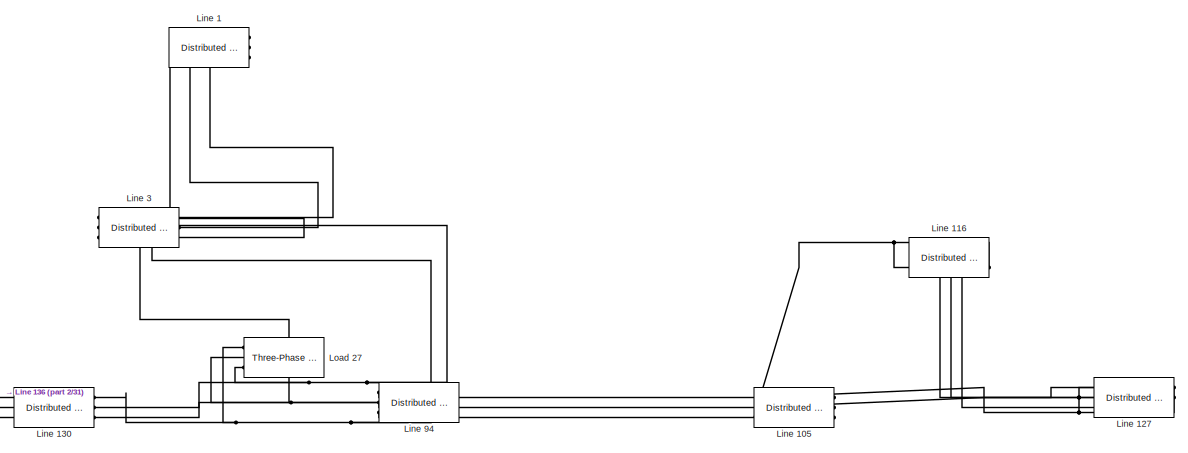
[diagram: root canvas - part 1/31, top right region]
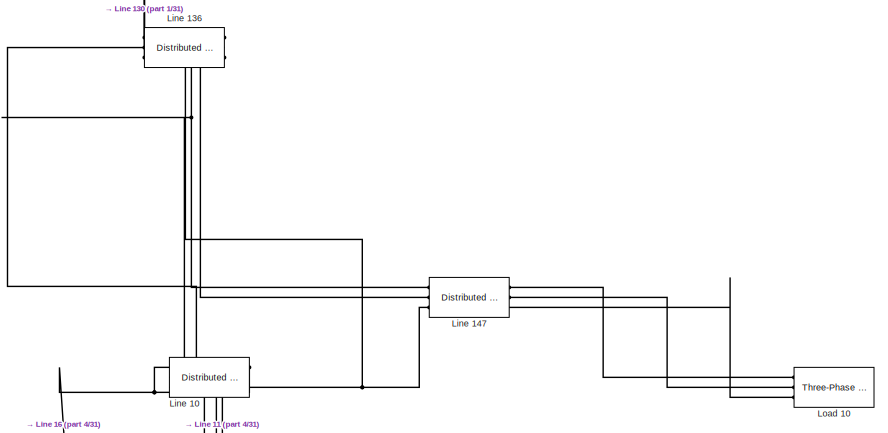
[diagram: root canvas - part 2/31, top right region]
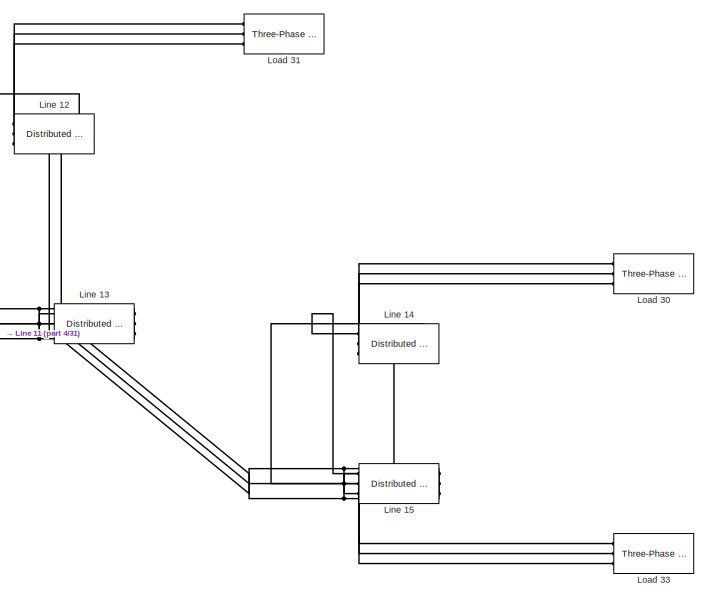
[diagram: root canvas - part 3/31, top right region]
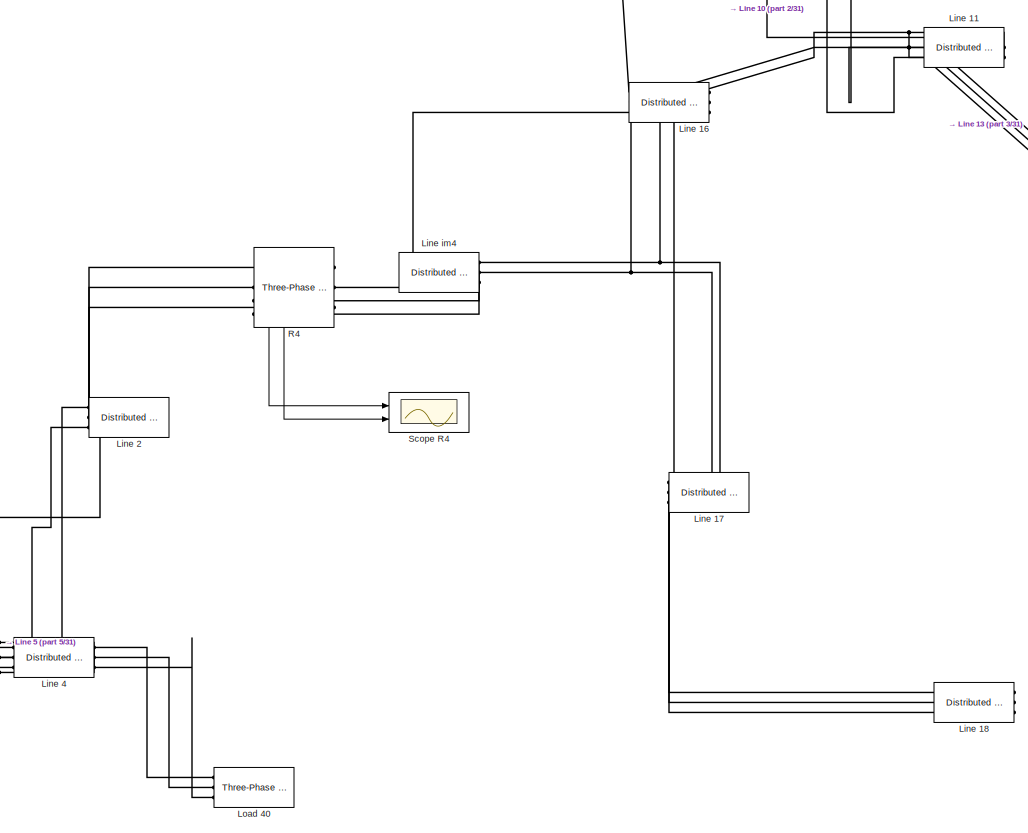
[diagram: root canvas - part 4/31, top right region]
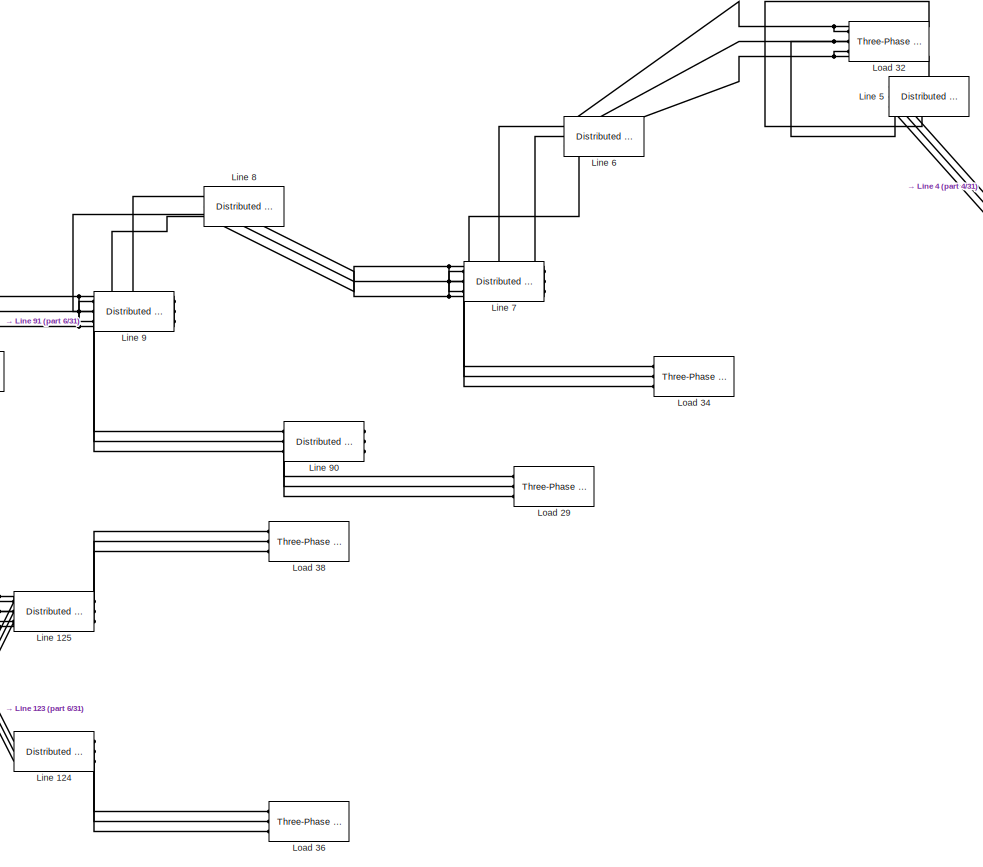
[diagram: root canvas - part 5/31, top center region]
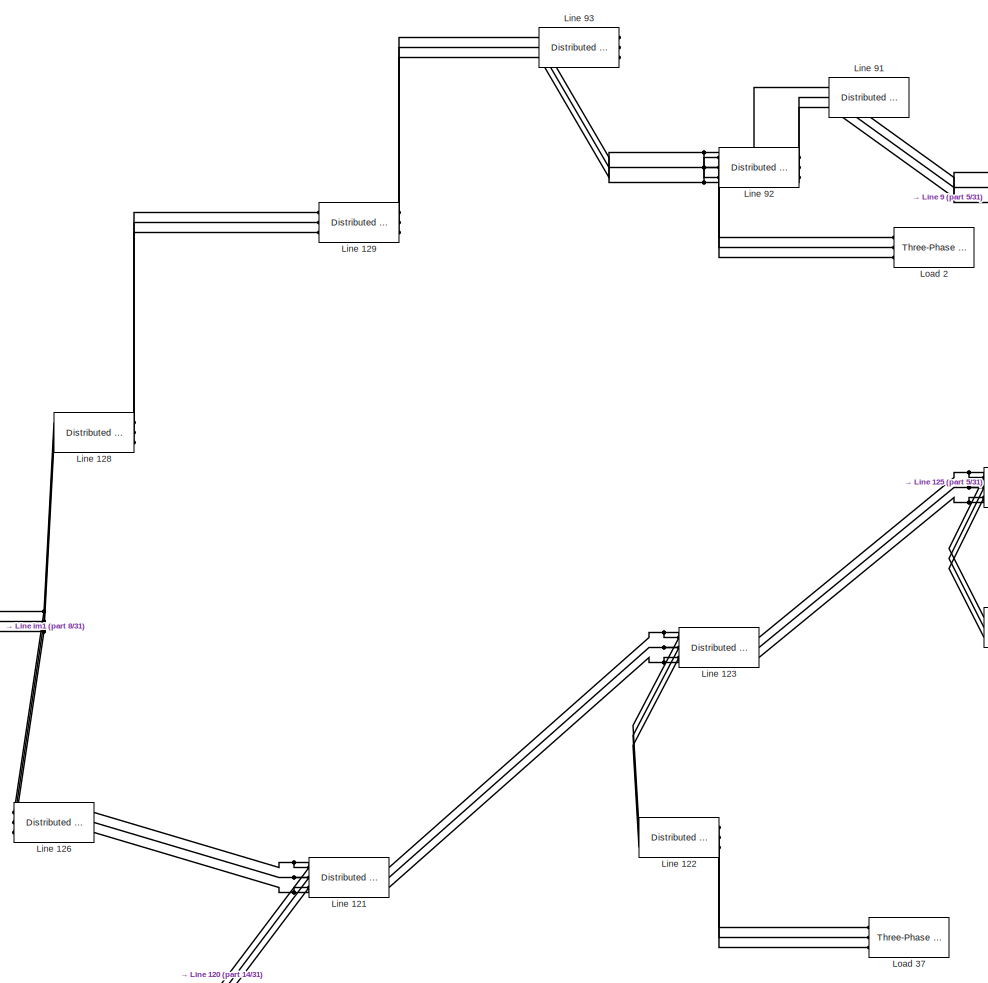
[diagram: root canvas - part 6/31, top center region]
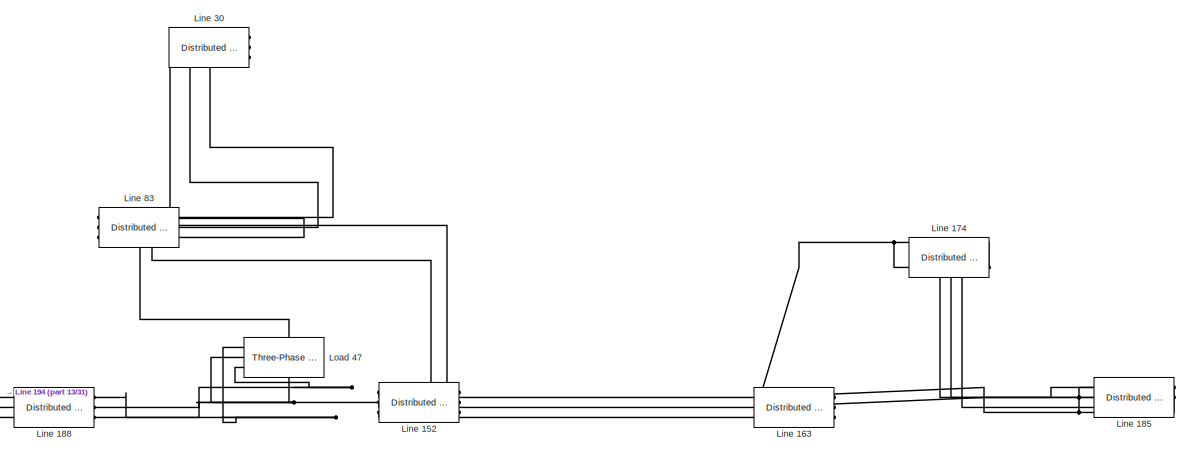
[diagram: root canvas - part 7/31, middle right region]
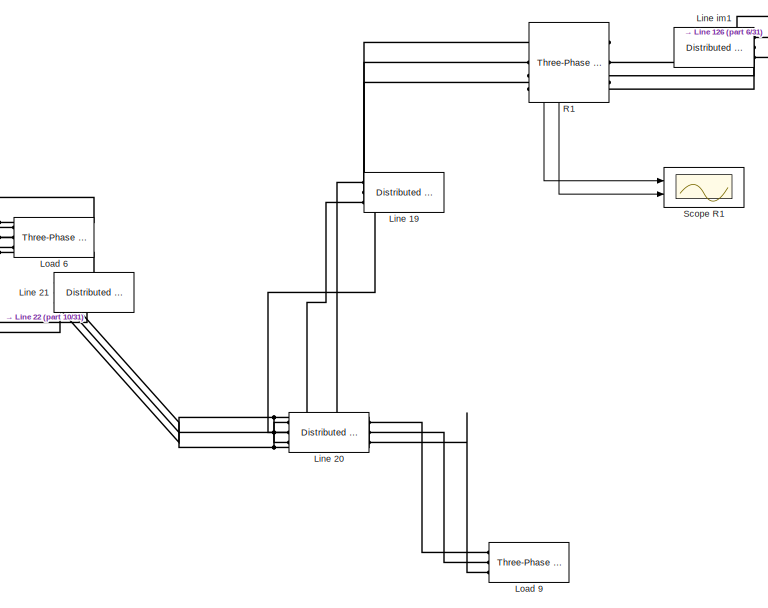
[diagram: root canvas - part 8/31, central region]
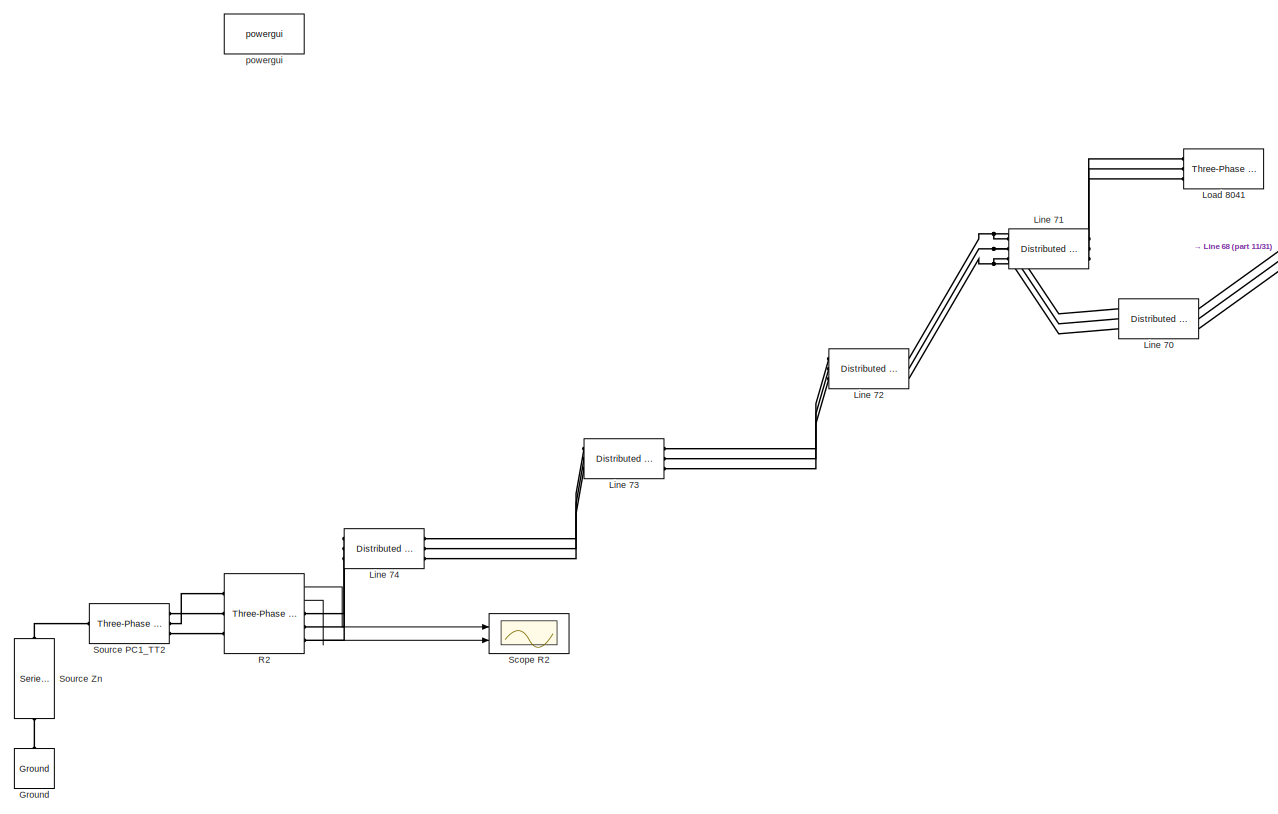
[diagram: root canvas - part 9/31, middle left region]
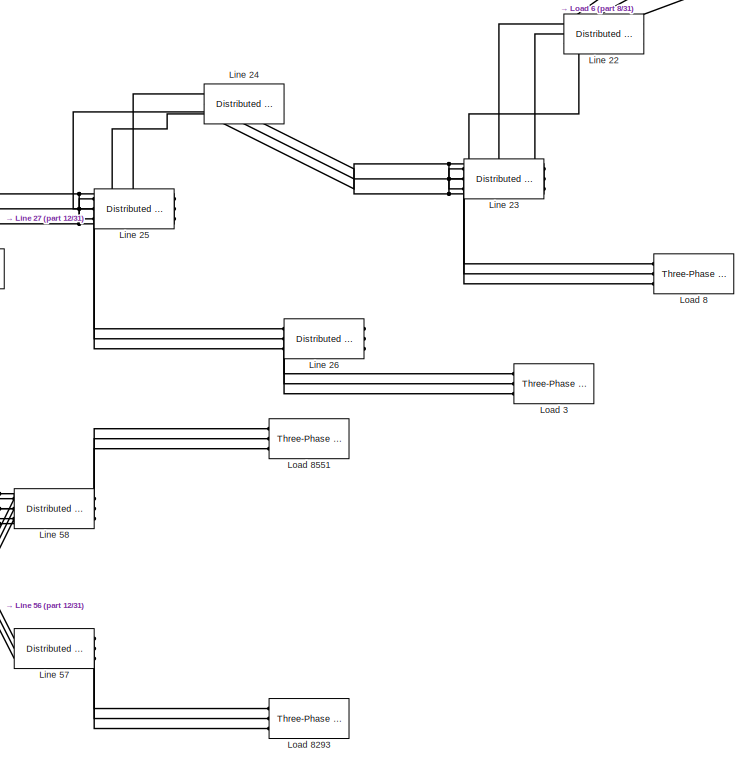
[diagram: root canvas - part 10/31, central region]
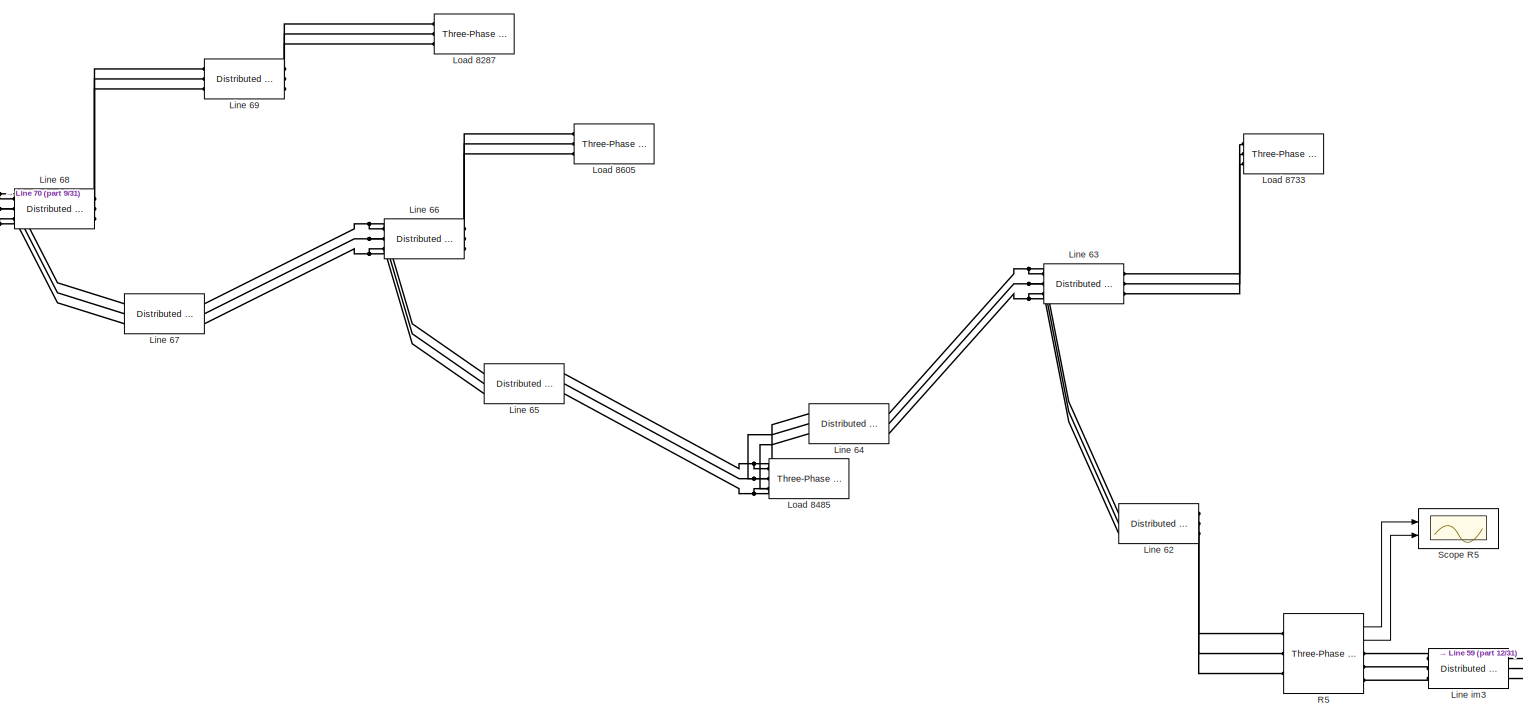
[diagram: root canvas - part 11/31, middle left region]
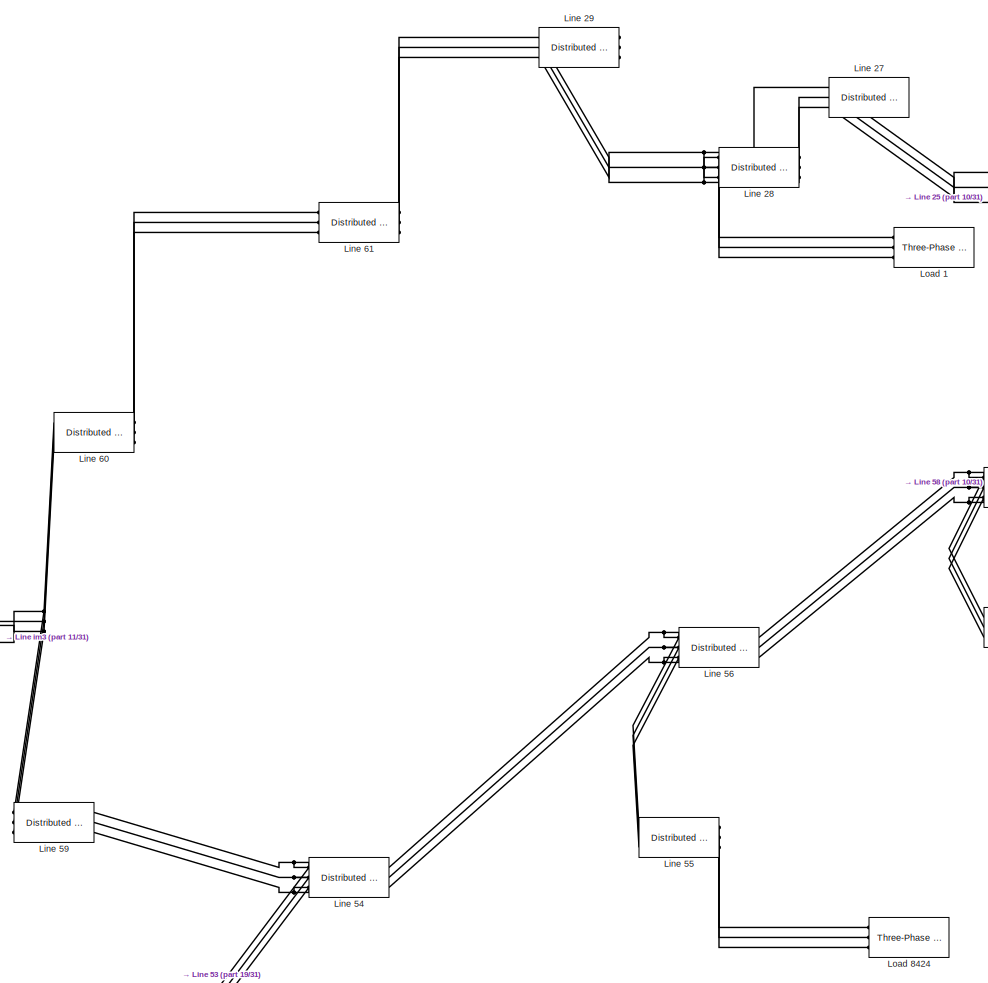
[diagram: root canvas - part 12/31, middle left region]
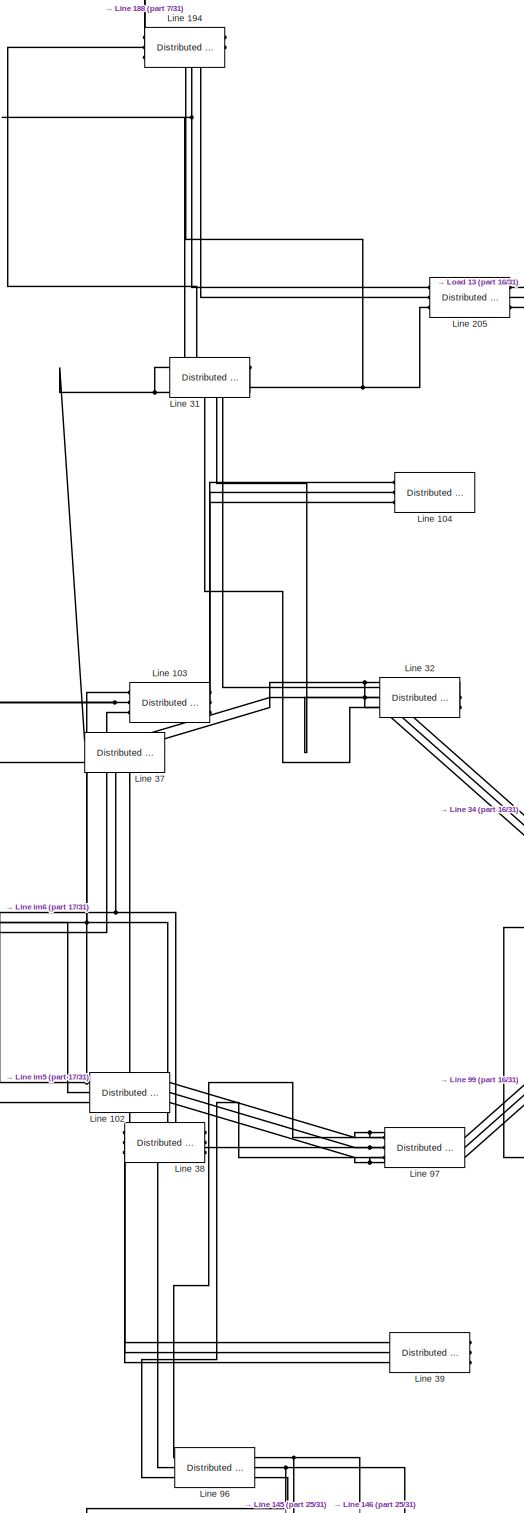
[diagram: root canvas - part 13/31, middle right region]
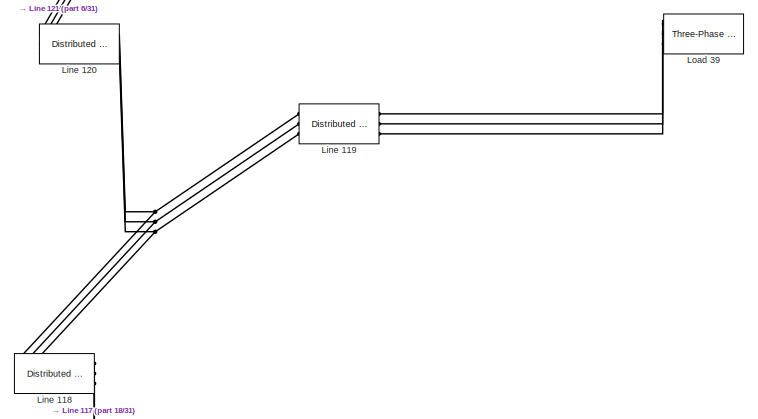
[diagram: root canvas - part 14/31, central region]
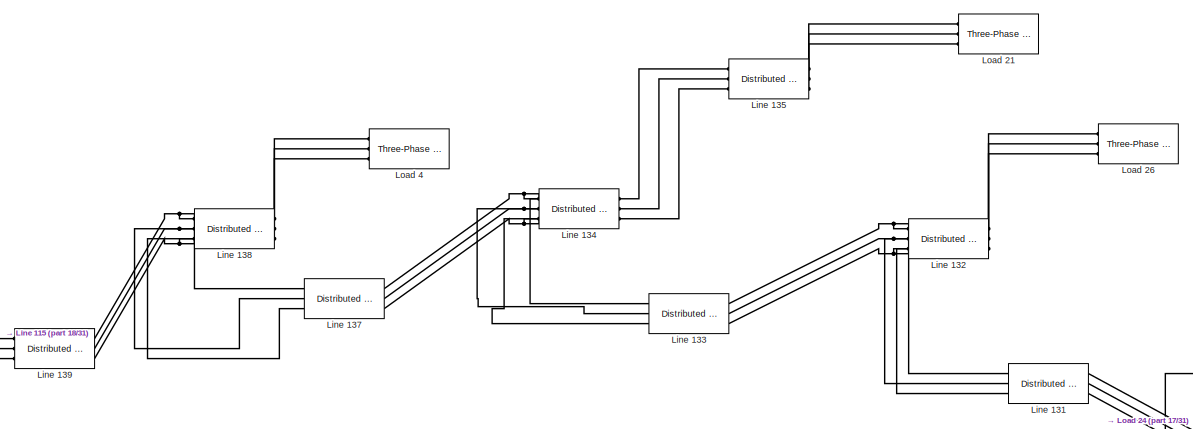
[diagram: root canvas - part 15/31, middle right region]
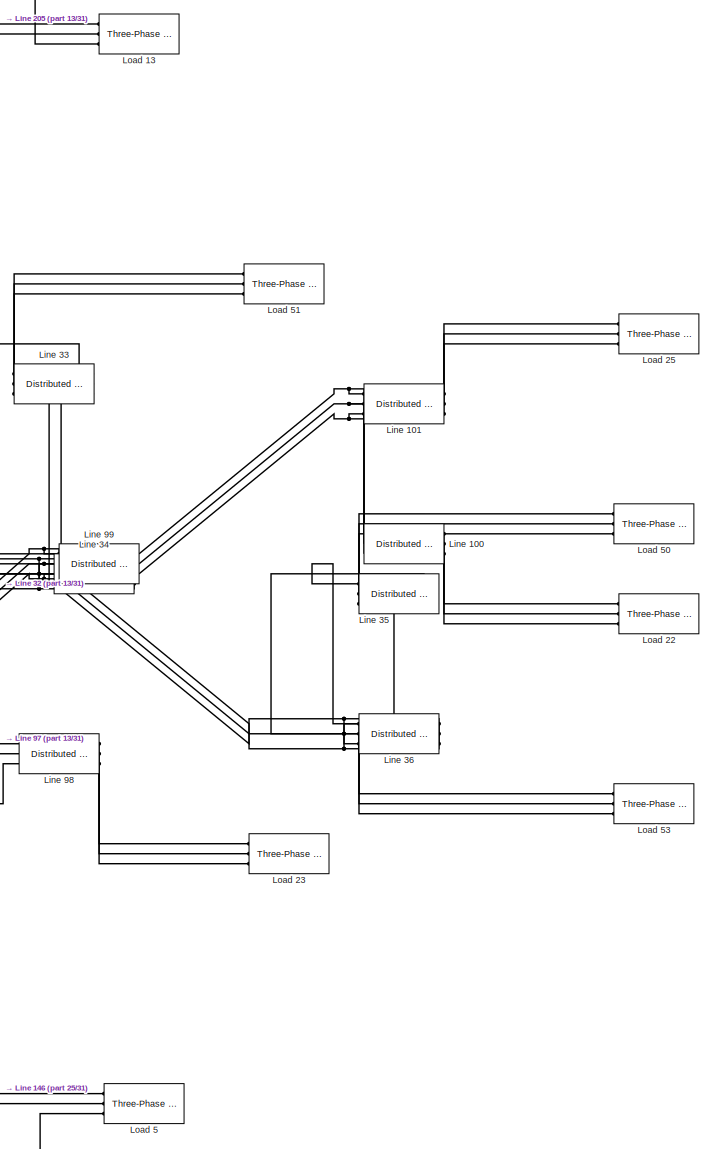
[diagram: root canvas - part 16/31, middle right region]
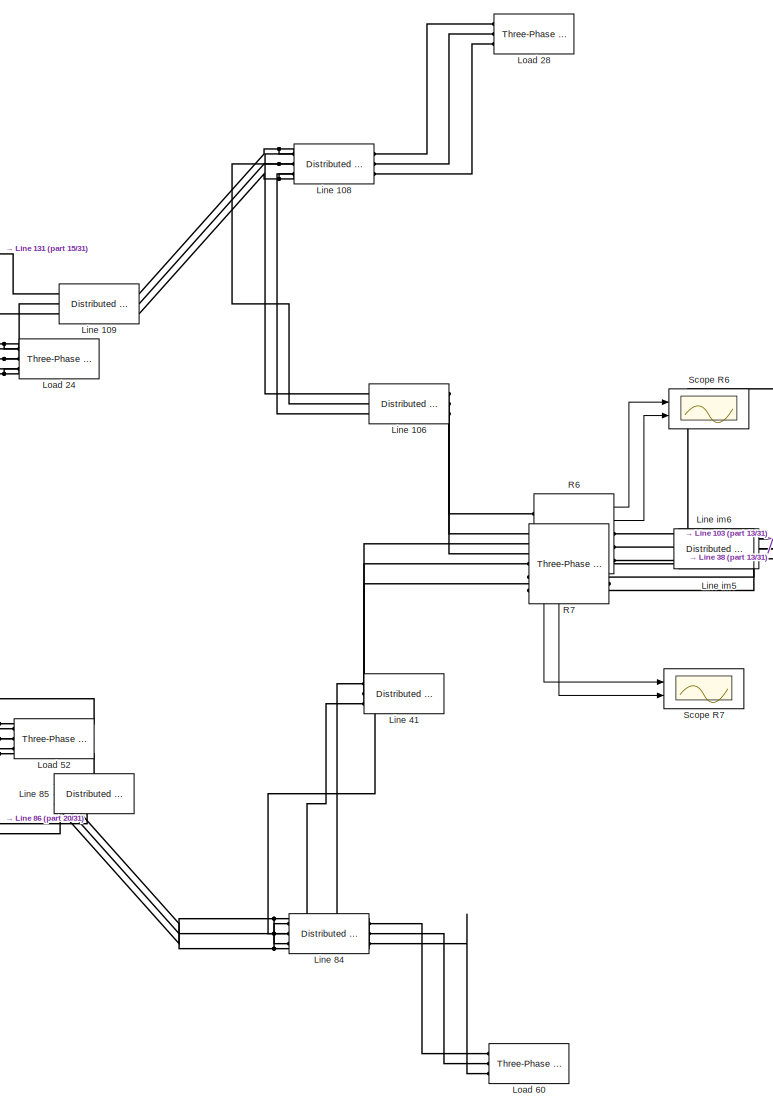
[diagram: root canvas - part 17/31, middle right region]
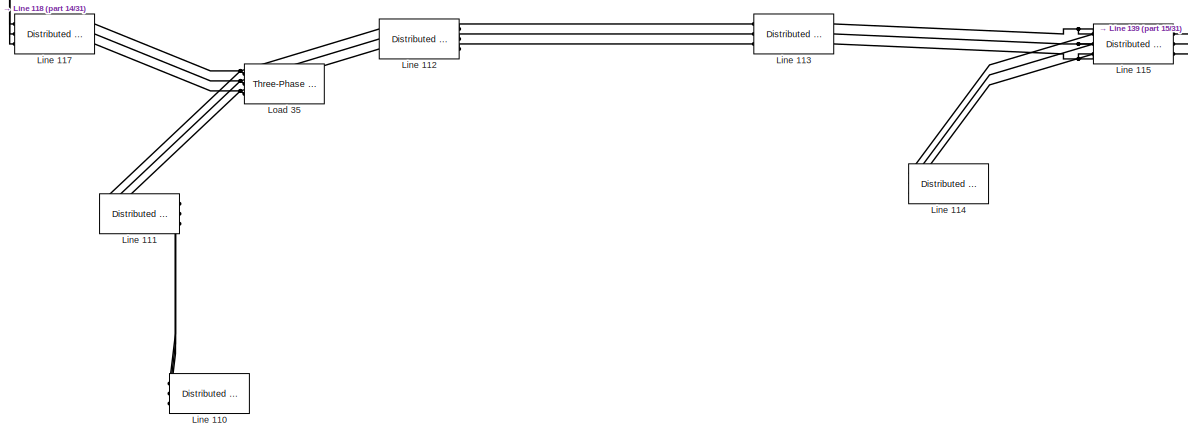
[diagram: root canvas - part 18/31, central region]
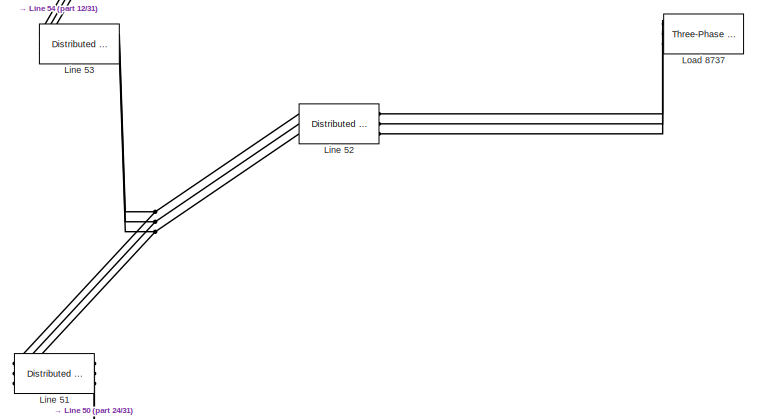
[diagram: root canvas - part 19/31, middle left region]
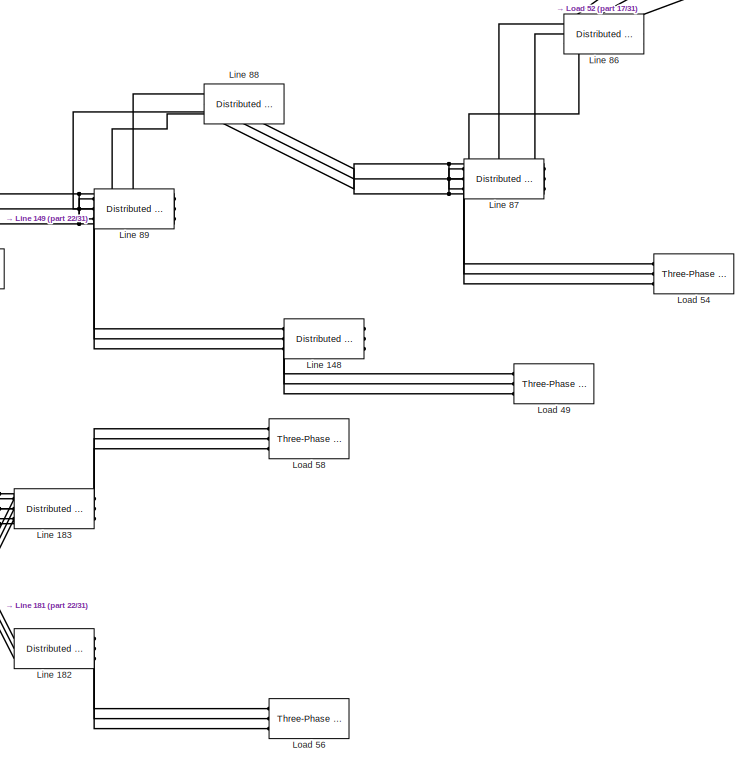
[diagram: root canvas - part 20/31, middle right region]
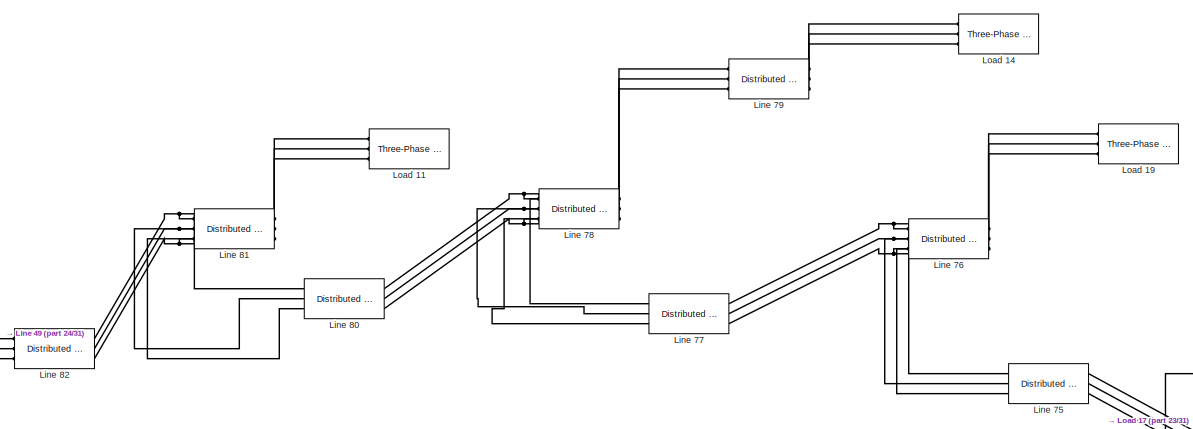
[diagram: root canvas - part 21/31, central region]
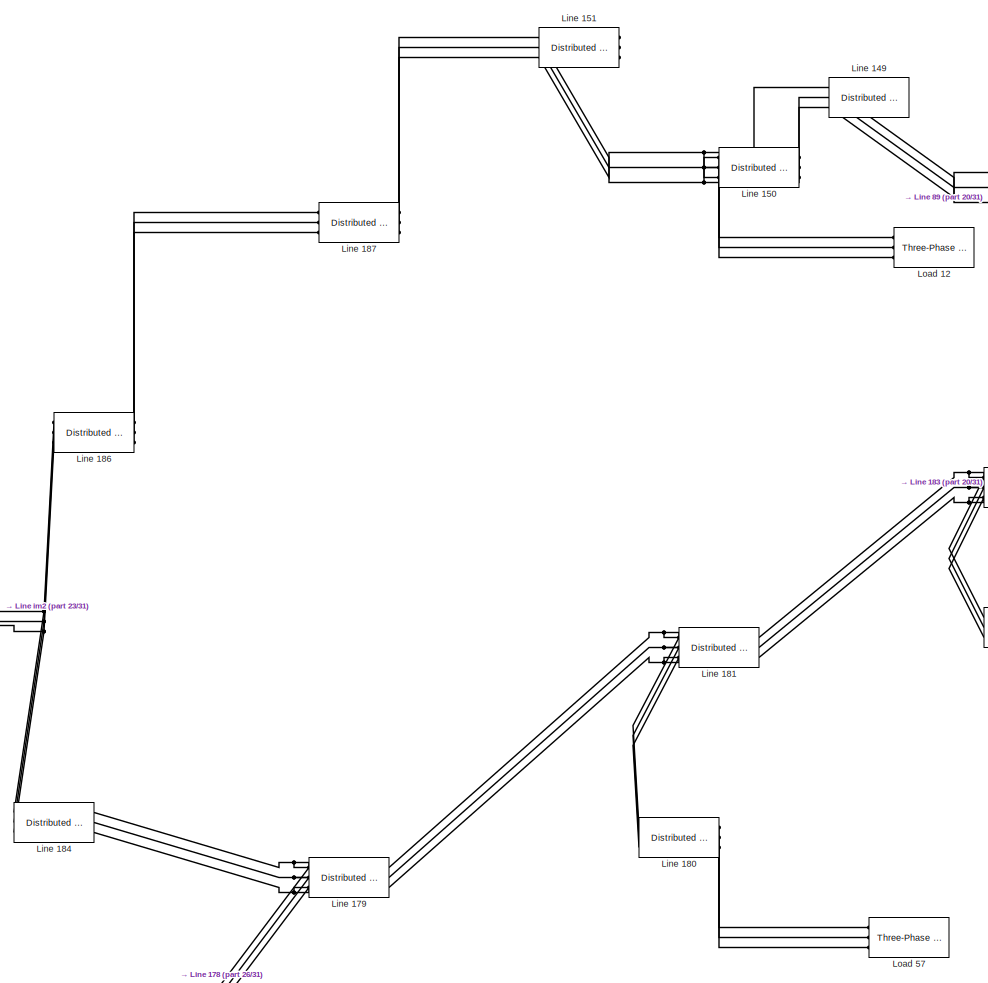
[diagram: root canvas - part 22/31, central region]
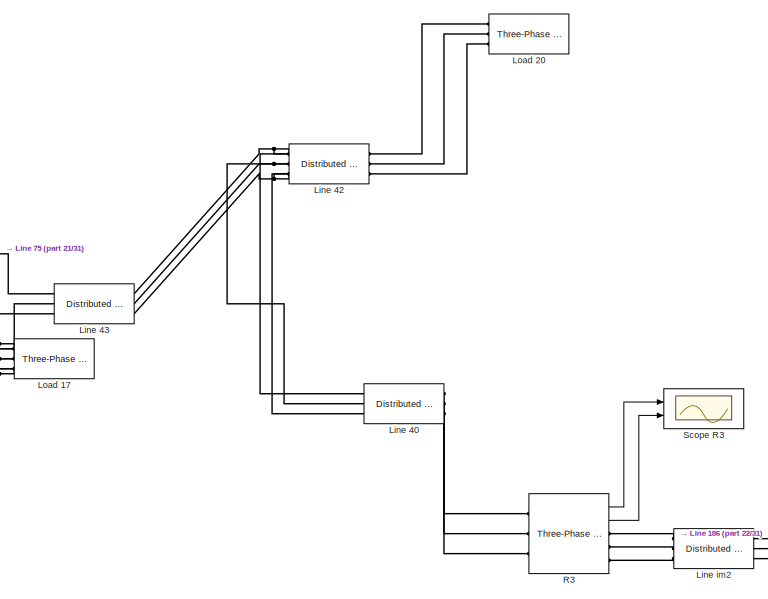
[diagram: root canvas - part 23/31, central region]
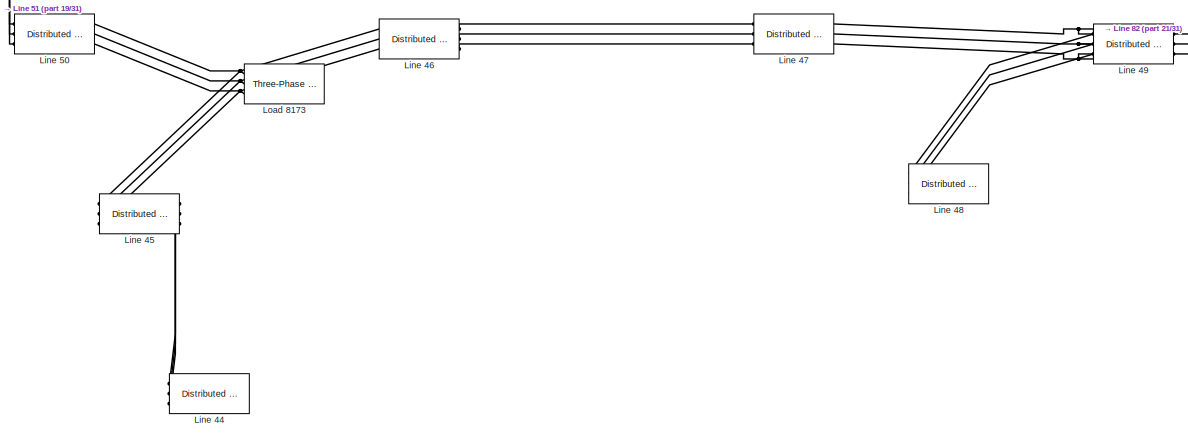
[diagram: root canvas - part 24/31, middle left region]
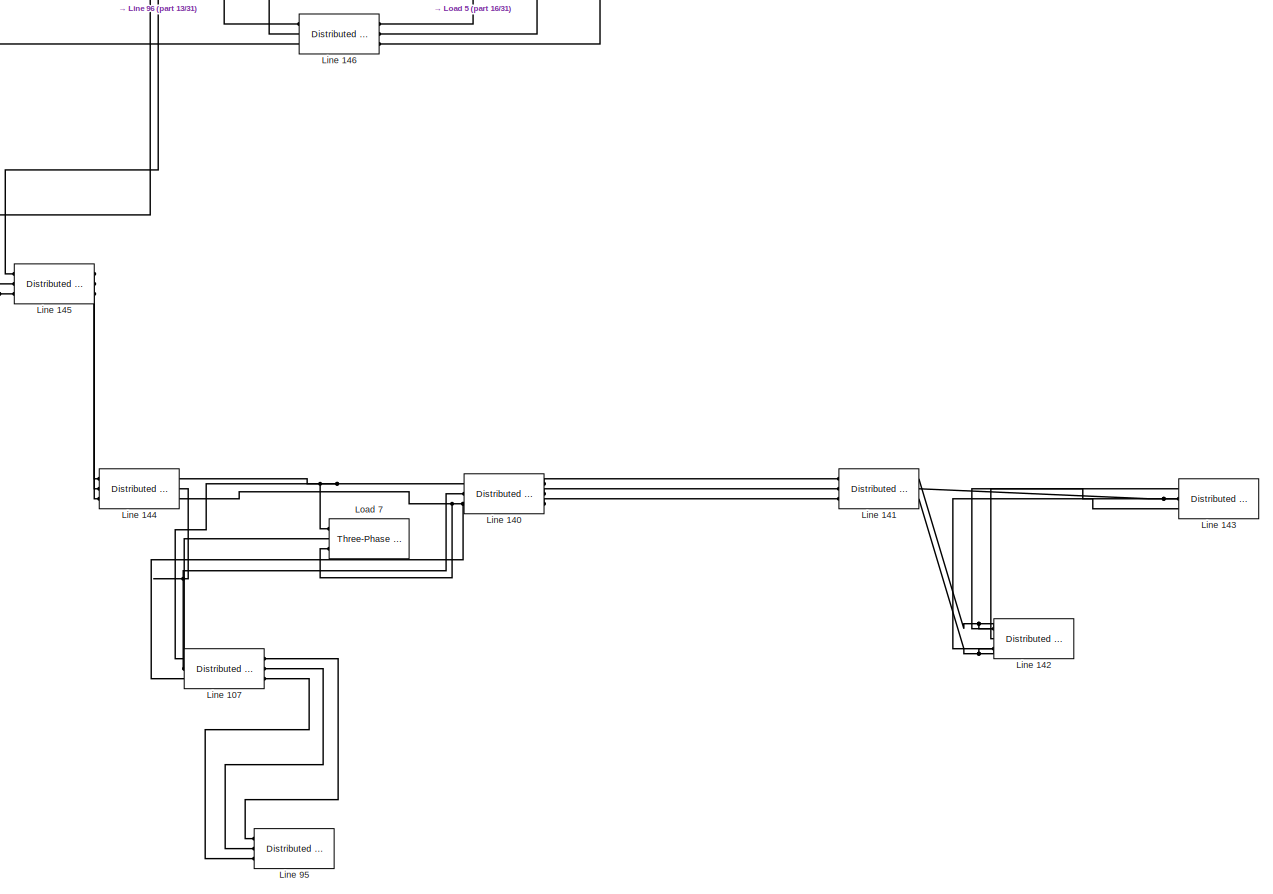
[diagram: root canvas - part 25/31, middle right region]
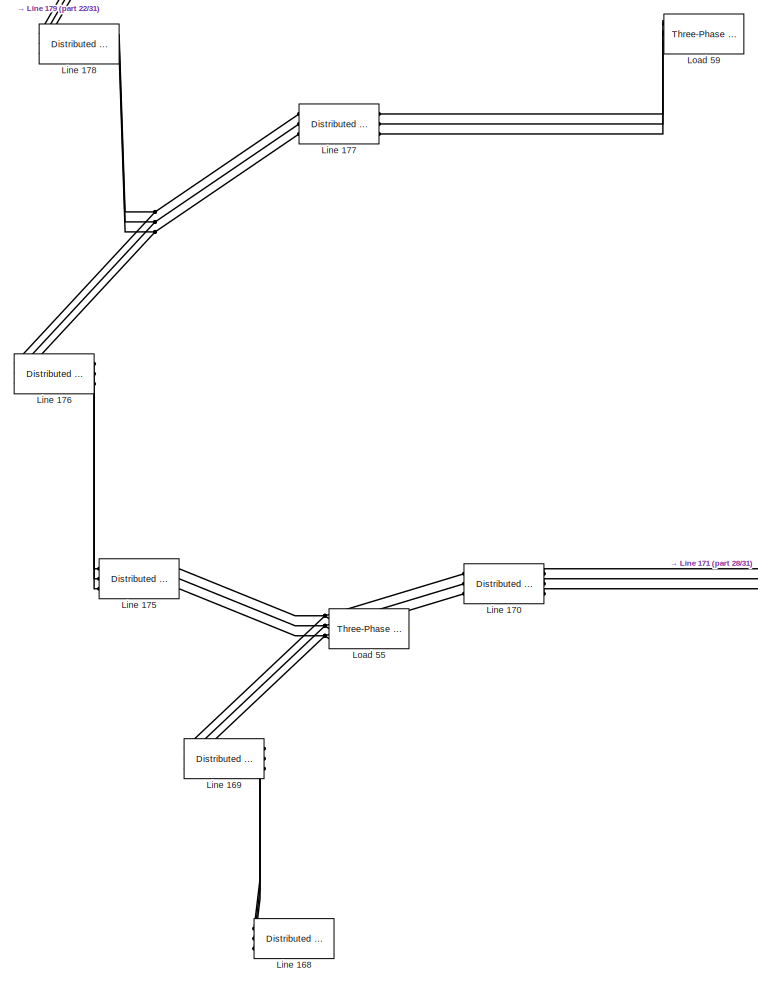
[diagram: root canvas - part 26/31, bottom center region]
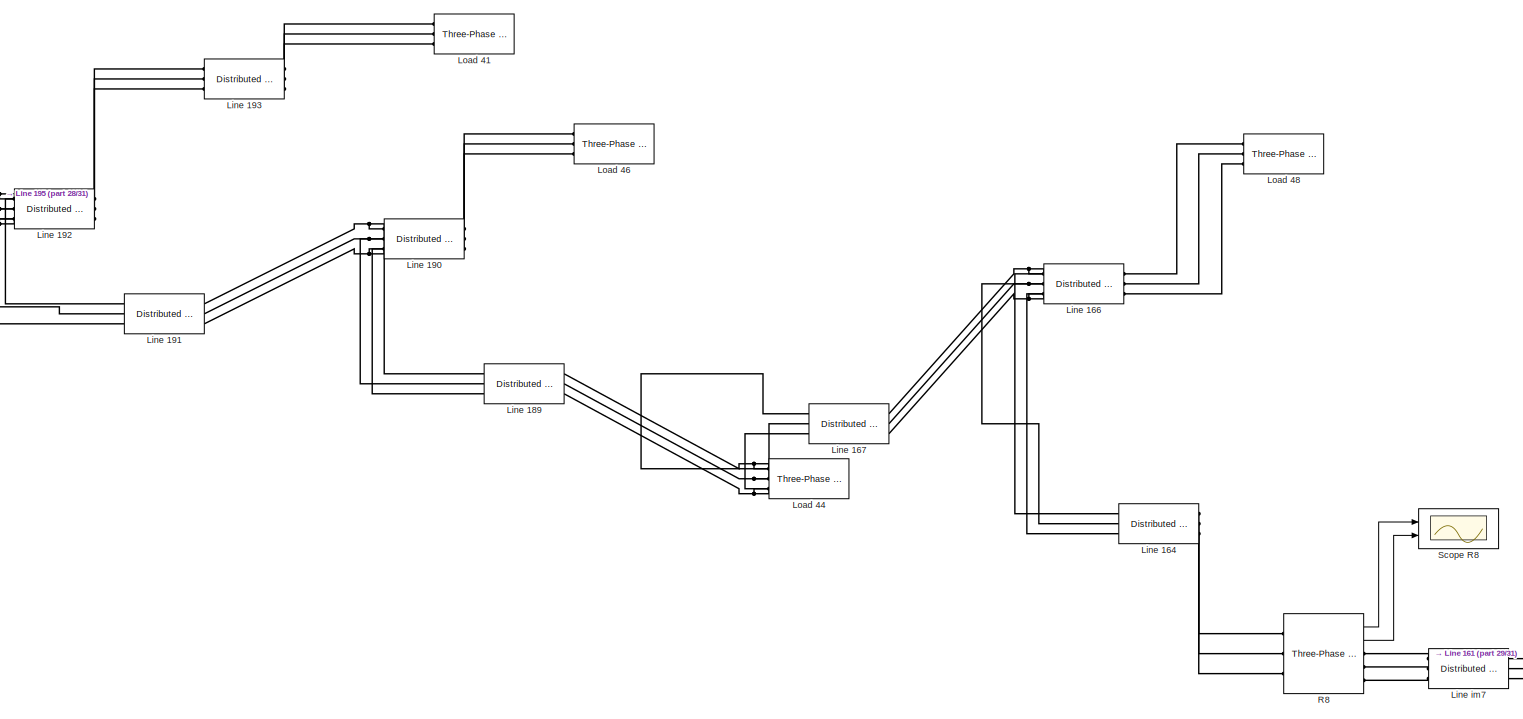
[diagram: root canvas - part 27/31, bottom right region]
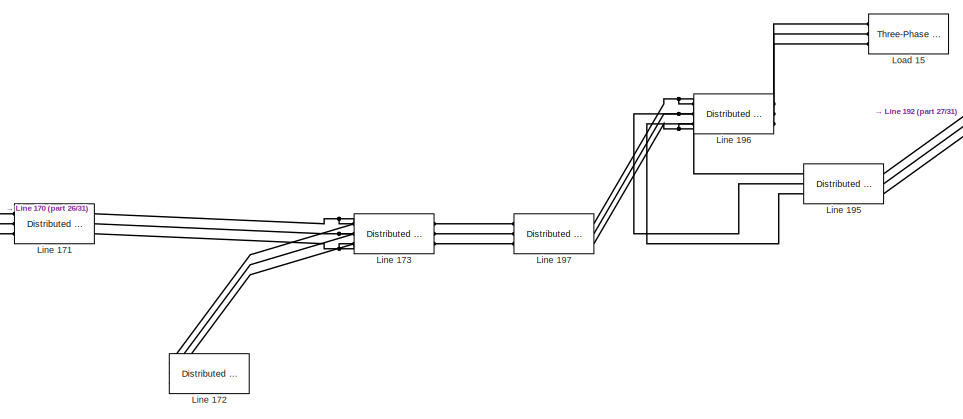
[diagram: root canvas - part 28/31, bottom right region]
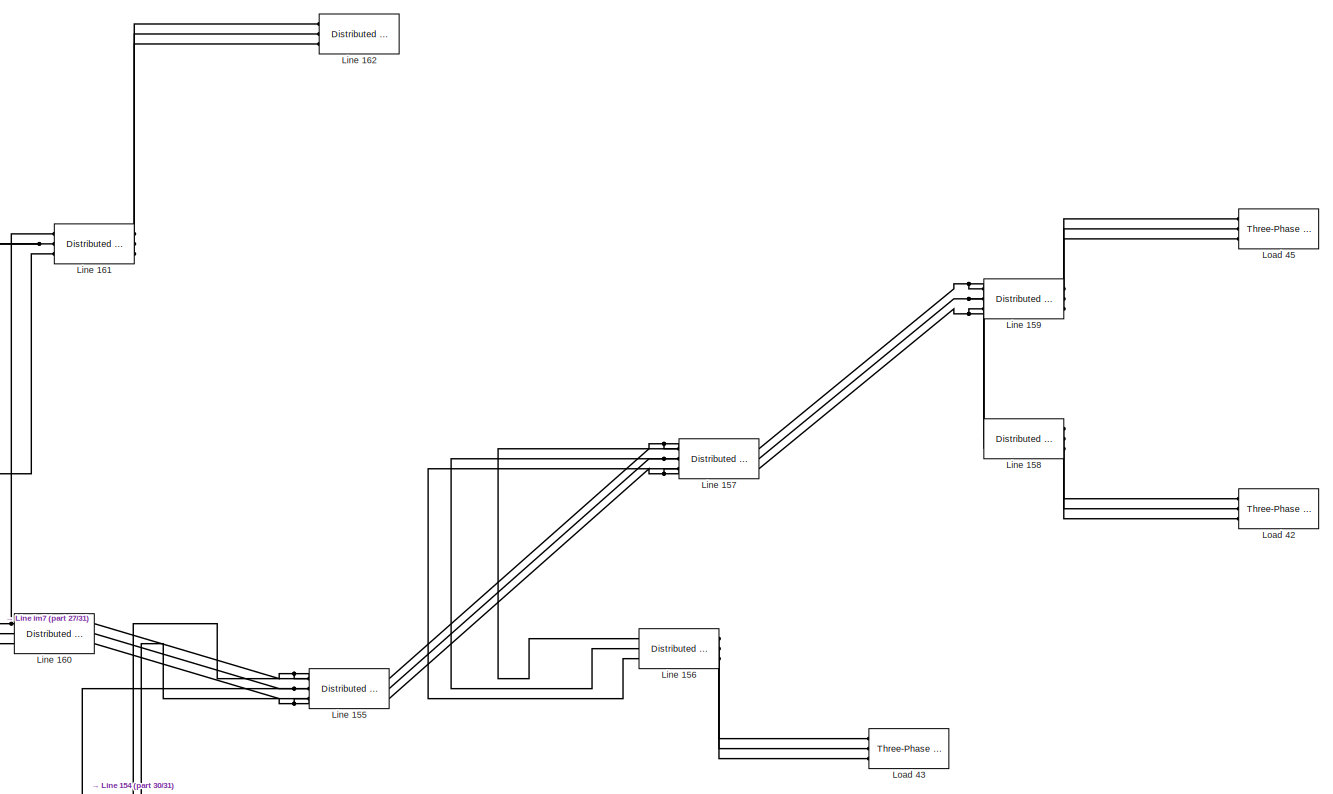
[diagram: root canvas - part 29/31, bottom right region]
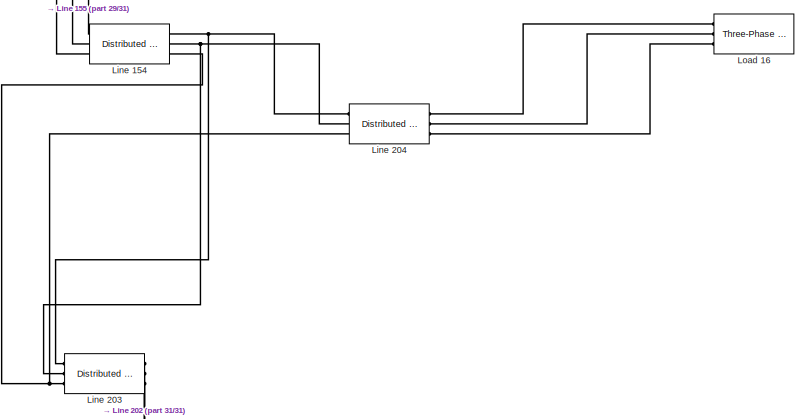
[diagram: root canvas - part 30/31, bottom right region]
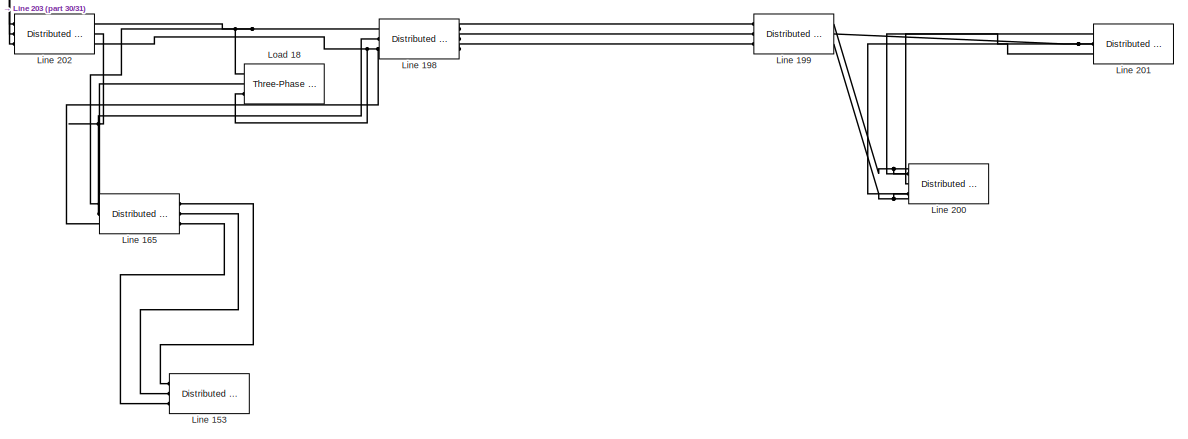
[diagram: root canvas - part 31/31, bottom right region]
MODEL slx_b257b158d5f1
KIND model
CONFIG AbsTol = auto
CONFIG EnableMultiTasking = off
CONFIG FixedStep = 0.2
CONFIG MaxStep = auto
CONFIG MinStep = auto
CONFIG RelTol = 1e-3
CONFIG SampleTimeConstraint = Unconstrained
CONFIG SolverName = FixedStepAuto
CONFIG StartTime = 0
CONFIG StopTime = 0.2
BLOCK [Reference] Ground  REF=spsGroundLib/Ground
  NameLocation = right
  Ports = [0, 0, 0, 0, 0, 1]
  SourceBlock = spsGroundLib/Ground
  SourceProductBaseCode = PS
  SourceType = Ground
BLOCK [Reference] Line 1  REF=spsDistributedParametersLineLib/Distributed Parameters Line
  NameLocation = top
  Ports = [0, 0, 0, 0, 0, 3, 3]
  SourceBlock = spsDistributedParametersLineLib/Distributed Parameters Line
  SourceProductBaseCode = PS
  SourceType = Distributed Parameters Line
BLOCK [Reference] Line 10  REF=spsDistributedParametersLineLib/Distributed Parameters Line
  NameLocation = top
  Ports = [0, 0, 0, 0, 0, 3, 3]
  SourceBlock = spsDistributedParametersLineLib/Distributed Parameters Line
  SourceProductBaseCode = PS
  SourceType = Distributed Parameters Line
BLOCK [Reference] Line 100  REF=spsDistributedParametersLineLib/Distributed Parameters Line
  Ports = [0, 0, 0, 0, 0, 3, 3]
  SourceBlock = spsDistributedParametersLineLib/Distributed Parameters Line
  SourceProductBaseCode = PS
  SourceType = Distributed Parameters Line
BLOCK [Reference] Line 101  REF=spsDistributedParametersLineLib/Distributed Parameters Line
  Ports = [0, 0, 0, 0, 0, 3, 3]
  SourceBlock = spsDistributedParametersLineLib/Distributed Parameters Line
  SourceProductBaseCode = PS
  SourceType = Distributed Parameters Line
BLOCK [Reference] Line 102  REF=spsDistributedParametersLineLib/Distributed Parameters Line
  Ports = [0, 0, 0, 0, 0, 3, 3]
  SourceBlock = spsDistributedParametersLineLib/Distributed Parameters Line
  SourceProductBaseCode = PS
  SourceType = Distributed Parameters Line
BLOCK [Reference] Line 103  REF=spsDistributedParametersLineLib/Distributed Parameters Line
  Ports = [0, 0, 0, 0, 0, 3, 3]
  SourceBlock = spsDistributedParametersLineLib/Distributed Parameters Line
  SourceProductBaseCode = PS
  SourceType = Distributed Parameters Line
BLOCK [Reference] Line 104  REF=spsDistributedParametersLineLib/Distributed Parameters Line
  Ports = [0, 0, 0, 0, 0, 3, 3]
  SourceBlock = spsDistributedParametersLineLib/Distributed Parameters Line
  SourceProductBaseCode = PS
  SourceType = Distributed Parameters Line
BLOCK [Reference] Line 105  REF=spsDistributedParametersLineLib/Distributed Parameters Line
  NameLocation = top
  Ports = [0, 0, 0, 0, 0, 3, 3]
  SourceBlock = spsDistributedParametersLineLib/Distributed Parameters Line
  SourceProductBaseCode = PS
  SourceType = Distributed Parameters Line
BLOCK [Reference] Line 106  REF=spsDistributedParametersLineLib/Distributed Parameters Line
  Ports = [0, 0, 0, 0, 0, 3, 3]
  SourceBlock = spsDistributedParametersLineLib/Distributed Parameters Line
  SourceProductBaseCode = PS
  SourceType = Distributed Parameters Line
BLOCK [Reference] Line 107  REF=spsDistributedParametersLineLib/Distributed Parameters Line
  Ports = [0, 0, 0, 0, 0, 3, 3]
  SourceBlock = spsDistributedParametersLineLib/Distributed Parameters Line
  SourceProductBaseCode = PS
  SourceType = Distributed Parameters Line
BLOCK [Reference] Line 108  REF=spsDistributedParametersLineLib/Distributed Parameters Line
  Ports = [0, 0, 0, 0, 0, 3, 3]
  SourceBlock = spsDistributedParametersLineLib/Distributed Parameters Line
  SourceProductBaseCode = PS
  SourceType = Distributed Parameters Line
BLOCK [Reference] Line 109  REF=spsDistributedParametersLineLib/Distributed Parameters Line
  Ports = [0, 0, 0, 0, 0, 3, 3]
  SourceBlock = spsDistributedParametersLineLib/Distributed Parameters Line
  SourceProductBaseCode = PS
  SourceType = Distributed Parameters Line
BLOCK [Reference] Line 11  REF=spsDistributedParametersLineLib/Distributed Parameters Line
  NameLocation = top
  Ports = [0, 0, 0, 0, 0, 3, 3]
  SourceBlock = spsDistributedParametersLineLib/Distributed Parameters Line
  SourceProductBaseCode = PS
  SourceType = Distributed Parameters Line
BLOCK [Reference] Line 110  REF=spsDistributedParametersLineLib/Distributed Parameters Line
  Ports = [0, 0, 0, 0, 0, 3, 3]
  SourceBlock = spsDistributedParametersLineLib/Distributed Parameters Line
  SourceProductBaseCode = PS
  SourceType = Distributed Parameters Line
BLOCK [Reference] Line 111  REF=spsDistributedParametersLineLib/Distributed Parameters Line
  Ports = [0, 0, 0, 0, 0, 3, 3]
  SourceBlock = spsDistributedParametersLineLib/Distributed Parameters Line
  SourceProductBaseCode = PS
  SourceType = Distributed Parameters Line
BLOCK [Reference] Line 112  REF=spsDistributedParametersLineLib/Distributed Parameters Line
  Ports = [0, 0, 0, 0, 0, 3, 3]
  SourceBlock = spsDistributedParametersLineLib/Distributed Parameters Line
  SourceProductBaseCode = PS
  SourceType = Distributed Parameters Line
BLOCK [Reference] Line 113  REF=spsDistributedParametersLineLib/Distributed Parameters Line
  Ports = [0, 0, 0, 0, 0, 3, 3]
  SourceBlock = spsDistributedParametersLineLib/Distributed Parameters Line
  SourceProductBaseCode = PS
  SourceType = Distributed Parameters Line
BLOCK [Reference] Line 114  REF=spsDistributedParametersLineLib/Distributed Parameters Line
  Ports = [0, 0, 0, 0, 0, 3, 3]
  SourceBlock = spsDistributedParametersLineLib/Distributed Parameters Line
  SourceProductBaseCode = PS
  SourceType = Distributed Parameters Line
BLOCK [Reference] Line 115  REF=spsDistributedParametersLineLib/Distributed Parameters Line
  Ports = [0, 0, 0, 0, 0, 3, 3]
  SourceBlock = spsDistributedParametersLineLib/Distributed Parameters Line
  SourceProductBaseCode = PS
  SourceType = Distributed Parameters Line
BLOCK [Reference] Line 116  REF=spsDistributedParametersLineLib/Distributed Parameters Line
  NameLocation = top
  Ports = [0, 0, 0, 0, 0, 3, 3]
  SourceBlock = spsDistributedParametersLineLib/Distributed Parameters Line
  SourceProductBaseCode = PS
  SourceType = Distributed Parameters Line
BLOCK [Reference] Line 117  REF=spsDistributedParametersLineLib/Distributed Parameters Line
  Ports = [0, 0, 0, 0, 0, 3, 3]
  SourceBlock = spsDistributedParametersLineLib/Distributed Parameters Line
  SourceProductBaseCode = PS
  SourceType = Distributed Parameters Line
BLOCK [Reference] Line 118  REF=spsDistributedParametersLineLib/Distributed Parameters Line
  Ports = [0, 0, 0, 0, 0, 3, 3]
  SourceBlock = spsDistributedParametersLineLib/Distributed Parameters Line
  SourceProductBaseCode = PS
  SourceType = Distributed Parameters Line
BLOCK [Reference] Line 119  REF=spsDistributedParametersLineLib/Distributed Parameters Line
  Ports = [0, 0, 0, 0, 0, 3, 3]
  SourceBlock = spsDistributedParametersLineLib/Distributed Parameters Line
  SourceProductBaseCode = PS
  SourceType = Distributed Parameters Line
BLOCK [Reference] Line 12  REF=spsDistributedParametersLineLib/Distributed Parameters Line
  NameLocation = top
  Ports = [0, 0, 0, 0, 0, 3, 3]
  SourceBlock = spsDistributedParametersLineLib/Distributed Parameters Line
  SourceProductBaseCode = PS
  SourceType = Distributed Parameters Line
BLOCK [Reference] Line 120  REF=spsDistributedParametersLineLib/Distributed Parameters Line
  Ports = [0, 0, 0, 0, 0, 3, 3]
  SourceBlock = spsDistributedParametersLineLib/Distributed Parameters Line
  SourceProductBaseCode = PS
  SourceType = Distributed Parameters Line
BLOCK [Reference] Line 121  REF=spsDistributedParametersLineLib/Distributed Parameters Line
  Ports = [0, 0, 0, 0, 0, 3, 3]
  SourceBlock = spsDistributedParametersLineLib/Distributed Parameters Line
  SourceProductBaseCode = PS
  SourceType = Distributed Parameters Line
BLOCK [Reference] Line 122  REF=spsDistributedParametersLineLib/Distributed Parameters Line
  Ports = [0, 0, 0, 0, 0, 3, 3]
  SourceBlock = spsDistributedParametersLineLib/Distributed Parameters Line
  SourceProductBaseCode = PS
  SourceType = Distributed Parameters Line
BLOCK [Reference] Line 123  REF=spsDistributedParametersLineLib/Distributed Parameters Line
  Ports = [0, 0, 0, 0, 0, 3, 3]
  SourceBlock = spsDistributedParametersLineLib/Distributed Parameters Line
  SourceProductBaseCode = PS
  SourceType = Distributed Parameters Line
BLOCK [Reference] Line 124  REF=spsDistributedParametersLineLib/Distributed Parameters Line
  Ports = [0, 0, 0, 0, 0, 3, 3]
  SourceBlock = spsDistributedParametersLineLib/Distributed Parameters Line
  SourceProductBaseCode = PS
  SourceType = Distributed Parameters Line
BLOCK [Reference] Line 125  REF=spsDistributedParametersLineLib/Distributed Parameters Line
  Ports = [0, 0, 0, 0, 0, 3, 3]
  SourceBlock = spsDistributedParametersLineLib/Distributed Parameters Line
  SourceProductBaseCode = PS
  SourceType = Distributed Parameters Line
BLOCK [Reference] Line 126  REF=spsDistributedParametersLineLib/Distributed Parameters Line
  Ports = [0, 0, 0, 0, 0, 3, 3]
  SourceBlock = spsDistributedParametersLineLib/Distributed Parameters Line
  SourceProductBaseCode = PS
  SourceType = Distributed Parameters Line
BLOCK [Reference] Line 127  REF=spsDistributedParametersLineLib/Distributed Parameters Line
  NameLocation = top
  Ports = [0, 0, 0, 0, 0, 3, 3]
  SourceBlock = spsDistributedParametersLineLib/Distributed Parameters Line
  SourceProductBaseCode = PS
  SourceType = Distributed Parameters Line
BLOCK [Reference] Line 128  REF=spsDistributedParametersLineLib/Distributed Parameters Line
  Ports = [0, 0, 0, 0, 0, 3, 3]
  SourceBlock = spsDistributedParametersLineLib/Distributed Parameters Line
  SourceProductBaseCode = PS
  SourceType = Distributed Parameters Line
BLOCK [Reference] Line 129  REF=spsDistributedParametersLineLib/Distributed Parameters Line
  Ports = [0, 0, 0, 0, 0, 3, 3]
  SourceBlock = spsDistributedParametersLineLib/Distributed Parameters Line
  SourceProductBaseCode = PS
  SourceType = Distributed Parameters Line
BLOCK [Reference] Line 13  REF=spsDistributedParametersLineLib/Distributed Parameters Line
  NameLocation = top
  Ports = [0, 0, 0, 0, 0, 3, 3]
  SourceBlock = spsDistributedParametersLineLib/Distributed Parameters Line
  SourceProductBaseCode = PS
  SourceType = Distributed Parameters Line
BLOCK [Reference] Line 130  REF=spsDistributedParametersLineLib/Distributed Parameters Line
  NameLocation = top
  Ports = [0, 0, 0, 0, 0, 3, 3]
  SourceBlock = spsDistributedParametersLineLib/Distributed Parameters Line
  SourceProductBaseCode = PS
  SourceType = Distributed Parameters Line
BLOCK [Reference] Line 131  REF=spsDistributedParametersLineLib/Distributed Parameters Line
  Ports = [0, 0, 0, 0, 0, 3, 3]
  SourceBlock = spsDistributedParametersLineLib/Distributed Parameters Line
  SourceProductBaseCode = PS
  SourceType = Distributed Parameters Line
BLOCK [Reference] Line 132  REF=spsDistributedParametersLineLib/Distributed Parameters Line
  Ports = [0, 0, 0, 0, 0, 3, 3]
  SourceBlock = spsDistributedParametersLineLib/Distributed Parameters Line
  SourceProductBaseCode = PS
  SourceType = Distributed Parameters Line
BLOCK [Reference] Line 133  REF=spsDistributedParametersLineLib/Distributed Parameters Line
  Ports = [0, 0, 0, 0, 0, 3, 3]
  SourceBlock = spsDistributedParametersLineLib/Distributed Parameters Line
  SourceProductBaseCode = PS
  SourceType = Distributed Parameters Line
BLOCK [Reference] Line 134  REF=spsDistributedParametersLineLib/Distributed Parameters Line
  Ports = [0, 0, 0, 0, 0, 3, 3]
  SourceBlock = spsDistributedParametersLineLib/Distributed Parameters Line
  SourceProductBaseCode = PS
  SourceType = Distributed Parameters Line
BLOCK [Reference] Line 135  REF=spsDistributedParametersLineLib/Distributed Parameters Line
  Ports = [0, 0, 0, 0, 0, 3, 3]
  SourceBlock = spsDistributedParametersLineLib/Distributed Parameters Line
  SourceProductBaseCode = PS
  SourceType = Distributed Parameters Line
BLOCK [Reference] Line 136  REF=spsDistributedParametersLineLib/Distributed Parameters Line
  NameLocation = top
  Ports = [0, 0, 0, 0, 0, 3, 3]
  SourceBlock = spsDistributedParametersLineLib/Distributed Parameters Line
  SourceProductBaseCode = PS
  SourceType = Distributed Parameters Line
BLOCK [Reference] Line 137  REF=spsDistributedParametersLineLib/Distributed Parameters Line
  Ports = [0, 0, 0, 0, 0, 3, 3]
  SourceBlock = spsDistributedParametersLineLib/Distributed Parameters Line
  SourceProductBaseCode = PS
  SourceType = Distributed Parameters Line
BLOCK [Reference] Line 138  REF=spsDistributedParametersLineLib/Distributed Parameters Line
  Ports = [0, 0, 0, 0, 0, 3, 3]
  SourceBlock = spsDistributedParametersLineLib/Distributed Parameters Line
  SourceProductBaseCode = PS
  SourceType = Distributed Parameters Line
BLOCK [Reference] Line 139  REF=spsDistributedParametersLineLib/Distributed Parameters Line
  Ports = [0, 0, 0, 0, 0, 3, 3]
  SourceBlock = spsDistributedParametersLineLib/Distributed Parameters Line
  SourceProductBaseCode = PS
  SourceType = Distributed Parameters Line
BLOCK [Reference] Line 14  REF=spsDistributedParametersLineLib/Distributed Parameters Line
  NameLocation = top
  Ports = [0, 0, 0, 0, 0, 3, 3]
  SourceBlock = spsDistributedParametersLineLib/Distributed Parameters Line
  SourceProductBaseCode = PS
  SourceType = Distributed Parameters Line
BLOCK [Reference] Line 140  REF=spsDistributedParametersLineLib/Distributed Parameters Line
  Ports = [0, 0, 0, 0, 0, 3, 3]
  SourceBlock = spsDistributedParametersLineLib/Distributed Parameters Line
  SourceProductBaseCode = PS
  SourceType = Distributed Parameters Line
BLOCK [Reference] Line 141  REF=spsDistributedParametersLineLib/Distributed Parameters Line
  Ports = [0, 0, 0, 0, 0, 3, 3]
  SourceBlock = spsDistributedParametersLineLib/Distributed Parameters Line
  SourceProductBaseCode = PS
  SourceType = Distributed Parameters Line
BLOCK [Reference] Line 142  REF=spsDistributedParametersLineLib/Distributed Parameters Line
  Ports = [0, 0, 0, 0, 0, 3, 3]
  SourceBlock = spsDistributedParametersLineLib/Distributed Parameters Line
  SourceProductBaseCode = PS
  SourceType = Distributed Parameters Line
BLOCK [Reference] Line 143  REF=spsDistributedParametersLineLib/Distributed Parameters Line
  Ports = [0, 0, 0, 0, 0, 3, 3]
  SourceBlock = spsDistributedParametersLineLib/Distributed Parameters Line
  SourceProductBaseCode = PS
  SourceType = Distributed Parameters Line
BLOCK [Reference] Line 144  REF=spsDistributedParametersLineLib/Distributed Parameters Line
  Ports = [0, 0, 0, 0, 0, 3, 3]
  SourceBlock = spsDistributedParametersLineLib/Distributed Parameters Line
  SourceProductBaseCode = PS
  SourceType = Distributed Parameters Line
BLOCK [Reference] Line 145  REF=spsDistributedParametersLineLib/Distributed Parameters Line
  Ports = [0, 0, 0, 0, 0, 3, 3]
  SourceBlock = spsDistributedParametersLineLib/Distributed Parameters Line
  SourceProductBaseCode = PS
  SourceType = Distributed Parameters Line
BLOCK [Reference] Line 146  REF=spsDistributedParametersLineLib/Distributed Parameters Line
  Ports = [0, 0, 0, 0, 0, 3, 3]
  SourceBlock = spsDistributedParametersLineLib/Distributed Parameters Line
  SourceProductBaseCode = PS
  SourceType = Distributed Parameters Line
BLOCK [Reference] Line 147  REF=spsDistributedParametersLineLib/Distributed Parameters Line
  NameLocation = top
  Ports = [0, 0, 0, 0, 0, 3, 3]
  SourceBlock = spsDistributedParametersLineLib/Distributed Parameters Line
  SourceProductBaseCode = PS
  SourceType = Distributed Parameters Line
BLOCK [Reference] Line 148  REF=spsDistributedParametersLineLib/Distributed Parameters Line
  NameLocation = top
  Ports = [0, 0, 0, 0, 0, 3, 3]
  SourceBlock = spsDistributedParametersLineLib/Distributed Parameters Line
  SourceProductBaseCode = PS
  SourceType = Distributed Parameters Line
BLOCK [Reference] Line 149  REF=spsDistributedParametersLineLib/Distributed Parameters Line
  NameLocation = top
  Ports = [0, 0, 0, 0, 0, 3, 3]
  SourceBlock = spsDistributedParametersLineLib/Distributed Parameters Line
  SourceProductBaseCode = PS
  SourceType = Distributed Parameters Line
BLOCK [Reference] Line 15  REF=spsDistributedParametersLineLib/Distributed Parameters Line
  NameLocation = top
  Ports = [0, 0, 0, 0, 0, 3, 3]
  SourceBlock = spsDistributedParametersLineLib/Distributed Parameters Line
  SourceProductBaseCode = PS
  SourceType = Distributed Parameters Line
BLOCK [Reference] Line 150  REF=spsDistributedParametersLineLib/Distributed Parameters Line
  NameLocation = top
  Ports = [0, 0, 0, 0, 0, 3, 3]
  SourceBlock = spsDistributedParametersLineLib/Distributed Parameters Line
  SourceProductBaseCode = PS
  SourceType = Distributed Parameters Line
BLOCK [Reference] Line 151  REF=spsDistributedParametersLineLib/Distributed Parameters Line
  NameLocation = top
  Ports = [0, 0, 0, 0, 0, 3, 3]
  SourceBlock = spsDistributedParametersLineLib/Distributed Parameters Line
  SourceProductBaseCode = PS
  SourceType = Distributed Parameters Line
BLOCK [Reference] Line 152  REF=spsDistributedParametersLineLib/Distributed Parameters Line
  NameLocation = top
  Ports = [0, 0, 0, 0, 0, 3, 3]
  SourceBlock = spsDistributedParametersLineLib/Distributed Parameters Line
  SourceProductBaseCode = PS
  SourceType = Distributed Parameters Line
BLOCK [Reference] Line 153  REF=spsDistributedParametersLineLib/Distributed Parameters Line
  Ports = [0, 0, 0, 0, 0, 3, 3]
  SourceBlock = spsDistributedParametersLineLib/Distributed Parameters Line
  SourceProductBaseCode = PS
  SourceType = Distributed Parameters Line
BLOCK [Reference] Line 154  REF=spsDistributedParametersLineLib/Distributed Parameters Line
  Ports = [0, 0, 0, 0, 0, 3, 3]
  SourceBlock = spsDistributedParametersLineLib/Distributed Parameters Line
  SourceProductBaseCode = PS
  SourceType = Distributed Parameters Line
BLOCK [Reference] Line 155  REF=spsDistributedParametersLineLib/Distributed Parameters Line
  Ports = [0, 0, 0, 0, 0, 3, 3]
  SourceBlock = spsDistributedParametersLineLib/Distributed Parameters Line
  SourceProductBaseCode = PS
  SourceType = Distributed Parameters Line
BLOCK [Reference] Line 156  REF=spsDistributedParametersLineLib/Distributed Parameters Line
  Ports = [0, 0, 0, 0, 0, 3, 3]
  SourceBlock = spsDistributedParametersLineLib/Distributed Parameters Line
  SourceProductBaseCode = PS
  SourceType = Distributed Parameters Line
BLOCK [Reference] Line 157  REF=spsDistributedParametersLineLib/Distributed Parameters Line
  Ports = [0, 0, 0, 0, 0, 3, 3]
  SourceBlock = spsDistributedParametersLineLib/Distributed Parameters Line
  SourceProductBaseCode = PS
  SourceType = Distributed Parameters Line
BLOCK [Reference] Line 158  REF=spsDistributedParametersLineLib/Distributed Parameters Line
  Ports = [0, 0, 0, 0, 0, 3, 3]
  SourceBlock = spsDistributedParametersLineLib/Distributed Parameters Line
  SourceProductBaseCode = PS
  SourceType = Distributed Parameters Line
BLOCK [Reference] Line 159  REF=spsDistributedParametersLineLib/Distributed Parameters Line
  Ports = [0, 0, 0, 0, 0, 3, 3]
  SourceBlock = spsDistributedParametersLineLib/Distributed Parameters Line
  SourceProductBaseCode = PS
  SourceType = Distributed Parameters Line
BLOCK [Reference] Line 16  REF=spsDistributedParametersLineLib/Distributed Parameters Line
  NameLocation = top
  Ports = [0, 0, 0, 0, 0, 3, 3]
  SourceBlock = spsDistributedParametersLineLib/Distributed Parameters Line
  SourceProductBaseCode = PS
  SourceType = Distributed Parameters Line
BLOCK [Reference] Line 160  REF=spsDistributedParametersLineLib/Distributed Parameters Line
  Ports = [0, 0, 0, 0, 0, 3, 3]
  SourceBlock = spsDistributedParametersLineLib/Distributed Parameters Line
  SourceProductBaseCode = PS
  SourceType = Distributed Parameters Line
BLOCK [Reference] Line 161  REF=spsDistributedParametersLineLib/Distributed Parameters Line
  Ports = [0, 0, 0, 0, 0, 3, 3]
  SourceBlock = spsDistributedParametersLineLib/Distributed Parameters Line
  SourceProductBaseCode = PS
  SourceType = Distributed Parameters Line
BLOCK [Reference] Line 162  REF=spsDistributedParametersLineLib/Distributed Parameters Line
  Ports = [0, 0, 0, 0, 0, 3, 3]
  SourceBlock = spsDistributedParametersLineLib/Distributed Parameters Line
  SourceProductBaseCode = PS
  SourceType = Distributed Parameters Line
BLOCK [Reference] Line 163  REF=spsDistributedParametersLineLib/Distributed Parameters Line
  NameLocation = top
  Ports = [0, 0, 0, 0, 0, 3, 3]
  SourceBlock = spsDistributedParametersLineLib/Distributed Parameters Line
  SourceProductBaseCode = PS
  SourceType = Distributed Parameters Line
BLOCK [Reference] Line 164  REF=spsDistributedParametersLineLib/Distributed Parameters Line
  Ports = [0, 0, 0, 0, 0, 3, 3]
  SourceBlock = spsDistributedParametersLineLib/Distributed Parameters Line
  SourceProductBaseCode = PS
  SourceType = Distributed Parameters Line
BLOCK [Reference] Line 165  REF=spsDistributedParametersLineLib/Distributed Parameters Line
  Ports = [0, 0, 0, 0, 0, 3, 3]
  SourceBlock = spsDistributedParametersLineLib/Distributed Parameters Line
  SourceProductBaseCode = PS
  SourceType = Distributed Parameters Line
BLOCK [Reference] Line 166  REF=spsDistributedParametersLineLib/Distributed Parameters Line
  Ports = [0, 0, 0, 0, 0, 3, 3]
  SourceBlock = spsDistributedParametersLineLib/Distributed Parameters Line
  SourceProductBaseCode = PS
  SourceType = Distributed Parameters Line
BLOCK [Reference] Line 167  REF=spsDistributedParametersLineLib/Distributed Parameters Line
  Ports = [0, 0, 0, 0, 0, 3, 3]
  SourceBlock = spsDistributedParametersLineLib/Distributed Parameters Line
  SourceProductBaseCode = PS
  SourceType = Distributed Parameters Line
BLOCK [Reference] Line 168  REF=spsDistributedParametersLineLib/Distributed Parameters Line
  Ports = [0, 0, 0, 0, 0, 3, 3]
  SourceBlock = spsDistributedParametersLineLib/Distributed Parameters Line
  SourceProductBaseCode = PS
  SourceType = Distributed Parameters Line
BLOCK [Reference] Line 169  REF=spsDistributedParametersLineLib/Distributed Parameters Line
  Ports = [0, 0, 0, 0, 0, 3, 3]
  SourceBlock = spsDistributedParametersLineLib/Distributed Parameters Line
  SourceProductBaseCode = PS
  SourceType = Distributed Parameters Line
BLOCK [Reference] Line 17  REF=spsDistributedParametersLineLib/Distributed Parameters Line
  NameLocation = top
  Ports = [0, 0, 0, 0, 0, 3, 3]
  SourceBlock = spsDistributedParametersLineLib/Distributed Parameters Line
  SourceProductBaseCode = PS
  SourceType = Distributed Parameters Line
BLOCK [Reference] Line 170  REF=spsDistributedParametersLineLib/Distributed Parameters Line
  Ports = [0, 0, 0, 0, 0, 3, 3]
  SourceBlock = spsDistributedParametersLineLib/Distributed Parameters Line
  SourceProductBaseCode = PS
  SourceType = Distributed Parameters Line
BLOCK [Reference] Line 171  REF=spsDistributedParametersLineLib/Distributed Parameters Line
  Ports = [0, 0, 0, 0, 0, 3, 3]
  SourceBlock = spsDistributedParametersLineLib/Distributed Parameters Line
  SourceProductBaseCode = PS
  SourceType = Distributed Parameters Line
BLOCK [Reference] Line 172  REF=spsDistributedParametersLineLib/Distributed Parameters Line
  Ports = [0, 0, 0, 0, 0, 3, 3]
  SourceBlock = spsDistributedParametersLineLib/Distributed Parameters Line
  SourceProductBaseCode = PS
  SourceType = Distributed Parameters Line
BLOCK [Reference] Line 173  REF=spsDistributedParametersLineLib/Distributed Parameters Line
  Ports = [0, 0, 0, 0, 0, 3, 3]
  SourceBlock = spsDistributedParametersLineLib/Distributed Parameters Line
  SourceProductBaseCode = PS
  SourceType = Distributed Parameters Line
BLOCK [Reference] Line 174  REF=spsDistributedParametersLineLib/Distributed Parameters Line
  NameLocation = top
  Ports = [0, 0, 0, 0, 0, 3, 3]
  SourceBlock = spsDistributedParametersLineLib/Distributed Parameters Line
  SourceProductBaseCode = PS
  SourceType = Distributed Parameters Line
BLOCK [Reference] Line 175  REF=spsDistributedParametersLineLib/Distributed Parameters Line
  Ports = [0, 0, 0, 0, 0, 3, 3]
  SourceBlock = spsDistributedParametersLineLib/Distributed Parameters Line
  SourceProductBaseCode = PS
  SourceType = Distributed Parameters Line
BLOCK [Reference] Line 176  REF=spsDistributedParametersLineLib/Distributed Parameters Line
  Ports = [0, 0, 0, 0, 0, 3, 3]
  SourceBlock = spsDistributedParametersLineLib/Distributed Parameters Line
  SourceProductBaseCode = PS
  SourceType = Distributed Parameters Line
BLOCK [Reference] Line 177  REF=spsDistributedParametersLineLib/Distributed Parameters Line
  Ports = [0, 0, 0, 0, 0, 3, 3]
  SourceBlock = spsDistributedParametersLineLib/Distributed Parameters Line
  SourceProductBaseCode = PS
  SourceType = Distributed Parameters Line
BLOCK [Reference] Line 178  REF=spsDistributedParametersLineLib/Distributed Parameters Line
  Ports = [0, 0, 0, 0, 0, 3, 3]
  SourceBlock = spsDistributedParametersLineLib/Distributed Parameters Line
  SourceProductBaseCode = PS
  SourceType = Distributed Parameters Line
BLOCK [Reference] Line 179  REF=spsDistributedParametersLineLib/Distributed Parameters Line
  Ports = [0, 0, 0, 0, 0, 3, 3]
  SourceBlock = spsDistributedParametersLineLib/Distributed Parameters Line
  SourceProductBaseCode = PS
  SourceType = Distributed Parameters Line
BLOCK [Reference] Line 18  REF=spsDistributedParametersLineLib/Distributed Parameters Line
  NameLocation = top
  Ports = [0, 0, 0, 0, 0, 3, 3]
  SourceBlock = spsDistributedParametersLineLib/Distributed Parameters Line
  SourceProductBaseCode = PS
  SourceType = Distributed Parameters Line
BLOCK [Reference] Line 180  REF=spsDistributedParametersLineLib/Distributed Parameters Line
  Ports = [0, 0, 0, 0, 0, 3, 3]
  SourceBlock = spsDistributedParametersLineLib/Distributed Parameters Line
  SourceProductBaseCode = PS
  SourceType = Distributed Parameters Line
BLOCK [Reference] Line 181  REF=spsDistributedParametersLineLib/Distributed Parameters Line
  Ports = [0, 0, 0, 0, 0, 3, 3]
  SourceBlock = spsDistributedParametersLineLib/Distributed Parameters Line
  SourceProductBaseCode = PS
  SourceType = Distributed Parameters Line
BLOCK [Reference] Line 182  REF=spsDistributedParametersLineLib/Distributed Parameters Line
  Ports = [0, 0, 0, 0, 0, 3, 3]
  SourceBlock = spsDistributedParametersLineLib/Distributed Parameters Line
  SourceProductBaseCode = PS
  SourceType = Distributed Parameters Line
BLOCK [Reference] Line 183  REF=spsDistributedParametersLineLib/Distributed Parameters Line
  Ports = [0, 0, 0, 0, 0, 3, 3]
  SourceBlock = spsDistributedParametersLineLib/Distributed Parameters Line
  SourceProductBaseCode = PS
  SourceType = Distributed Parameters Line
BLOCK [Reference] Line 184  REF=spsDistributedParametersLineLib/Distributed Parameters Line
  Ports = [0, 0, 0, 0, 0, 3, 3]
  SourceBlock = spsDistributedParametersLineLib/Distributed Parameters Line
  SourceProductBaseCode = PS
  SourceType = Distributed Parameters Line
BLOCK [Reference] Line 185  REF=spsDistributedParametersLineLib/Distributed Parameters Line
  NameLocation = top
  Ports = [0, 0, 0, 0, 0, 3, 3]
  SourceBlock = spsDistributedParametersLineLib/Distributed Parameters Line
  SourceProductBaseCode = PS
  SourceType = Distributed Parameters Line
BLOCK [Reference] Line 186  REF=spsDistributedParametersLineLib/Distributed Parameters Line
  Ports = [0, 0, 0, 0, 0, 3, 3]
  SourceBlock = spsDistributedParametersLineLib/Distributed Parameters Line
  SourceProductBaseCode = PS
  SourceType = Distributed Parameters Line
BLOCK [Reference] Line 187  REF=spsDistributedParametersLineLib/Distributed Parameters Line
  Ports = [0, 0, 0, 0, 0, 3, 3]
  SourceBlock = spsDistributedParametersLineLib/Distributed Parameters Line
  SourceProductBaseCode = PS
  SourceType = Distributed Parameters Line
BLOCK [Reference] Line 188  REF=spsDistributedParametersLineLib/Distributed Parameters Line
  NameLocation = top
  Ports = [0, 0, 0, 0, 0, 3, 3]
  SourceBlock = spsDistributedParametersLineLib/Distributed Parameters Line
  SourceProductBaseCode = PS
  SourceType = Distributed Parameters Line
BLOCK [Reference] Line 189  REF=spsDistributedParametersLineLib/Distributed Parameters Line
  Ports = [0, 0, 0, 0, 0, 3, 3]
  SourceBlock = spsDistributedParametersLineLib/Distributed Parameters Line
  SourceProductBaseCode = PS
  SourceType = Distributed Parameters Line
BLOCK [Reference] Line 19  REF=spsDistributedParametersLineLib/Distributed Parameters Line
  NameLocation = top
  Ports = [0, 0, 0, 0, 0, 3, 3]
  SourceBlock = spsDistributedParametersLineLib/Distributed Parameters Line
  SourceProductBaseCode = PS
  SourceType = Distributed Parameters Line
BLOCK [Reference] Line 190  REF=spsDistributedParametersLineLib/Distributed Parameters Line
  Ports = [0, 0, 0, 0, 0, 3, 3]
  SourceBlock = spsDistributedParametersLineLib/Distributed Parameters Line
  SourceProductBaseCode = PS
  SourceType = Distributed Parameters Line
BLOCK [Reference] Line 191  REF=spsDistributedParametersLineLib/Distributed Parameters Line
  Ports = [0, 0, 0, 0, 0, 3, 3]
  SourceBlock = spsDistributedParametersLineLib/Distributed Parameters Line
  SourceProductBaseCode = PS
  SourceType = Distributed Parameters Line
BLOCK [Reference] Line 192  REF=spsDistributedParametersLineLib/Distributed Parameters Line
  Ports = [0, 0, 0, 0, 0, 3, 3]
  SourceBlock = spsDistributedParametersLineLib/Distributed Parameters Line
  SourceProductBaseCode = PS
  SourceType = Distributed Parameters Line
BLOCK [Reference] Line 193  REF=spsDistributedParametersLineLib/Distributed Parameters Line
  Ports = [0, 0, 0, 0, 0, 3, 3]
  SourceBlock = spsDistributedParametersLineLib/Distributed Parameters Line
  SourceProductBaseCode = PS
  SourceType = Distributed Parameters Line
BLOCK [Reference] Line 194  REF=spsDistributedParametersLineLib/Distributed Parameters Line
  NameLocation = top
  Ports = [0, 0, 0, 0, 0, 3, 3]
  SourceBlock = spsDistributedParametersLineLib/Distributed Parameters Line
  SourceProductBaseCode = PS
  SourceType = Distributed Parameters Line
BLOCK [Reference] Line 195  REF=spsDistributedParametersLineLib/Distributed Parameters Line
  Ports = [0, 0, 0, 0, 0, 3, 3]
  SourceBlock = spsDistributedParametersLineLib/Distributed Parameters Line
  SourceProductBaseCode = PS
  SourceType = Distributed Parameters Line
BLOCK [Reference] Line 196  REF=spsDistributedParametersLineLib/Distributed Parameters Line
  Ports = [0, 0, 0, 0, 0, 3, 3]
  SourceBlock = spsDistributedParametersLineLib/Distributed Parameters Line
  SourceProductBaseCode = PS
  SourceType = Distributed Parameters Line
BLOCK [Reference] Line 197  REF=spsDistributedParametersLineLib/Distributed Parameters Line
  Ports = [0, 0, 0, 0, 0, 3, 3]
  SourceBlock = spsDistributedParametersLineLib/Distributed Parameters Line
  SourceProductBaseCode = PS
  SourceType = Distributed Parameters Line
BLOCK [Reference] Line 198  REF=spsDistributedParametersLineLib/Distributed Parameters Line
  Ports = [0, 0, 0, 0, 0, 3, 3]
  SourceBlock = spsDistributedParametersLineLib/Distributed Parameters Line
  SourceProductBaseCode = PS
  SourceType = Distributed Parameters Line
BLOCK [Reference] Line 199  REF=spsDistributedParametersLineLib/Distributed Parameters Line
  Ports = [0, 0, 0, 0, 0, 3, 3]
  SourceBlock = spsDistributedParametersLineLib/Distributed Parameters Line
  SourceProductBaseCode = PS
  SourceType = Distributed Parameters Line
BLOCK [Reference] Line 2  REF=spsDistributedParametersLineLib/Distributed Parameters Line
  NameLocation = top
  Ports = [0, 0, 0, 0, 0, 3, 3]
  SourceBlock = spsDistributedParametersLineLib/Distributed Parameters Line
  SourceProductBaseCode = PS
  SourceType = Distributed Parameters Line
BLOCK [Reference] Line 20  REF=spsDistributedParametersLineLib/Distributed Parameters Line
  NameLocation = top
  Ports = [0, 0, 0, 0, 0, 3, 3]
  SourceBlock = spsDistributedParametersLineLib/Distributed Parameters Line
  SourceProductBaseCode = PS
  SourceType = Distributed Parameters Line
BLOCK [Reference] Line 200  REF=spsDistributedParametersLineLib/Distributed Parameters Line
  Ports = [0, 0, 0, 0, 0, 3, 3]
  SourceBlock = spsDistributedParametersLineLib/Distributed Parameters Line
  SourceProductBaseCode = PS
  SourceType = Distributed Parameters Line
BLOCK [Reference] Line 201  REF=spsDistributedParametersLineLib/Distributed Parameters Line
  Ports = [0, 0, 0, 0, 0, 3, 3]
  SourceBlock = spsDistributedParametersLineLib/Distributed Parameters Line
  SourceProductBaseCode = PS
  SourceType = Distributed Parameters Line
BLOCK [Reference] Line 202  REF=spsDistributedParametersLineLib/Distributed Parameters Line
  Ports = [0, 0, 0, 0, 0, 3, 3]
  SourceBlock = spsDistributedParametersLineLib/Distributed Parameters Line
  SourceProductBaseCode = PS
  SourceType = Distributed Parameters Line
BLOCK [Reference] Line 203  REF=spsDistributedParametersLineLib/Distributed Parameters Line
  Ports = [0, 0, 0, 0, 0, 3, 3]
  SourceBlock = spsDistributedParametersLineLib/Distributed Parameters Line
  SourceProductBaseCode = PS
  SourceType = Distributed Parameters Line
BLOCK [Reference] Line 204  REF=spsDistributedParametersLineLib/Distributed Parameters Line
  Ports = [0, 0, 0, 0, 0, 3, 3]
  SourceBlock = spsDistributedParametersLineLib/Distributed Parameters Line
  SourceProductBaseCode = PS
  SourceType = Distributed Parameters Line
BLOCK [Reference] Line 205  REF=spsDistributedParametersLineLib/Distributed Parameters Line
  NameLocation = top
  Ports = [0, 0, 0, 0, 0, 3, 3]
  SourceBlock = spsDistributedParametersLineLib/Distributed Parameters Line
  SourceProductBaseCode = PS
  SourceType = Distributed Parameters Line
BLOCK [Reference] Line 21  REF=spsDistributedParametersLineLib/Distributed Parameters Line
  NameLocation = top
  Ports = [0, 0, 0, 0, 0, 3, 3]
  SourceBlock = spsDistributedParametersLineLib/Distributed Parameters Line
  SourceProductBaseCode = PS
  SourceType = Distributed Parameters Line
BLOCK [Reference] Line 22  REF=spsDistributedParametersLineLib/Distributed Parameters Line
  NameLocation = top
  Ports = [0, 0, 0, 0, 0, 3, 3]
  SourceBlock = spsDistributedParametersLineLib/Distributed Parameters Line
  SourceProductBaseCode = PS
  SourceType = Distributed Parameters Line
BLOCK [Reference] Line 23  REF=spsDistributedParametersLineLib/Distributed Parameters Line
  NameLocation = top
  Ports = [0, 0, 0, 0, 0, 3, 3]
  SourceBlock = spsDistributedParametersLineLib/Distributed Parameters Line
  SourceProductBaseCode = PS
  SourceType = Distributed Parameters Line
BLOCK [Reference] Line 24  REF=spsDistributedParametersLineLib/Distributed Parameters Line
  NameLocation = top
  Ports = [0, 0, 0, 0, 0, 3, 3]
  SourceBlock = spsDistributedParametersLineLib/Distributed Parameters Line
  SourceProductBaseCode = PS
  SourceType = Distributed Parameters Line
BLOCK [Reference] Line 25  REF=spsDistributedParametersLineLib/Distributed Parameters Line
  NameLocation = top
  Ports = [0, 0, 0, 0, 0, 3, 3]
  SourceBlock = spsDistributedParametersLineLib/Distributed Parameters Line
  SourceProductBaseCode = PS
  SourceType = Distributed Parameters Line
BLOCK [Reference] Line 26  REF=spsDistributedParametersLineLib/Distributed Parameters Line
  NameLocation = top
  Ports = [0, 0, 0, 0, 0, 3, 3]
  SourceBlock = spsDistributedParametersLineLib/Distributed Parameters Line
  SourceProductBaseCode = PS
  SourceType = Distributed Parameters Line
BLOCK [Reference] Line 27  REF=spsDistributedParametersLineLib/Distributed Parameters Line
  NameLocation = top
  Ports = [0, 0, 0, 0, 0, 3, 3]
  SourceBlock = spsDistributedParametersLineLib/Distributed Parameters Line
  SourceProductBaseCode = PS
  SourceType = Distributed Parameters Line
BLOCK [Reference] Line 28  REF=spsDistributedParametersLineLib/Distributed Parameters Line
  NameLocation = top
  Ports = [0, 0, 0, 0, 0, 3, 3]
  SourceBlock = spsDistributedParametersLineLib/Distributed Parameters Line
  SourceProductBaseCode = PS
  SourceType = Distributed Parameters Line
BLOCK [Reference] Line 29  REF=spsDistributedParametersLineLib/Distributed Parameters Line
  NameLocation = top
  Ports = [0, 0, 0, 0, 0, 3, 3]
  SourceBlock = spsDistributedParametersLineLib/Distributed Parameters Line
  SourceProductBaseCode = PS
  SourceType = Distributed Parameters Line
BLOCK [Reference] Line 3  REF=spsDistributedParametersLineLib/Distributed Parameters Line
  NameLocation = top
  Ports = [0, 0, 0, 0, 0, 3, 3]
  SourceBlock = spsDistributedParametersLineLib/Distributed Parameters Line
  SourceProductBaseCode = PS
  SourceType = Distributed Parameters Line
BLOCK [Reference] Line 30  REF=spsDistributedParametersLineLib/Distributed Parameters Line
  NameLocation = top
  Ports = [0, 0, 0, 0, 0, 3, 3]
  SourceBlock = spsDistributedParametersLineLib/Distributed Parameters Line
  SourceProductBaseCode = PS
  SourceType = Distributed Parameters Line
BLOCK [Reference] Line 31  REF=spsDistributedParametersLineLib/Distributed Parameters Line
  NameLocation = top
  Ports = [0, 0, 0, 0, 0, 3, 3]
  SourceBlock = spsDistributedParametersLineLib/Distributed Parameters Line
  SourceProductBaseCode = PS
  SourceType = Distributed Parameters Line
BLOCK [Reference] Line 32  REF=spsDistributedParametersLineLib/Distributed Parameters Line
  NameLocation = top
  Ports = [0, 0, 0, 0, 0, 3, 3]
  SourceBlock = spsDistributedParametersLineLib/Distributed Parameters Line
  SourceProductBaseCode = PS
  SourceType = Distributed Parameters Line
BLOCK [Reference] Line 33  REF=spsDistributedParametersLineLib/Distributed Parameters Line
  NameLocation = top
  Ports = [0, 0, 0, 0, 0, 3, 3]
  SourceBlock = spsDistributedParametersLineLib/Distributed Parameters Line
  SourceProductBaseCode = PS
  SourceType = Distributed Parameters Line
BLOCK [Reference] Line 34  REF=spsDistributedParametersLineLib/Distributed Parameters Line
  NameLocation = top
  Ports = [0, 0, 0, 0, 0, 3, 3]
  SourceBlock = spsDistributedParametersLineLib/Distributed Parameters Line
  SourceProductBaseCode = PS
  SourceType = Distributed Parameters Line
BLOCK [Reference] Line 35  REF=spsDistributedParametersLineLib/Distributed Parameters Line
  NameLocation = top
  Ports = [0, 0, 0, 0, 0, 3, 3]
  SourceBlock = spsDistributedParametersLineLib/Distributed Parameters Line
  SourceProductBaseCode = PS
  SourceType = Distributed Parameters Line
BLOCK [Reference] Line 36  REF=spsDistributedParametersLineLib/Distributed Parameters Line
  NameLocation = top
  Ports = [0, 0, 0, 0, 0, 3, 3]
  SourceBlock = spsDistributedParametersLineLib/Distributed Parameters Line
  SourceProductBaseCode = PS
  SourceType = Distributed Parameters Line
BLOCK [Reference] Line 37  REF=spsDistributedParametersLineLib/Distributed Parameters Line
  NameLocation = top
  Ports = [0, 0, 0, 0, 0, 3, 3]
  SourceBlock = spsDistributedParametersLineLib/Distributed Parameters Line
  SourceProductBaseCode = PS
  SourceType = Distributed Parameters Line
BLOCK [Reference] Line 38  REF=spsDistributedParametersLineLib/Distributed Parameters Line
  NameLocation = top
  Ports = [0, 0, 0, 0, 0, 3, 3]
  SourceBlock = spsDistributedParametersLineLib/Distributed Parameters Line
  SourceProductBaseCode = PS
  SourceType = Distributed Parameters Line
BLOCK [Reference] Line 39  REF=spsDistributedParametersLineLib/Distributed Parameters Line
  NameLocation = top
  Ports = [0, 0, 0, 0, 0, 3, 3]
  SourceBlock = spsDistributedParametersLineLib/Distributed Parameters Line
  SourceProductBaseCode = PS
  SourceType = Distributed Parameters Line
BLOCK [Reference] Line 4  REF=spsDistributedParametersLineLib/Distributed Parameters Line
  NameLocation = top
  Ports = [0, 0, 0, 0, 0, 3, 3]
  SourceBlock = spsDistributedParametersLineLib/Distributed Parameters Line
  SourceProductBaseCode = PS
  SourceType = Distributed Parameters Line
BLOCK [Reference] Line 40  REF=spsDistributedParametersLineLib/Distributed Parameters Line
  Ports = [0, 0, 0, 0, 0, 3, 3]
  SourceBlock = spsDistributedParametersLineLib/Distributed Parameters Line
  SourceProductBaseCode = PS
  SourceType = Distributed Parameters Line
BLOCK [Reference] Line 41  REF=spsDistributedParametersLineLib/Distributed Parameters Line
  NameLocation = top
  Ports = [0, 0, 0, 0, 0, 3, 3]
  SourceBlock = spsDistributedParametersLineLib/Distributed Parameters Line
  SourceProductBaseCode = PS
  SourceType = Distributed Parameters Line
BLOCK [Reference] Line 42  REF=spsDistributedParametersLineLib/Distributed Parameters Line
  Ports = [0, 0, 0, 0, 0, 3, 3]
  SourceBlock = spsDistributedParametersLineLib/Distributed Parameters Line
  SourceProductBaseCode = PS
  SourceType = Distributed Parameters Line
BLOCK [Reference] Line 43  REF=spsDistributedParametersLineLib/Distributed Parameters Line
  Ports = [0, 0, 0, 0, 0, 3, 3]
  SourceBlock = spsDistributedParametersLineLib/Distributed Parameters Line
  SourceProductBaseCode = PS
  SourceType = Distributed Parameters Line
BLOCK [Reference] Line 44  REF=spsDistributedParametersLineLib/Distributed Parameters Line
  Ports = [0, 0, 0, 0, 0, 3, 3]
  SourceBlock = spsDistributedParametersLineLib/Distributed Parameters Line
  SourceProductBaseCode = PS
  SourceType = Distributed Parameters Line
BLOCK [Reference] Line 45  REF=spsDistributedParametersLineLib/Distributed Parameters Line
  Ports = [0, 0, 0, 0, 0, 3, 3]
  SourceBlock = spsDistributedParametersLineLib/Distributed Parameters Line
  SourceProductBaseCode = PS
  SourceType = Distributed Parameters Line
BLOCK [Reference] Line 46  REF=spsDistributedParametersLineLib/Distributed Parameters Line
  Ports = [0, 0, 0, 0, 0, 3, 3]
  SourceBlock = spsDistributedParametersLineLib/Distributed Parameters Line
  SourceProductBaseCode = PS
  SourceType = Distributed Parameters Line
BLOCK [Reference] Line 47  REF=spsDistributedParametersLineLib/Distributed Parameters Line
  Ports = [0, 0, 0, 0, 0, 3, 3]
  SourceBlock = spsDistributedParametersLineLib/Distributed Parameters Line
  SourceProductBaseCode = PS
  SourceType = Distributed Parameters Line
BLOCK [Reference] Line 48  REF=spsDistributedParametersLineLib/Distributed Parameters Line
  Ports = [0, 0, 0, 0, 0, 3, 3]
  SourceBlock = spsDistributedParametersLineLib/Distributed Parameters Line
  SourceProductBaseCode = PS
  SourceType = Distributed Parameters Line
BLOCK [Reference] Line 49  REF=spsDistributedParametersLineLib/Distributed Parameters Line
  Ports = [0, 0, 0, 0, 0, 3, 3]
  SourceBlock = spsDistributedParametersLineLib/Distributed Parameters Line
  SourceProductBaseCode = PS
  SourceType = Distributed Parameters Line
BLOCK [Reference] Line 5  REF=spsDistributedParametersLineLib/Distributed Parameters Line
  NameLocation = top
  Ports = [0, 0, 0, 0, 0, 3, 3]
  SourceBlock = spsDistributedParametersLineLib/Distributed Parameters Line
  SourceProductBaseCode = PS
  SourceType = Distributed Parameters Line
BLOCK [Reference] Line 50  REF=spsDistributedParametersLineLib/Distributed Parameters Line
  Ports = [0, 0, 0, 0, 0, 3, 3]
  SourceBlock = spsDistributedParametersLineLib/Distributed Parameters Line
  SourceProductBaseCode = PS
  SourceType = Distributed Parameters Line
BLOCK [Reference] Line 51  REF=spsDistributedParametersLineLib/Distributed Parameters Line
  Ports = [0, 0, 0, 0, 0, 3, 3]
  SourceBlock = spsDistributedParametersLineLib/Distributed Parameters Line
  SourceProductBaseCode = PS
  SourceType = Distributed Parameters Line
BLOCK [Reference] Line 52  REF=spsDistributedParametersLineLib/Distributed Parameters Line
  Ports = [0, 0, 0, 0, 0, 3, 3]
  SourceBlock = spsDistributedParametersLineLib/Distributed Parameters Line
  SourceProductBaseCode = PS
  SourceType = Distributed Parameters Line
BLOCK [Reference] Line 53  REF=spsDistributedParametersLineLib/Distributed Parameters Line
  Ports = [0, 0, 0, 0, 0, 3, 3]
  SourceBlock = spsDistributedParametersLineLib/Distributed Parameters Line
  SourceProductBaseCode = PS
  SourceType = Distributed Parameters Line
BLOCK [Reference] Line 54  REF=spsDistributedParametersLineLib/Distributed Parameters Line
  Ports = [0, 0, 0, 0, 0, 3, 3]
  SourceBlock = spsDistributedParametersLineLib/Distributed Parameters Line
  SourceProductBaseCode = PS
  SourceType = Distributed Parameters Line
BLOCK [Reference] Line 55  REF=spsDistributedParametersLineLib/Distributed Parameters Line
  Ports = [0, 0, 0, 0, 0, 3, 3]
  SourceBlock = spsDistributedParametersLineLib/Distributed Parameters Line
  SourceProductBaseCode = PS
  SourceType = Distributed Parameters Line
BLOCK [Reference] Line 56  REF=spsDistributedParametersLineLib/Distributed Parameters Line
  Ports = [0, 0, 0, 0, 0, 3, 3]
  SourceBlock = spsDistributedParametersLineLib/Distributed Parameters Line
  SourceProductBaseCode = PS
  SourceType = Distributed Parameters Line
BLOCK [Reference] Line 57  REF=spsDistributedParametersLineLib/Distributed Parameters Line
  Ports = [0, 0, 0, 0, 0, 3, 3]
  SourceBlock = spsDistributedParametersLineLib/Distributed Parameters Line
  SourceProductBaseCode = PS
  SourceType = Distributed Parameters Line
BLOCK [Reference] Line 58  REF=spsDistributedParametersLineLib/Distributed Parameters Line
  Ports = [0, 0, 0, 0, 0, 3, 3]
  SourceBlock = spsDistributedParametersLineLib/Distributed Parameters Line
  SourceProductBaseCode = PS
  SourceType = Distributed Parameters Line
BLOCK [Reference] Line 59  REF=spsDistributedParametersLineLib/Distributed Parameters Line
  Ports = [0, 0, 0, 0, 0, 3, 3]
  SourceBlock = spsDistributedParametersLineLib/Distributed Parameters Line
  SourceProductBaseCode = PS
  SourceType = Distributed Parameters Line
BLOCK [Reference] Line 6  REF=spsDistributedParametersLineLib/Distributed Parameters Line
  NameLocation = top
  Ports = [0, 0, 0, 0, 0, 3, 3]
  SourceBlock = spsDistributedParametersLineLib/Distributed Parameters Line
  SourceProductBaseCode = PS
  SourceType = Distributed Parameters Line
BLOCK [Reference] Line 60  REF=spsDistributedParametersLineLib/Distributed Parameters Line
  Ports = [0, 0, 0, 0, 0, 3, 3]
  SourceBlock = spsDistributedParametersLineLib/Distributed Parameters Line
  SourceProductBaseCode = PS
  SourceType = Distributed Parameters Line
BLOCK [Reference] Line 61  REF=spsDistributedParametersLineLib/Distributed Parameters Line
  Ports = [0, 0, 0, 0, 0, 3, 3]
  SourceBlock = spsDistributedParametersLineLib/Distributed Parameters Line
  SourceProductBaseCode = PS
  SourceType = Distributed Parameters Line
BLOCK [Reference] Line 62  REF=spsDistributedParametersLineLib/Distributed Parameters Line
  Ports = [0, 0, 0, 0, 0, 3, 3]
  SourceBlock = spsDistributedParametersLineLib/Distributed Parameters Line
  SourceProductBaseCode = PS
  SourceType = Distributed Parameters Line
BLOCK [Reference] Line 63  REF=spsDistributedParametersLineLib/Distributed Parameters Line
  Ports = [0, 0, 0, 0, 0, 3, 3]
  SourceBlock = spsDistributedParametersLineLib/Distributed Parameters Line
  SourceProductBaseCode = PS
  SourceType = Distributed Parameters Line
BLOCK [Reference] Line 64  REF=spsDistributedParametersLineLib/Distributed Parameters Line
  Ports = [0, 0, 0, 0, 0, 3, 3]
  SourceBlock = spsDistributedParametersLineLib/Distributed Parameters Line
  SourceProductBaseCode = PS
  SourceType = Distributed Parameters Line
BLOCK [Reference] Line 65  REF=spsDistributedParametersLineLib/Distributed Parameters Line
  Ports = [0, 0, 0, 0, 0, 3, 3]
  SourceBlock = spsDistributedParametersLineLib/Distributed Parameters Line
  SourceProductBaseCode = PS
  SourceType = Distributed Parameters Line
BLOCK [Reference] Line 66  REF=spsDistributedParametersLineLib/Distributed Parameters Line
  Ports = [0, 0, 0, 0, 0, 3, 3]
  SourceBlock = spsDistributedParametersLineLib/Distributed Parameters Line
  SourceProductBaseCode = PS
  SourceType = Distributed Parameters Line
BLOCK [Reference] Line 67  REF=spsDistributedParametersLineLib/Distributed Parameters Line
  Ports = [0, 0, 0, 0, 0, 3, 3]
  SourceBlock = spsDistributedParametersLineLib/Distributed Parameters Line
  SourceProductBaseCode = PS
  SourceType = Distributed Parameters Line
BLOCK [Reference] Line 68  REF=spsDistributedParametersLineLib/Distributed Parameters Line
  Ports = [0, 0, 0, 0, 0, 3, 3]
  SourceBlock = spsDistributedParametersLineLib/Distributed Parameters Line
  SourceProductBaseCode = PS
  SourceType = Distributed Parameters Line
BLOCK [Reference] Line 69  REF=spsDistributedParametersLineLib/Distributed Parameters Line
  Ports = [0, 0, 0, 0, 0, 3, 3]
  SourceBlock = spsDistributedParametersLineLib/Distributed Parameters Line
  SourceProductBaseCode = PS
  SourceType = Distributed Parameters Line
BLOCK [Reference] Line 7  REF=spsDistributedParametersLineLib/Distributed Parameters Line
  NameLocation = top
  Ports = [0, 0, 0, 0, 0, 3, 3]
  SourceBlock = spsDistributedParametersLineLib/Distributed Parameters Line
  SourceProductBaseCode = PS
  SourceType = Distributed Parameters Line
BLOCK [Reference] Line 70  REF=spsDistributedParametersLineLib/Distributed Parameters Line
  Ports = [0, 0, 0, 0, 0, 3, 3]
  SourceBlock = spsDistributedParametersLineLib/Distributed Parameters Line
  SourceProductBaseCode = PS
  SourceType = Distributed Parameters Line
BLOCK [Reference] Line 71  REF=spsDistributedParametersLineLib/Distributed Parameters Line
  Ports = [0, 0, 0, 0, 0, 3, 3]
  SourceBlock = spsDistributedParametersLineLib/Distributed Parameters Line
  SourceProductBaseCode = PS
  SourceType = Distributed Parameters Line
BLOCK [Reference] Line 72  REF=spsDistributedParametersLineLib/Distributed Parameters Line
  Ports = [0, 0, 0, 0, 0, 3, 3]
  SourceBlock = spsDistributedParametersLineLib/Distributed Parameters Line
  SourceProductBaseCode = PS
  SourceType = Distributed Parameters Line
BLOCK [Reference] Line 73  REF=spsDistributedParametersLineLib/Distributed Parameters Line
  Ports = [0, 0, 0, 0, 0, 3, 3]
  SourceBlock = spsDistributedParametersLineLib/Distributed Parameters Line
  SourceProductBaseCode = PS
  SourceType = Distributed Parameters Line
BLOCK [Reference] Line 74  REF=spsDistributedParametersLineLib/Distributed Parameters Line
  Ports = [0, 0, 0, 0, 0, 3, 3]
  SourceBlock = spsDistributedParametersLineLib/Distributed Parameters Line
  SourceProductBaseCode = PS
  SourceType = Distributed Parameters Line
BLOCK [Reference] Line 75  REF=spsDistributedParametersLineLib/Distributed Parameters Line
  Ports = [0, 0, 0, 0, 0, 3, 3]
  SourceBlock = spsDistributedParametersLineLib/Distributed Parameters Line
  SourceProductBaseCode = PS
  SourceType = Distributed Parameters Line
BLOCK [Reference] Line 76  REF=spsDistributedParametersLineLib/Distributed Parameters Line
  Ports = [0, 0, 0, 0, 0, 3, 3]
  SourceBlock = spsDistributedParametersLineLib/Distributed Parameters Line
  SourceProductBaseCode = PS
  SourceType = Distributed Parameters Line
BLOCK [Reference] Line 77  REF=spsDistributedParametersLineLib/Distributed Parameters Line
  Ports = [0, 0, 0, 0, 0, 3, 3]
  SourceBlock = spsDistributedParametersLineLib/Distributed Parameters Line
  SourceProductBaseCode = PS
  SourceType = Distributed Parameters Line
BLOCK [Reference] Line 78  REF=spsDistributedParametersLineLib/Distributed Parameters Line
  Ports = [0, 0, 0, 0, 0, 3, 3]
  SourceBlock = spsDistributedParametersLineLib/Distributed Parameters Line
  SourceProductBaseCode = PS
  SourceType = Distributed Parameters Line
BLOCK [Reference] Line 79  REF=spsDistributedParametersLineLib/Distributed Parameters Line
  Ports = [0, 0, 0, 0, 0, 3, 3]
  SourceBlock = spsDistributedParametersLineLib/Distributed Parameters Line
  SourceProductBaseCode = PS
  SourceType = Distributed Parameters Line
BLOCK [Reference] Line 8  REF=spsDistributedParametersLineLib/Distributed Parameters Line
  NameLocation = top
  Ports = [0, 0, 0, 0, 0, 3, 3]
  SourceBlock = spsDistributedParametersLineLib/Distributed Parameters Line
  SourceProductBaseCode = PS
  SourceType = Distributed Parameters Line
BLOCK [Reference] Line 80  REF=spsDistributedParametersLineLib/Distributed Parameters Line
  Ports = [0, 0, 0, 0, 0, 3, 3]
  SourceBlock = spsDistributedParametersLineLib/Distributed Parameters Line
  SourceProductBaseCode = PS
  SourceType = Distributed Parameters Line
BLOCK [Reference] Line 81  REF=spsDistributedParametersLineLib/Distributed Parameters Line
  Ports = [0, 0, 0, 0, 0, 3, 3]
  SourceBlock = spsDistributedParametersLineLib/Distributed Parameters Line
  SourceProductBaseCode = PS
  SourceType = Distributed Parameters Line
BLOCK [Reference] Line 82  REF=spsDistributedParametersLineLib/Distributed Parameters Line
  Ports = [0, 0, 0, 0, 0, 3, 3]
  SourceBlock = spsDistributedParametersLineLib/Distributed Parameters Line
  SourceProductBaseCode = PS
  SourceType = Distributed Parameters Line
BLOCK [Reference] Line 83  REF=spsDistributedParametersLineLib/Distributed Parameters Line
  NameLocation = top
  Ports = [0, 0, 0, 0, 0, 3, 3]
  SourceBlock = spsDistributedParametersLineLib/Distributed Parameters Line
  SourceProductBaseCode = PS
  SourceType = Distributed Parameters Line
BLOCK [Reference] Line 84  REF=spsDistributedParametersLineLib/Distributed Parameters Line
  NameLocation = top
  Ports = [0, 0, 0, 0, 0, 3, 3]
  SourceBlock = spsDistributedParametersLineLib/Distributed Parameters Line
  SourceProductBaseCode = PS
  SourceType = Distributed Parameters Line
BLOCK [Reference] Line 85  REF=spsDistributedParametersLineLib/Distributed Parameters Line
  NameLocation = top
  Ports = [0, 0, 0, 0, 0, 3, 3]
  SourceBlock = spsDistributedParametersLineLib/Distributed Parameters Line
  SourceProductBaseCode = PS
  SourceType = Distributed Parameters Line
BLOCK [Reference] Line 86  REF=spsDistributedParametersLineLib/Distributed Parameters Line
  NameLocation = top
  Ports = [0, 0, 0, 0, 0, 3, 3]
  SourceBlock = spsDistributedParametersLineLib/Distributed Parameters Line
  SourceProductBaseCode = PS
  SourceType = Distributed Parameters Line
BLOCK [Reference] Line 87  REF=spsDistributedParametersLineLib/Distributed Parameters Line
  NameLocation = top
  Ports = [0, 0, 0, 0, 0, 3, 3]
  SourceBlock = spsDistributedParametersLineLib/Distributed Parameters Line
  SourceProductBaseCode = PS
  SourceType = Distributed Parameters Line
BLOCK [Reference] Line 88  REF=spsDistributedParametersLineLib/Distributed Parameters Line
  NameLocation = top
  Ports = [0, 0, 0, 0, 0, 3, 3]
  SourceBlock = spsDistributedParametersLineLib/Distributed Parameters Line
  SourceProductBaseCode = PS
  SourceType = Distributed Parameters Line
BLOCK [Reference] Line 89  REF=spsDistributedParametersLineLib/Distributed Parameters Line
  NameLocation = top
  Ports = [0, 0, 0, 0, 0, 3, 3]
  SourceBlock = spsDistributedParametersLineLib/Distributed Parameters Line
  SourceProductBaseCode = PS
  SourceType = Distributed Parameters Line
BLOCK [Reference] Line 9  REF=spsDistributedParametersLineLib/Distributed Parameters Line
  NameLocation = top
  Ports = [0, 0, 0, 0, 0, 3, 3]
  SourceBlock = spsDistributedParametersLineLib/Distributed Parameters Line
  SourceProductBaseCode = PS
  SourceType = Distributed Parameters Line
BLOCK [Reference] Line 90  REF=spsDistributedParametersLineLib/Distributed Parameters Line
  NameLocation = top
  Ports = [0, 0, 0, 0, 0, 3, 3]
  SourceBlock = spsDistributedParametersLineLib/Distributed Parameters Line
  SourceProductBaseCode = PS
  SourceType = Distributed Parameters Line
BLOCK [Reference] Line 91  REF=spsDistributedParametersLineLib/Distributed Parameters Line
  NameLocation = top
  Ports = [0, 0, 0, 0, 0, 3, 3]
  SourceBlock = spsDistributedParametersLineLib/Distributed Parameters Line
  SourceProductBaseCode = PS
  SourceType = Distributed Parameters Line
BLOCK [Reference] Line 92  REF=spsDistributedParametersLineLib/Distributed Parameters Line
  NameLocation = top
  Ports = [0, 0, 0, 0, 0, 3, 3]
  SourceBlock = spsDistributedParametersLineLib/Distributed Parameters Line
  SourceProductBaseCode = PS
  SourceType = Distributed Parameters Line
BLOCK [Reference] Line 93  REF=spsDistributedParametersLineLib/Distributed Parameters Line
  NameLocation = top
  Ports = [0, 0, 0, 0, 0, 3, 3]
  SourceBlock = spsDistributedParametersLineLib/Distributed Parameters Line
  SourceProductBaseCode = PS
  SourceType = Distributed Parameters Line
BLOCK [Reference] Line 94  REF=spsDistributedParametersLineLib/Distributed Parameters Line
  NameLocation = top
  Ports = [0, 0, 0, 0, 0, 3, 3]
  SourceBlock = spsDistributedParametersLineLib/Distributed Parameters Line
  SourceProductBaseCode = PS
  SourceType = Distributed Parameters Line
BLOCK [Reference] Line 95  REF=spsDistributedParametersLineLib/Distributed Parameters Line
  Ports = [0, 0, 0, 0, 0, 3, 3]
  SourceBlock = spsDistributedParametersLineLib/Distributed Parameters Line
  SourceProductBaseCode = PS
  SourceType = Distributed Parameters Line
BLOCK [Reference] Line 96  REF=spsDistributedParametersLineLib/Distributed Parameters Line
  Ports = [0, 0, 0, 0, 0, 3, 3]
  SourceBlock = spsDistributedParametersLineLib/Distributed Parameters Line
  SourceProductBaseCode = PS
  SourceType = Distributed Parameters Line
BLOCK [Reference] Line 97  REF=spsDistributedParametersLineLib/Distributed Parameters Line
  Ports = [0, 0, 0, 0, 0, 3, 3]
  SourceBlock = spsDistributedParametersLineLib/Distributed Parameters Line
  SourceProductBaseCode = PS
  SourceType = Distributed Parameters Line
BLOCK [Reference] Line 98  REF=spsDistributedParametersLineLib/Distributed Parameters Line
  Ports = [0, 0, 0, 0, 0, 3, 3]
  SourceBlock = spsDistributedParametersLineLib/Distributed Parameters Line
  SourceProductBaseCode = PS
  SourceType = Distributed Parameters Line
BLOCK [Reference] Line 99  REF=spsDistributedParametersLineLib/Distributed Parameters Line
  Ports = [0, 0, 0, 0, 0, 3, 3]
  SourceBlock = spsDistributedParametersLineLib/Distributed Parameters Line
  SourceProductBaseCode = PS
  SourceType = Distributed Parameters Line
BLOCK [Reference] Line im1  REF=spsDistributedParametersLineLib/Distributed Parameters Line
  NameLocation = top
  Ports = [0, 0, 0, 0, 0, 3, 3]
  SourceBlock = spsDistributedParametersLineLib/Distributed Parameters Line
  SourceProductBaseCode = PS
  SourceType = Distributed Parameters Line
BLOCK [Reference] Line im2  REF=spsDistributedParametersLineLib/Distributed Parameters Line
  Ports = [0, 0, 0, 0, 0, 3, 3]
  SourceBlock = spsDistributedParametersLineLib/Distributed Parameters Line
  SourceProductBaseCode = PS
  SourceType = Distributed Parameters Line
BLOCK [Reference] Line im3  REF=spsDistributedParametersLineLib/Distributed Parameters Line
  Ports = [0, 0, 0, 0, 0, 3, 3]
  SourceBlock = spsDistributedParametersLineLib/Distributed Parameters Line
  SourceProductBaseCode = PS
  SourceType = Distributed Parameters Line
BLOCK [Reference] Line im4  REF=spsDistributedParametersLineLib/Distributed Parameters Line
  NameLocation = top
  Ports = [0, 0, 0, 0, 0, 3, 3]
  SourceBlock = spsDistributedParametersLineLib/Distributed Parameters Line
  SourceProductBaseCode = PS
  SourceType = Distributed Parameters Line
BLOCK [Reference] Line im5  REF=spsDistributedParametersLineLib/Distributed Parameters Line
  Ports = [0, 0, 0, 0, 0, 3, 3]
  SourceBlock = spsDistributedParametersLineLib/Distributed Parameters Line
  SourceProductBaseCode = PS
  SourceType = Distributed Parameters Line
BLOCK [Reference] Line im6  REF=spsDistributedParametersLineLib/Distributed Parameters Line
  NameLocation = top
  Ports = [0, 0, 0, 0, 0, 3, 3]
  SourceBlock = spsDistributedParametersLineLib/Distributed Parameters Line
  SourceProductBaseCode = PS
  SourceType = Distributed Parameters Line
BLOCK [Reference] Line im7  REF=spsDistributedParametersLineLib/Distributed Parameters Line
  Ports = [0, 0, 0, 0, 0, 3, 3]
  SourceBlock = spsDistributedParametersLineLib/Distributed Parameters Line
  SourceProductBaseCode = PS
  SourceType = Distributed Parameters Line
BLOCK [Reference] Load 1  REF=spsThreePhaseSeriesRLCLoadLib/Three-Phase
Series RLC Load
  AttributesFormatString = \n
  Ports = [0, 0, 0, 0, 0, 3]
  SourceBlock = spsThreePhaseSeriesRLCLoadLib/Three-Phase\nSeries RLC Load
  SourceProductBaseCode = PS
  SourceType = Three-Phase Series RLC Load
BLOCK [Reference] Load 10  REF=spsThreePhaseSeriesRLCLoadLib/Three-Phase
Series RLC Load
  AttributesFormatString = \n
  Ports = [0, 0, 0, 0, 0, 3]
  SourceBlock = spsThreePhaseSeriesRLCLoadLib/Three-Phase\nSeries RLC Load
  SourceProductBaseCode = PS
  SourceType = Three-Phase Series RLC Load
BLOCK [Reference] Load 11  REF=spsThreePhaseSeriesRLCLoadLib/Three-Phase
Series RLC Load
  AttributesFormatString = \n
  NameLocation = top
  Ports = [0, 0, 0, 0, 0, 3]
  SourceBlock = spsThreePhaseSeriesRLCLoadLib/Three-Phase\nSeries RLC Load
  SourceProductBaseCode = PS
  SourceType = Three-Phase Series RLC Load
BLOCK [Reference] Load 12  REF=spsThreePhaseSeriesRLCLoadLib/Three-Phase
Series RLC Load
  AttributesFormatString = \n
  Ports = [0, 0, 0, 0, 0, 3]
  SourceBlock = spsThreePhaseSeriesRLCLoadLib/Three-Phase\nSeries RLC Load
  SourceProductBaseCode = PS
  SourceType = Three-Phase Series RLC Load
BLOCK [Reference] Load 13  REF=spsThreePhaseSeriesRLCLoadLib/Three-Phase
Series RLC Load
  AttributesFormatString = \n
  Ports = [0, 0, 0, 0, 0, 3]
  SourceBlock = spsThreePhaseSeriesRLCLoadLib/Three-Phase\nSeries RLC Load
  SourceProductBaseCode = PS
  SourceType = Three-Phase Series RLC Load
BLOCK [Reference] Load 14  REF=spsThreePhaseSeriesRLCLoadLib/Three-Phase
Series RLC Load
  AttributesFormatString = \n
  NameLocation = top
  Ports = [0, 0, 0, 0, 0, 3]
  SourceBlock = spsThreePhaseSeriesRLCLoadLib/Three-Phase\nSeries RLC Load
  SourceProductBaseCode = PS
  SourceType = Three-Phase Series RLC Load
BLOCK [Reference] Load 15  REF=spsThreePhaseSeriesRLCLoadLib/Three-Phase
Series RLC Load
  AttributesFormatString = \n
  NameLocation = top
  Ports = [0, 0, 0, 0, 0, 3]
  SourceBlock = spsThreePhaseSeriesRLCLoadLib/Three-Phase\nSeries RLC Load
  SourceProductBaseCode = PS
  SourceType = Three-Phase Series RLC Load
BLOCK [Reference] Load 16  REF=spsThreePhaseSeriesRLCLoadLib/Three-Phase
Series RLC Load
  AttributesFormatString = \n
  NameLocation = top
  Ports = [0, 0, 0, 0, 0, 3]
  SourceBlock = spsThreePhaseSeriesRLCLoadLib/Three-Phase\nSeries RLC Load
  SourceProductBaseCode = PS
  SourceType = Three-Phase Series RLC Load
BLOCK [Reference] Load 17  REF=spsThreePhaseSeriesRLCLoadLib/Three-Phase
Series RLC Load
  AttributesFormatString = \n
  NameLocation = top
  Ports = [0, 0, 0, 0, 0, 3]
  SourceBlock = spsThreePhaseSeriesRLCLoadLib/Three-Phase\nSeries RLC Load
  SourceProductBaseCode = PS
  SourceType = Three-Phase Series RLC Load
BLOCK [Reference] Load 18  REF=spsThreePhaseSeriesRLCLoadLib/Three-Phase
Series RLC Load
  AttributesFormatString = \n
  NameLocation = top
  Ports = [0, 0, 0, 0, 0, 3]
  SourceBlock = spsThreePhaseSeriesRLCLoadLib/Three-Phase\nSeries RLC Load
  SourceProductBaseCode = PS
  SourceType = Three-Phase Series RLC Load
BLOCK [Reference] Load 19  REF=spsThreePhaseSeriesRLCLoadLib/Three-Phase
Series RLC Load
  AttributesFormatString = \n
  NameLocation = top
  Ports = [0, 0, 0, 0, 0, 3]
  SourceBlock = spsThreePhaseSeriesRLCLoadLib/Three-Phase\nSeries RLC Load
  SourceProductBaseCode = PS
  SourceType = Three-Phase Series RLC Load
BLOCK [Reference] Load 2  REF=spsThreePhaseSeriesRLCLoadLib/Three-Phase
Series RLC Load
  AttributesFormatString = \n
  Ports = [0, 0, 0, 0, 0, 3]
  SourceBlock = spsThreePhaseSeriesRLCLoadLib/Three-Phase\nSeries RLC Load
  SourceProductBaseCode = PS
  SourceType = Three-Phase Series RLC Load
BLOCK [Reference] Load 20  REF=spsThreePhaseSeriesRLCLoadLib/Three-Phase
Series RLC Load
  AttributesFormatString = \n
  NameLocation = top
  Ports = [0, 0, 0, 0, 0, 3]
  SourceBlock = spsThreePhaseSeriesRLCLoadLib/Three-Phase\nSeries RLC Load
  SourceProductBaseCode = PS
  SourceType = Three-Phase Series RLC Load
BLOCK [Reference] Load 21  REF=spsThreePhaseSeriesRLCLoadLib/Three-Phase
Series RLC Load
  AttributesFormatString = \n
  NameLocation = top
  Ports = [0, 0, 0, 0, 0, 3]
  SourceBlock = spsThreePhaseSeriesRLCLoadLib/Three-Phase\nSeries RLC Load
  SourceProductBaseCode = PS
  SourceType = Three-Phase Series RLC Load
BLOCK [Reference] Load 22  REF=spsThreePhaseSeriesRLCLoadLib/Three-Phase
Series RLC Load
  AttributesFormatString = \n
  NameLocation = top
  Ports = [0, 0, 0, 0, 0, 3]
  SourceBlock = spsThreePhaseSeriesRLCLoadLib/Three-Phase\nSeries RLC Load
  SourceProductBaseCode = PS
  SourceType = Three-Phase Series RLC Load
BLOCK [Reference] Load 23  REF=spsThreePhaseSeriesRLCLoadLib/Three-Phase
Series RLC Load
  AttributesFormatString = \n
  NameLocation = top
  Ports = [0, 0, 0, 0, 0, 3]
  SourceBlock = spsThreePhaseSeriesRLCLoadLib/Three-Phase\nSeries RLC Load
  SourceProductBaseCode = PS
  SourceType = Three-Phase Series RLC Load
BLOCK [Reference] Load 24  REF=spsThreePhaseSeriesRLCLoadLib/Three-Phase
Series RLC Load
  AttributesFormatString = \n
  NameLocation = top
  Ports = [0, 0, 0, 0, 0, 3]
  SourceBlock = spsThreePhaseSeriesRLCLoadLib/Three-Phase\nSeries RLC Load
  SourceProductBaseCode = PS
  SourceType = Three-Phase Series RLC Load
BLOCK [Reference] Load 25  REF=spsThreePhaseSeriesRLCLoadLib/Three-Phase
Series RLC Load
  AttributesFormatString = \n
  NameLocation = top
  Ports = [0, 0, 0, 0, 0, 3]
  SourceBlock = spsThreePhaseSeriesRLCLoadLib/Three-Phase\nSeries RLC Load
  SourceProductBaseCode = PS
  SourceType = Three-Phase Series RLC Load
BLOCK [Reference] Load 26  REF=spsThreePhaseSeriesRLCLoadLib/Three-Phase
Series RLC Load
  AttributesFormatString = \n
  NameLocation = top
  Ports = [0, 0, 0, 0, 0, 3]
  SourceBlock = spsThreePhaseSeriesRLCLoadLib/Three-Phase\nSeries RLC Load
  SourceProductBaseCode = PS
  SourceType = Three-Phase Series RLC Load
BLOCK [Reference] Load 27  REF=spsThreePhaseSeriesRLCLoadLib/Three-Phase
Series RLC Load
  AttributesFormatString = \n
  Ports = [0, 0, 0, 0, 0, 3]
  SourceBlock = spsThreePhaseSeriesRLCLoadLib/Three-Phase\nSeries RLC Load
  SourceProductBaseCode = PS
  SourceType = Three-Phase Series RLC Load
BLOCK [Reference] Load 28  REF=spsThreePhaseSeriesRLCLoadLib/Three-Phase
Series RLC Load
  AttributesFormatString = \n
  NameLocation = top
  Ports = [0, 0, 0, 0, 0, 3]
  SourceBlock = spsThreePhaseSeriesRLCLoadLib/Three-Phase\nSeries RLC Load
  SourceProductBaseCode = PS
  SourceType = Three-Phase Series RLC Load
BLOCK [Reference] Load 29  REF=spsThreePhaseSeriesRLCLoadLib/Three-Phase
Series RLC Load
  AttributesFormatString = \n
  Ports = [0, 0, 0, 0, 0, 3]
  SourceBlock = spsThreePhaseSeriesRLCLoadLib/Three-Phase\nSeries RLC Load
  SourceProductBaseCode = PS
  SourceType = Three-Phase Series RLC Load
BLOCK [Reference] Load 3  REF=spsThreePhaseSeriesRLCLoadLib/Three-Phase
Series RLC Load
  AttributesFormatString = \n
  Ports = [0, 0, 0, 0, 0, 3]
  SourceBlock = spsThreePhaseSeriesRLCLoadLib/Three-Phase\nSeries RLC Load
  SourceProductBaseCode = PS
  SourceType = Three-Phase Series RLC Load
BLOCK [Reference] Load 30  REF=spsThreePhaseSeriesRLCLoadLib/Three-Phase
Series RLC Load
  AttributesFormatString = \n
  Ports = [0, 0, 0, 0, 0, 3]
  SourceBlock = spsThreePhaseSeriesRLCLoadLib/Three-Phase\nSeries RLC Load
  SourceProductBaseCode = PS
  SourceType = Three-Phase Series RLC Load
BLOCK [Reference] Load 31  REF=spsThreePhaseSeriesRLCLoadLib/Three-Phase
Series RLC Load
  AttributesFormatString = \n
  Ports = [0, 0, 0, 0, 0, 3]
  SourceBlock = spsThreePhaseSeriesRLCLoadLib/Three-Phase\nSeries RLC Load
  SourceProductBaseCode = PS
  SourceType = Three-Phase Series RLC Load
BLOCK [Reference] Load 32  REF=spsThreePhaseSeriesRLCLoadLib/Three-Phase
Series RLC Load
  AttributesFormatString = \n
  Ports = [0, 0, 0, 0, 0, 3]
  SourceBlock = spsThreePhaseSeriesRLCLoadLib/Three-Phase\nSeries RLC Load
  SourceProductBaseCode = PS
  SourceType = Three-Phase Series RLC Load
BLOCK [Reference] Load 33  REF=spsThreePhaseSeriesRLCLoadLib/Three-Phase
Series RLC Load
  AttributesFormatString = \n
  Ports = [0, 0, 0, 0, 0, 3]
  SourceBlock = spsThreePhaseSeriesRLCLoadLib/Three-Phase\nSeries RLC Load
  SourceProductBaseCode = PS
  SourceType = Three-Phase Series RLC Load
BLOCK [Reference] Load 34  REF=spsThreePhaseSeriesRLCLoadLib/Three-Phase
Series RLC Load
  AttributesFormatString = \n
  Ports = [0, 0, 0, 0, 0, 3]
  SourceBlock = spsThreePhaseSeriesRLCLoadLib/Three-Phase\nSeries RLC Load
  SourceProductBaseCode = PS
  SourceType = Three-Phase Series RLC Load
BLOCK [Reference] Load 35  REF=spsThreePhaseSeriesRLCLoadLib/Three-Phase
Series RLC Load
  AttributesFormatString = \n
  NameLocation = top
  Ports = [0, 0, 0, 0, 0, 3]
  SourceBlock = spsThreePhaseSeriesRLCLoadLib/Three-Phase\nSeries RLC Load
  SourceProductBaseCode = PS
  SourceType = Three-Phase Series RLC Load
BLOCK [Reference] Load 36  REF=spsThreePhaseSeriesRLCLoadLib/Three-Phase
Series RLC Load
  AttributesFormatString = \n
  NameLocation = top
  Ports = [0, 0, 0, 0, 0, 3]
  SourceBlock = spsThreePhaseSeriesRLCLoadLib/Three-Phase\nSeries RLC Load
  SourceProductBaseCode = PS
  SourceType = Three-Phase Series RLC Load
BLOCK [Reference] Load 37  REF=spsThreePhaseSeriesRLCLoadLib/Three-Phase
Series RLC Load
  AttributesFormatString = \n
  NameLocation = top
  Ports = [0, 0, 0, 0, 0, 3]
  SourceBlock = spsThreePhaseSeriesRLCLoadLib/Three-Phase\nSeries RLC Load
  SourceProductBaseCode = PS
  SourceType = Three-Phase Series RLC Load
BLOCK [Reference] Load 38  REF=spsThreePhaseSeriesRLCLoadLib/Three-Phase
Series RLC Load
  AttributesFormatString = \n
  NameLocation = top
  Ports = [0, 0, 0, 0, 0, 3]
  SourceBlock = spsThreePhaseSeriesRLCLoadLib/Three-Phase\nSeries RLC Load
  SourceProductBaseCode = PS
  SourceType = Three-Phase Series RLC Load
BLOCK [Reference] Load 39  REF=spsThreePhaseSeriesRLCLoadLib/Three-Phase
Series RLC Load
  AttributesFormatString = \n
  NameLocation = top
  Ports = [0, 0, 0, 0, 0, 3]
  SourceBlock = spsThreePhaseSeriesRLCLoadLib/Three-Phase\nSeries RLC Load
  SourceProductBaseCode = PS
  SourceType = Three-Phase Series RLC Load
BLOCK [Reference] Load 4  REF=spsThreePhaseSeriesRLCLoadLib/Three-Phase
Series RLC Load
  AttributesFormatString = \n
  NameLocation = top
  Ports = [0, 0, 0, 0, 0, 3]
  SourceBlock = spsThreePhaseSeriesRLCLoadLib/Three-Phase\nSeries RLC Load
  SourceProductBaseCode = PS
  SourceType = Three-Phase Series RLC Load
BLOCK [Reference] Load 40  REF=spsThreePhaseSeriesRLCLoadLib/Three-Phase
Series RLC Load
  AttributesFormatString = \n
  Ports = [0, 0, 0, 0, 0, 3]
  SourceBlock = spsThreePhaseSeriesRLCLoadLib/Three-Phase\nSeries RLC Load
  SourceProductBaseCode = PS
  SourceType = Three-Phase Series RLC Load
BLOCK [Reference] Load 41  REF=spsThreePhaseSeriesRLCLoadLib/Three-Phase
Series RLC Load
  AttributesFormatString = \n
  NameLocation = top
  Ports = [0, 0, 0, 0, 0, 3]
  SourceBlock = spsThreePhaseSeriesRLCLoadLib/Three-Phase\nSeries RLC Load
  SourceProductBaseCode = PS
  SourceType = Three-Phase Series RLC Load
BLOCK [Reference] Load 42  REF=spsThreePhaseSeriesRLCLoadLib/Three-Phase
Series RLC Load
  AttributesFormatString = \n
  NameLocation = top
  Ports = [0, 0, 0, 0, 0, 3]
  SourceBlock = spsThreePhaseSeriesRLCLoadLib/Three-Phase\nSeries RLC Load
  SourceProductBaseCode = PS
  SourceType = Three-Phase Series RLC Load
BLOCK [Reference] Load 43  REF=spsThreePhaseSeriesRLCLoadLib/Three-Phase
Series RLC Load
  AttributesFormatString = \n
  NameLocation = top
  Ports = [0, 0, 0, 0, 0, 3]
  SourceBlock = spsThreePhaseSeriesRLCLoadLib/Three-Phase\nSeries RLC Load
  SourceProductBaseCode = PS
  SourceType = Three-Phase Series RLC Load
BLOCK [Reference] Load 44  REF=spsThreePhaseSeriesRLCLoadLib/Three-Phase
Series RLC Load
  AttributesFormatString = \n
  NameLocation = top
  Ports = [0, 0, 0, 0, 0, 3]
  SourceBlock = spsThreePhaseSeriesRLCLoadLib/Three-Phase\nSeries RLC Load
  SourceProductBaseCode = PS
  SourceType = Three-Phase Series RLC Load
BLOCK [Reference] Load 45  REF=spsThreePhaseSeriesRLCLoadLib/Three-Phase
Series RLC Load
  AttributesFormatString = \n
  NameLocation = top
  Ports = [0, 0, 0, 0, 0, 3]
  SourceBlock = spsThreePhaseSeriesRLCLoadLib/Three-Phase\nSeries RLC Load
  SourceProductBaseCode = PS
  SourceType = Three-Phase Series RLC Load
BLOCK [Reference] Load 46  REF=spsThreePhaseSeriesRLCLoadLib/Three-Phase
Series RLC Load
  AttributesFormatString = \n
  NameLocation = top
  Ports = [0, 0, 0, 0, 0, 3]
  SourceBlock = spsThreePhaseSeriesRLCLoadLib/Three-Phase\nSeries RLC Load
  SourceProductBaseCode = PS
  SourceType = Three-Phase Series RLC Load
BLOCK [Reference] Load 47  REF=spsThreePhaseSeriesRLCLoadLib/Three-Phase
Series RLC Load
  AttributesFormatString = \n
  Ports = [0, 0, 0, 0, 0, 3]
  SourceBlock = spsThreePhaseSeriesRLCLoadLib/Three-Phase\nSeries RLC Load
  SourceProductBaseCode = PS
  SourceType = Three-Phase Series RLC Load
BLOCK [Reference] Load 48  REF=spsThreePhaseSeriesRLCLoadLib/Three-Phase
Series RLC Load
  AttributesFormatString = \n
  NameLocation = top
  Ports = [0, 0, 0, 0, 0, 3]
  SourceBlock = spsThreePhaseSeriesRLCLoadLib/Three-Phase\nSeries RLC Load
  SourceProductBaseCode = PS
  SourceType = Three-Phase Series RLC Load
BLOCK [Reference] Load 49  REF=spsThreePhaseSeriesRLCLoadLib/Three-Phase
Series RLC Load
  AttributesFormatString = \n
  Ports = [0, 0, 0, 0, 0, 3]
  SourceBlock = spsThreePhaseSeriesRLCLoadLib/Three-Phase\nSeries RLC Load
  SourceProductBaseCode = PS
  SourceType = Three-Phase Series RLC Load
BLOCK [Reference] Load 5  REF=spsThreePhaseSeriesRLCLoadLib/Three-Phase
Series RLC Load
  AttributesFormatString = \n
  NameLocation = top
  Ports = [0, 0, 0, 0, 0, 3]
  SourceBlock = spsThreePhaseSeriesRLCLoadLib/Three-Phase\nSeries RLC Load
  SourceProductBaseCode = PS
  SourceType = Three-Phase Series RLC Load
BLOCK [Reference] Load 50  REF=spsThreePhaseSeriesRLCLoadLib/Three-Phase
Series RLC Load
  AttributesFormatString = \n
  Ports = [0, 0, 0, 0, 0, 3]
  SourceBlock = spsThreePhaseSeriesRLCLoadLib/Three-Phase\nSeries RLC Load
  SourceProductBaseCode = PS
  SourceType = Three-Phase Series RLC Load
BLOCK [Reference] Load 51  REF=spsThreePhaseSeriesRLCLoadLib/Three-Phase
Series RLC Load
  AttributesFormatString = \n
  Ports = [0, 0, 0, 0, 0, 3]
  SourceBlock = spsThreePhaseSeriesRLCLoadLib/Three-Phase\nSeries RLC Load
  SourceProductBaseCode = PS
  SourceType = Three-Phase Series RLC Load
BLOCK [Reference] Load 52  REF=spsThreePhaseSeriesRLCLoadLib/Three-Phase
Series RLC Load
  AttributesFormatString = \n
  Ports = [0, 0, 0, 0, 0, 3]
  SourceBlock = spsThreePhaseSeriesRLCLoadLib/Three-Phase\nSeries RLC Load
  SourceProductBaseCode = PS
  SourceType = Three-Phase Series RLC Load
BLOCK [Reference] Load 53  REF=spsThreePhaseSeriesRLCLoadLib/Three-Phase
Series RLC Load
  AttributesFormatString = \n
  Ports = [0, 0, 0, 0, 0, 3]
  SourceBlock = spsThreePhaseSeriesRLCLoadLib/Three-Phase\nSeries RLC Load
  SourceProductBaseCode = PS
  SourceType = Three-Phase Series RLC Load
BLOCK [Reference] Load 54  REF=spsThreePhaseSeriesRLCLoadLib/Three-Phase
Series RLC Load
  AttributesFormatString = \n
  Ports = [0, 0, 0, 0, 0, 3]
  SourceBlock = spsThreePhaseSeriesRLCLoadLib/Three-Phase\nSeries RLC Load
  SourceProductBaseCode = PS
  SourceType = Three-Phase Series RLC Load
BLOCK [Reference] Load 55  REF=spsThreePhaseSeriesRLCLoadLib/Three-Phase
Series RLC Load
  AttributesFormatString = \n
  NameLocation = top
  Ports = [0, 0, 0, 0, 0, 3]
  SourceBlock = spsThreePhaseSeriesRLCLoadLib/Three-Phase\nSeries RLC Load
  SourceProductBaseCode = PS
  SourceType = Three-Phase Series RLC Load
BLOCK [Reference] Load 56  REF=spsThreePhaseSeriesRLCLoadLib/Three-Phase
Series RLC Load
  AttributesFormatString = \n
  NameLocation = top
  Ports = [0, 0, 0, 0, 0, 3]
  SourceBlock = spsThreePhaseSeriesRLCLoadLib/Three-Phase\nSeries RLC Load
  SourceProductBaseCode = PS
  SourceType = Three-Phase Series RLC Load
BLOCK [Reference] Load 57  REF=spsThreePhaseSeriesRLCLoadLib/Three-Phase
Series RLC Load
  AttributesFormatString = \n
  NameLocation = top
  Ports = [0, 0, 0, 0, 0, 3]
  SourceBlock = spsThreePhaseSeriesRLCLoadLib/Three-Phase\nSeries RLC Load
  SourceProductBaseCode = PS
  SourceType = Three-Phase Series RLC Load
BLOCK [Reference] Load 58  REF=spsThreePhaseSeriesRLCLoadLib/Three-Phase
Series RLC Load
  AttributesFormatString = \n
  NameLocation = top
  Ports = [0, 0, 0, 0, 0, 3]
  SourceBlock = spsThreePhaseSeriesRLCLoadLib/Three-Phase\nSeries RLC Load
  SourceProductBaseCode = PS
  SourceType = Three-Phase Series RLC Load
BLOCK [Reference] Load 59  REF=spsThreePhaseSeriesRLCLoadLib/Three-Phase
Series RLC Load
  AttributesFormatString = \n
  NameLocation = top
  Ports = [0, 0, 0, 0, 0, 3]
  SourceBlock = spsThreePhaseSeriesRLCLoadLib/Three-Phase\nSeries RLC Load
  SourceProductBaseCode = PS
  SourceType = Three-Phase Series RLC Load
BLOCK [Reference] Load 6  REF=spsThreePhaseSeriesRLCLoadLib/Three-Phase
Series RLC Load
  AttributesFormatString = \n
  Ports = [0, 0, 0, 0, 0, 3]
  SourceBlock = spsThreePhaseSeriesRLCLoadLib/Three-Phase\nSeries RLC Load
  SourceProductBaseCode = PS
  SourceType = Three-Phase Series RLC Load
BLOCK [Reference] Load 60  REF=spsThreePhaseSeriesRLCLoadLib/Three-Phase
Series RLC Load
  AttributesFormatString = \n
  Ports = [0, 0, 0, 0, 0, 3]
  SourceBlock = spsThreePhaseSeriesRLCLoadLib/Three-Phase\nSeries RLC Load
  SourceProductBaseCode = PS
  SourceType = Three-Phase Series RLC Load
BLOCK [Reference] Load 7  REF=spsThreePhaseSeriesRLCLoadLib/Three-Phase
Series RLC Load
  AttributesFormatString = \n
  NameLocation = top
  Ports = [0, 0, 0, 0, 0, 3]
  SourceBlock = spsThreePhaseSeriesRLCLoadLib/Three-Phase\nSeries RLC Load
  SourceProductBaseCode = PS
  SourceType = Three-Phase Series RLC Load
BLOCK [Reference] Load 8  REF=spsThreePhaseSeriesRLCLoadLib/Three-Phase
Series RLC Load
  AttributesFormatString = \n
  Ports = [0, 0, 0, 0, 0, 3]
  SourceBlock = spsThreePhaseSeriesRLCLoadLib/Three-Phase\nSeries RLC Load
  SourceProductBaseCode = PS
  SourceType = Three-Phase Series RLC Load
BLOCK [Reference] Load 8041  REF=spsThreePhaseSeriesRLCLoadLib/Three-Phase
Series RLC Load
  AttributesFormatString = \n
  NameLocation = top
  Ports = [0, 0, 0, 0, 0, 3]
  SourceBlock = spsThreePhaseSeriesRLCLoadLib/Three-Phase\nSeries RLC Load
  SourceProductBaseCode = PS
  SourceType = Three-Phase Series RLC Load
BLOCK [Reference] Load 8173  REF=spsThreePhaseSeriesRLCLoadLib/Three-Phase
Series RLC Load
  AttributesFormatString = \n
  NameLocation = top
  Ports = [0, 0, 0, 0, 0, 3]
  SourceBlock = spsThreePhaseSeriesRLCLoadLib/Three-Phase\nSeries RLC Load
  SourceProductBaseCode = PS
  SourceType = Three-Phase Series RLC Load
BLOCK [Reference] Load 8287  REF=spsThreePhaseSeriesRLCLoadLib/Three-Phase
Series RLC Load
  AttributesFormatString = \n
  NameLocation = top
  Ports = [0, 0, 0, 0, 0, 3]
  SourceBlock = spsThreePhaseSeriesRLCLoadLib/Three-Phase\nSeries RLC Load
  SourceProductBaseCode = PS
  SourceType = Three-Phase Series RLC Load
BLOCK [Reference] Load 8293  REF=spsThreePhaseSeriesRLCLoadLib/Three-Phase
Series RLC Load
  AttributesFormatString = \n
  NameLocation = top
  Ports = [0, 0, 0, 0, 0, 3]
  SourceBlock = spsThreePhaseSeriesRLCLoadLib/Three-Phase\nSeries RLC Load
  SourceProductBaseCode = PS
  SourceType = Three-Phase Series RLC Load
BLOCK [Reference] Load 8424  REF=spsThreePhaseSeriesRLCLoadLib/Three-Phase
Series RLC Load
  AttributesFormatString = \n
  NameLocation = top
  Ports = [0, 0, 0, 0, 0, 3]
  SourceBlock = spsThreePhaseSeriesRLCLoadLib/Three-Phase\nSeries RLC Load
  SourceProductBaseCode = PS
  SourceType = Three-Phase Series RLC Load
BLOCK [Reference] Load 8485  REF=spsThreePhaseSeriesRLCLoadLib/Three-Phase
Series RLC Load
  AttributesFormatString = \n
  NameLocation = top
  Ports = [0, 0, 0, 0, 0, 3]
  SourceBlock = spsThreePhaseSeriesRLCLoadLib/Three-Phase\nSeries RLC Load
  SourceProductBaseCode = PS
  SourceType = Three-Phase Series RLC Load
BLOCK [Reference] Load 8551  REF=spsThreePhaseSeriesRLCLoadLib/Three-Phase
Series RLC Load
  AttributesFormatString = \n
  NameLocation = top
  Ports = [0, 0, 0, 0, 0, 3]
  SourceBlock = spsThreePhaseSeriesRLCLoadLib/Three-Phase\nSeries RLC Load
  SourceProductBaseCode = PS
  SourceType = Three-Phase Series RLC Load
BLOCK [Reference] Load 8605  REF=spsThreePhaseSeriesRLCLoadLib/Three-Phase
Series RLC Load
  AttributesFormatString = \n
  NameLocation = top
  Ports = [0, 0, 0, 0, 0, 3]
  SourceBlock = spsThreePhaseSeriesRLCLoadLib/Three-Phase\nSeries RLC Load
  SourceProductBaseCode = PS
  SourceType = Three-Phase Series RLC Load
BLOCK [Reference] Load 8733  REF=spsThreePhaseSeriesRLCLoadLib/Three-Phase
Series RLC Load
  AttributesFormatString = \n
  NameLocation = top
  Ports = [0, 0, 0, 0, 0, 3]
  SourceBlock = spsThreePhaseSeriesRLCLoadLib/Three-Phase\nSeries RLC Load
  SourceProductBaseCode = PS
  SourceType = Three-Phase Series RLC Load
BLOCK [Reference] Load 8737  REF=spsThreePhaseSeriesRLCLoadLib/Three-Phase
Series RLC Load
  AttributesFormatString = \n
  NameLocation = top
  Ports = [0, 0, 0, 0, 0, 3]
  SourceBlock = spsThreePhaseSeriesRLCLoadLib/Three-Phase\nSeries RLC Load
  SourceProductBaseCode = PS
  SourceType = Three-Phase Series RLC Load
BLOCK [Reference] Load 9  REF=spsThreePhaseSeriesRLCLoadLib/Three-Phase
Series RLC Load
  AttributesFormatString = \n
  Ports = [0, 0, 0, 0, 0, 3]
  SourceBlock = spsThreePhaseSeriesRLCLoadLib/Three-Phase\nSeries RLC Load
  SourceProductBaseCode = PS
  SourceType = Three-Phase Series RLC Load
BLOCK [Reference] R1  REF=spsThreePhaseVIMeasurementLib/Three-Phase
V-I Measurement
  NameLocation = top
  Ports = [0, 2, 0, 0, 0, 3, 3]
  SourceBlock = spsThreePhaseVIMeasurementLib/Three-Phase\nV-I Measurement
  SourceProductBaseCode = PS
  SourceType = Three-Phase VI Measurement
BLOCK [Reference] R2  REF=spsThreePhaseVIMeasurementLib/Three-Phase
V-I Measurement
  Ports = [0, 2, 0, 0, 0, 3, 3]
  SourceBlock = spsThreePhaseVIMeasurementLib/Three-Phase\nV-I Measurement
  SourceProductBaseCode = PS
  SourceType = Three-Phase VI Measurement
BLOCK [Reference] R3  REF=spsThreePhaseVIMeasurementLib/Three-Phase
V-I Measurement
  Ports = [0, 2, 0, 0, 0, 3, 3]
  SourceBlock = spsThreePhaseVIMeasurementLib/Three-Phase\nV-I Measurement
  SourceProductBaseCode = PS
  SourceType = Three-Phase VI Measurement
BLOCK [Reference] R4  REF=spsThreePhaseVIMeasurementLib/Three-Phase
V-I Measurement
  NameLocation = top
  Ports = [0, 2, 0, 0, 0, 3, 3]
  SourceBlock = spsThreePhaseVIMeasurementLib/Three-Phase\nV-I Measurement
  SourceProductBaseCode = PS
  SourceType = Three-Phase VI Measurement
BLOCK [Reference] R5  REF=spsThreePhaseVIMeasurementLib/Three-Phase
V-I Measurement
  Ports = [0, 2, 0, 0, 0, 3, 3]
  SourceBlock = spsThreePhaseVIMeasurementLib/Three-Phase\nV-I Measurement
  SourceProductBaseCode = PS
  SourceType = Three-Phase VI Measurement
BLOCK [Reference] R6  REF=spsThreePhaseVIMeasurementLib/Three-Phase
V-I Measurement
  Ports = [0, 2, 0, 0, 0, 3, 3]
  SourceBlock = spsThreePhaseVIMeasurementLib/Three-Phase\nV-I Measurement
  SourceProductBaseCode = PS
  SourceType = Three-Phase VI Measurement
BLOCK [Reference] R7  REF=spsThreePhaseVIMeasurementLib/Three-Phase
V-I Measurement
  NameLocation = top
  Ports = [0, 2, 0, 0, 0, 3, 3]
  SourceBlock = spsThreePhaseVIMeasurementLib/Three-Phase\nV-I Measurement
  SourceProductBaseCode = PS
  SourceType = Three-Phase VI Measurement
BLOCK [Reference] R8  REF=spsThreePhaseVIMeasurementLib/Three-Phase
V-I Measurement
  Ports = [0, 2, 0, 0, 0, 3, 3]
  SourceBlock = spsThreePhaseVIMeasurementLib/Three-Phase\nV-I Measurement
  SourceProductBaseCode = PS
  SourceType = Three-Phase VI Measurement
BLOCK [Scope] Scope R1
  Floating = off
  NameLocation = top
  NumInputPorts = 2
  Ports = [2]
  ScopeSpecificationString = Simulink.scopes.TimeScopeBlockCfg('CurrentConfiguration', extmgr.ConfigurationSet(extmgr.Configuration('Core','General UI',true),extmgr.Configuration('Core','Source UI',true),extmgr.Configuration('Sources','WiredSimulink',true,'DataLogging',true,'DataLoggingSaveFormat','StructureWithTime','DataLoggingVariableName','ScopeData2'),extmgr.Configuration('Visuals','Time Domain',true,'SerializedDisplays'...<+1380ch>
BLOCK [Scope] Scope R2
  Floating = off
  NumInputPorts = 2
  Ports = [2]
  ScopeSpecificationString = Simulink.scopes.TimeScopeBlockCfg('CurrentConfiguration', extmgr.ConfigurationSet(extmgr.Configuration('Core','General UI',true),extmgr.Configuration('Core','Source UI',true),extmgr.Configuration('Sources','WiredSimulink',true,'DataLogging',true,'DataLoggingSaveFormat','StructureWithTime','DataLoggingVariableName','ScopeData1'),extmgr.Configuration('Visuals','Time Domain',true,'SerializedDisplays'...<+1686ch>
BLOCK [Scope] Scope R3
  Floating = off
  NumInputPorts = 2
  Ports = [2]
  ScopeSpecificationString = Simulink.scopes.TimeScopeBlockCfg('CurrentConfiguration', extmgr.ConfigurationSet(extmgr.Configuration('Core','General UI',true),extmgr.Configuration('Core','Source UI',true),extmgr.Configuration('Sources','WiredSimulink',true,'DataLogging',true,'DataLoggingSaveFormat','StructureWithTime','DataLoggingVariableName','ScopeData3'),extmgr.Configuration('Visuals','Time Domain',true,'SerializedDisplays'...<+1380ch>
BLOCK [Scope] Scope R4
  Floating = off
  NameLocation = top
  NumInputPorts = 2
  Ports = [2]
  ScopeSpecificationString = Simulink.scopes.TimeScopeBlockCfg('CurrentConfiguration', extmgr.ConfigurationSet(extmgr.Configuration('Core','General UI',true),extmgr.Configuration('Core','Source UI',true),extmgr.Configuration('Sources','WiredSimulink',true,'DataLogging',true,'DataLoggingSaveFormat','StructureWithTime','DataLoggingVariableName','ScopeData4'),extmgr.Configuration('Visuals','Time Domain',true,'SerializedDisplays'...<+1380ch>
BLOCK [Scope] Scope R5
  Floating = off
  NumInputPorts = 2
  Ports = [2]
  ScopeSpecificationString = Simulink.scopes.TimeScopeBlockCfg('CurrentConfiguration', extmgr.ConfigurationSet(extmgr.Configuration('Core','General UI',true),extmgr.Configuration('Core','Source UI',true),extmgr.Configuration('Sources','WiredSimulink',true,'DataLogging',true,'DataLoggingSaveFormat','StructureWithTime'),extmgr.Configuration('Visuals','Time Domain',true,'SerializedDisplays',{struct('MinYLimReal','-10','MaxYLimRe...<+1341ch>
BLOCK [Scope] Scope R6
  Floating = off
  NumInputPorts = 2
  Ports = [2]
  ScopeSpecificationString = Simulink.scopes.TimeScopeBlockCfg('CurrentConfiguration', extmgr.ConfigurationSet(extmgr.Configuration('Core','General UI',true),extmgr.Configuration('Core','Source UI',true),extmgr.Configuration('Sources','WiredSimulink',true,'DataLogging',true,'DataLoggingSaveFormat','StructureWithTime','DataLoggingVariableName','ScopeData5'),extmgr.Configuration('Visuals','Time Domain',true,'SerializedDisplays'...<+1380ch>
BLOCK [Scope] Scope R7
  Floating = off
  NameLocation = top
  NumInputPorts = 2
  Ports = [2]
  ScopeSpecificationString = Simulink.scopes.TimeScopeBlockCfg('CurrentConfiguration', extmgr.ConfigurationSet(extmgr.Configuration('Core','General UI',true),extmgr.Configuration('Core','Source UI',true),extmgr.Configuration('Sources','WiredSimulink',true,'DataLogging',true,'DataLoggingSaveFormat','StructureWithTime','DataLoggingVariableName','ScopeData6'),extmgr.Configuration('Visuals','Time Domain',true,'SerializedDisplays'...<+1380ch>
BLOCK [Scope] Scope R8
  Floating = off
  NumInputPorts = 2
  Ports = [2]
  ScopeSpecificationString = Simulink.scopes.TimeScopeBlockCfg('CurrentConfiguration', extmgr.ConfigurationSet(extmgr.Configuration('Core','General UI',true),extmgr.Configuration('Core','Source UI',true),extmgr.Configuration('Sources','WiredSimulink',true,'DataLogging',true,'DataLoggingSaveFormat','StructureWithTime','DataLoggingVariableName','ScopeData7'),extmgr.Configuration('Visuals','Time Domain',true,'SerializedDisplays'...<+1380ch>
BLOCK [Reference] Source PC1_TT2  REF=spsThreePhaseSourceLib/Three-Phase Source
  Ports = [0, 0, 0, 0, 0, 1, 3]
  SourceBlock = spsThreePhaseSourceLib/Three-Phase Source
  SourceProductBaseCode = PS
  SourceType = Three-Phase Source
BLOCK [Reference] Source Zn  REF=spsSeriesRLCBranchLib/Series RLC Branch
  NameLocation = right
  Ports = [0, 0, 0, 0, 0, 1, 1]
  SourceBlock = spsSeriesRLCBranchLib/Series RLC Branch
  SourceProductBaseCode = PS
  SourceType = Series RLC Branch
BLOCK [Reference] powergui  REF=spspowerguiLib/powergui
  Ports = []
  Priority = 1
  SourceBlock = spspowerguiLib/powergui
  SourceProductBaseCode = PS
  SourceType = PSB option menu block
LINE R1:1 -> Scope R1:1
LINE R1:2 -> Scope R1:2
LINE R2:1 -> Scope R2:1
LINE R2:2 -> Scope R2:2
LINE R3:1 -> Scope R3:1
LINE R3:2 -> Scope R3:2
LINE R4:1 -> Scope R4:1
LINE R4:2 -> Scope R4:2
LINE R5:1 -> Scope R5:1
LINE R5:2 -> Scope R5:2
LINE R6:1 -> Scope R6:1
LINE R6:2 -> Scope R6:2
LINE R7:1 -> Scope R7:1
LINE R7:2 -> Scope R7:2
LINE R8:1 -> Scope R8:1
LINE R8:2 -> Scope R8:2
PLINE Ground:LConn1 -- Source Zn:LConn1
PNET net1: Line 100:LConn1 -- Line 101:LConn1 -- Line 99:RConn1
PNET net2: Line 100:LConn2 -- Line 101:LConn2 -- Line 99:RConn2
PNET net3: Line 100:LConn3 -- Line 101:LConn3 -- Line 99:RConn3
PLINE Line 100:RConn1 -- Load 22:LConn1
PLINE Line 100:RConn2 -- Load 22:LConn2
PLINE Line 100:RConn3 -- Load 22:LConn3
PLINE Line 101:RConn1 -- Load 25:LConn1
PLINE Line 101:RConn2 -- Load 25:LConn2
PLINE Line 101:RConn3 -- Load 25:LConn3
PNET net4: Line 102:LConn1 -- Line 103:LConn1 -- Line im5:RConn1
PNET net5: Line 102:LConn2 -- Line 103:LConn2 -- Line im5:RConn2
PNET net6: Line 102:LConn3 -- Line 103:LConn3 -- Line im5:RConn3
PNET net7: Line 102:RConn1 -- Line 96:LConn1 -- Line 97:LConn1
PNET net8: Line 102:RConn2 -- Line 96:LConn2 -- Line 97:LConn2
PNET net9: Line 102:RConn3 -- Line 96:LConn3 -- Line 97:LConn3
PLINE Line 103:RConn1 -- Line 104:LConn1
PLINE Line 103:RConn2 -- Line 104:LConn2
PLINE Line 103:RConn3 -- Line 104:LConn3
PLINE Line 105:LConn1 -- Line 94:RConn1
PLINE Line 105:LConn2 -- Line 94:RConn2
PLINE Line 105:LConn3 -- Line 94:RConn3
PNET net10: Line 105:RConn1 -- Line 116:LConn1 -- Line 127:LConn1
PNET net11: Line 105:RConn2 -- Line 116:LConn2 -- Line 127:LConn2
PNET net12: Line 105:RConn3 -- Line 116:LConn3 -- Line 127:LConn3
PNET net13: Line 106:LConn1 -- Line 108:LConn1 -- Line 109:RConn1
PNET net14: Line 106:LConn2 -- Line 108:LConn2 -- Line 109:RConn2
PNET net15: Line 106:LConn3 -- Line 108:LConn3 -- Line 109:RConn3
PLINE Line 106:RConn1 -- R6:LConn1
PLINE Line 106:RConn2 -- R6:LConn2
PLINE Line 106:RConn3 -- R6:LConn3
PNET net16: Line 107:LConn1 -- Line 140:LConn1 -- Line 144:RConn1 -- Load 7:LConn1
PNET net17: Line 107:LConn2 -- Line 140:LConn2 -- Line 144:RConn2 -- Load 7:LConn2
PNET net18: Line 107:LConn3 -- Line 140:LConn3 -- Line 144:RConn3 -- Load 7:LConn3
PLINE Line 107:RConn1 -- Line 95:LConn1
PLINE Line 107:RConn2 -- Line 95:LConn2
PLINE Line 107:RConn3 -- Line 95:LConn3
PLINE Line 108:RConn1 -- Load 28:LConn1
PLINE Line 108:RConn2 -- Load 28:LConn2
PLINE Line 108:RConn3 -- Load 28:LConn3
PNET net19: Line 109:LConn1 -- Line 131:RConn1 -- Load 24:LConn1
PNET net20: Line 109:LConn2 -- Line 131:RConn2 -- Load 24:LConn2
PNET net21: Line 109:LConn3 -- Line 131:RConn3 -- Load 24:LConn3
PNET net22: Line 10:LConn1 -- Line 11:LConn1 -- Line 16:RConn1
PNET net23: Line 10:LConn2 -- Line 11:LConn2 -- Line 16:RConn2
PNET net24: Line 10:LConn3 -- Line 11:LConn3 -- Line 16:RConn3
PNET net25: Line 10:RConn1 -- Line 136:LConn1 -- Line 147:LConn1
PNET net26: Line 10:RConn2 -- Line 136:LConn2 -- Line 147:LConn2
PNET net27: Line 10:RConn3 -- Line 136:LConn3 -- Line 147:LConn3
PLINE Line 110:LConn1 -- Line 111:RConn1
PLINE Line 110:LConn2 -- Line 111:RConn2
PLINE Line 110:LConn3 -- Line 111:RConn3
PNET net28: Line 111:LConn1 -- Line 112:LConn1 -- Line 117:RConn1 -- Load 35:LConn1
PNET net29: Line 111:LConn2 -- Line 112:LConn2 -- Line 117:RConn2 -- Load 35:LConn2
PNET net30: Line 111:LConn3 -- Line 112:LConn3 -- Line 117:RConn3 -- Load 35:LConn3
PLINE Line 112:RConn1 -- Line 113:LConn1
PLINE Line 112:RConn2 -- Line 113:LConn2
PLINE Line 112:RConn3 -- Line 113:LConn3
PNET net31: Line 113:RConn1 -- Line 114:LConn1 -- Line 115:LConn1
PNET net32: Line 113:RConn2 -- Line 114:LConn2 -- Line 115:LConn2
PNET net33: Line 113:RConn3 -- Line 114:LConn3 -- Line 115:LConn3
PLINE Line 115:RConn1 -- Line 139:LConn1
PLINE Line 115:RConn2 -- Line 139:LConn2
PLINE Line 115:RConn3 -- Line 139:LConn3
PLINE Line 117:LConn1 -- Line 118:RConn1
PLINE Line 117:LConn2 -- Line 118:RConn2
PLINE Line 117:LConn3 -- Line 118:RConn3
PNET net34: Line 118:LConn1 -- Line 119:LConn1 -- Line 120:RConn1
PNET net35: Line 118:LConn2 -- Line 119:LConn2 -- Line 120:RConn2
PNET net36: Line 118:LConn3 -- Line 119:LConn3 -- Line 120:RConn3
PLINE Line 119:RConn1 -- Load 39:LConn1
PLINE Line 119:RConn2 -- Load 39:LConn2
PLINE Line 119:RConn3 -- Load 39:LConn3
PNET net37: Line 11:RConn1 -- Line 12:LConn1 -- Line 13:LConn1
PNET net38: Line 11:RConn2 -- Line 12:LConn2 -- Line 13:LConn2
PNET net39: Line 11:RConn3 -- Line 12:LConn3 -- Line 13:LConn3
PNET net40: Line 120:LConn1 -- Line 121:LConn1 -- Line 126:RConn1
PNET net41: Line 120:LConn2 -- Line 121:LConn2 -- Line 126:RConn2
PNET net42: Line 120:LConn3 -- Line 121:LConn3 -- Line 126:RConn3
PNET net43: Line 121:RConn1 -- Line 122:LConn1 -- Line 123:LConn1
PNET net44: Line 121:RConn2 -- Line 122:LConn2 -- Line 123:LConn2
PNET net45: Line 121:RConn3 -- Line 122:LConn3 -- Line 123:LConn3
PLINE Line 122:RConn1 -- Load 37:LConn1
PLINE Line 122:RConn2 -- Load 37:LConn2
PLINE Line 122:RConn3 -- Load 37:LConn3
PNET net46: Line 123:RConn1 -- Line 124:LConn1 -- Line 125:LConn1
PNET net47: Line 123:RConn2 -- Line 124:LConn2 -- Line 125:LConn2
PNET net48: Line 123:RConn3 -- Line 124:LConn3 -- Line 125:LConn3
PLINE Line 124:RConn1 -- Load 36:LConn1
PLINE Line 124:RConn2 -- Load 36:LConn2
PLINE Line 124:RConn3 -- Load 36:LConn3
PLINE Line 125:RConn1 -- Load 38:LConn1
PLINE Line 125:RConn2 -- Load 38:LConn2
PLINE Line 125:RConn3 -- Load 38:LConn3
PNET net49: Line 126:LConn1 -- Line 128:LConn1 -- Line im1:RConn3
PNET net50: Line 126:LConn2 -- Line 128:LConn2 -- Line im1:RConn2
PNET net51: Line 126:LConn3 -- Line 128:LConn3 -- Line im1:RConn1
PLINE Line 128:RConn1 -- Line 129:LConn1
PLINE Line 128:RConn2 -- Line 129:LConn2
PLINE Line 128:RConn3 -- Line 129:LConn3
PLINE Line 129:RConn1 -- Line 93:LConn3
PLINE Line 129:RConn2 -- Line 93:LConn2
PLINE Line 129:RConn3 -- Line 93:LConn1
PLINE Line 12:RConn1 -- Load 31:LConn1
PLINE Line 12:RConn2 -- Load 31:LConn2
PLINE Line 12:RConn3 -- Load 31:LConn3
PLINE Line 130:LConn1 -- Line 136:RConn1
PLINE Line 130:LConn2 -- Line 136:RConn2
PLINE Line 130:LConn3 -- Line 136:RConn3
PNET net52: Line 130:RConn1 -- Line 3:LConn1 -- Line 94:LConn1 -- Load 27:LConn1
PNET net53: Line 130:RConn2 -- Line 3:LConn2 -- Line 94:LConn2 -- Load 27:LConn2
PNET net54: Line 130:RConn3 -- Line 3:LConn3 -- Line 94:LConn3 -- Load 27:LConn3
PNET net55: Line 131:LConn1 -- Line 132:LConn1 -- Line 133:RConn1
PNET net56: Line 131:LConn2 -- Line 132:LConn2 -- Line 133:RConn2
PNET net57: Line 131:LConn3 -- Line 132:LConn3 -- Line 133:RConn3
PLINE Line 132:RConn1 -- Load 26:LConn1
PLINE Line 132:RConn2 -- Load 26:LConn2
PLINE Line 132:RConn3 -- Load 26:LConn3
PNET net58: Line 133:LConn1 -- Line 134:LConn1 -- Line 137:RConn1
PNET net59: Line 133:LConn2 -- Line 134:LConn2 -- Line 137:RConn2
PNET net60: Line 133:LConn3 -- Line 134:LConn3 -- Line 137:RConn3
PLINE Line 134:RConn1 -- Line 135:LConn1
PLINE Line 134:RConn2 -- Line 135:LConn2
PLINE Line 134:RConn3 -- Line 135:LConn3
PLINE Line 135:RConn1 -- Load 21:LConn1
PLINE Line 135:RConn2 -- Load 21:LConn2
PLINE Line 135:RConn3 -- Load 21:LConn3
PNET net61: Line 137:LConn1 -- Line 138:LConn1 -- Line 139:RConn1
PNET net62: Line 137:LConn2 -- Line 138:LConn2 -- Line 139:RConn2
PNET net63: Line 137:LConn3 -- Line 138:LConn3 -- Line 139:RConn3
PLINE Line 138:RConn1 -- Load 4:LConn1
PLINE Line 138:RConn2 -- Load 4:LConn2
PLINE Line 138:RConn3 -- Load 4:LConn3
PNET net64: Line 13:RConn1 -- Line 14:LConn1 -- Line 15:LConn1
PNET net65: Line 13:RConn2 -- Line 14:LConn2 -- Line 15:LConn2
PNET net66: Line 13:RConn3 -- Line 14:LConn3 -- Line 15:LConn3
PLINE Line 140:RConn1 -- Line 141:LConn1
PLINE Line 140:RConn2 -- Line 141:LConn2
PLINE Line 140:RConn3 -- Line 141:LConn3
PNET net67: Line 141:RConn1 -- Line 142:LConn1 -- Line 143:LConn1
PNET net68: Line 141:RConn2 -- Line 142:LConn2 -- Line 143:LConn2
PNET net69: Line 141:RConn3 -- Line 142:LConn3 -- Line 143:LConn3
PLINE Line 144:LConn1 -- Line 145:RConn1
PLINE Line 144:LConn2 -- Line 145:RConn2
PLINE Line 144:LConn3 -- Line 145:RConn3
PNET net70: Line 145:LConn1 -- Line 146:LConn1 -- Line 96:RConn1
PNET net71: Line 145:LConn2 -- Line 146:LConn2 -- Line 96:RConn2
PNET net72: Line 145:LConn3 -- Line 146:LConn3 -- Line 96:RConn3
PLINE Line 146:RConn1 -- Load 5:LConn1
PLINE Line 146:RConn2 -- Load 5:LConn2
PLINE Line 146:RConn3 -- Load 5:LConn3
PLINE Line 147:RConn1 -- Load 10:LConn1
PLINE Line 147:RConn2 -- Load 10:LConn2
PLINE Line 147:RConn3 -- Load 10:LConn3
PLINE Line 148:LConn1 -- Line 89:RConn1
PLINE Line 148:LConn2 -- Line 89:RConn2
PLINE Line 148:LConn3 -- Line 89:RConn3
PLINE Line 148:RConn1 -- Load 49:LConn1
PLINE Line 148:RConn2 -- Load 49:LConn2
PLINE Line 148:RConn3 -- Load 49:LConn3
PNET net73: Line 149:LConn1 -- Line 150:LConn1 -- Line 151:RConn1
PNET net74: Line 149:LConn2 -- Line 150:LConn2 -- Line 151:RConn2
PNET net75: Line 149:LConn3 -- Line 150:LConn3 -- Line 151:RConn3
PNET net76: Line 149:RConn1 -- Line 88:LConn1 -- Line 89:LConn1
PNET net77: Line 149:RConn2 -- Line 88:LConn2 -- Line 89:LConn2
PNET net78: Line 149:RConn3 -- Line 88:LConn3 -- Line 89:LConn3
PLINE Line 14:RConn1 -- Load 30:LConn1
PLINE Line 14:RConn2 -- Load 30:LConn2
PLINE Line 14:RConn3 -- Load 30:LConn3
PLINE Line 150:RConn1 -- Load 12:LConn1
PLINE Line 150:RConn2 -- Load 12:LConn2
PLINE Line 150:RConn3 -- Load 12:LConn3
PLINE Line 151:LConn1 -- Line 187:RConn3
PLINE Line 151:LConn2 -- Line 187:RConn2
PLINE Line 151:LConn3 -- Line 187:RConn1
PNET net79: Line 152:LConn1 -- Line 188:RConn1 -- Line 83:LConn1 -- Load 47:LConn1
PNET net80: Line 152:LConn2 -- Line 188:RConn2 -- Line 83:LConn2 -- Load 47:LConn2
PNET net81: Line 152:LConn3 -- Line 188:RConn3 -- Line 83:LConn3 -- Load 47:LConn3
PLINE Line 152:RConn1 -- Line 163:LConn1
PLINE Line 152:RConn2 -- Line 163:LConn2
PLINE Line 152:RConn3 -- Line 163:LConn3
PLINE Line 153:LConn1 -- Line 165:RConn1
PLINE Line 153:LConn2 -- Line 165:RConn2
PLINE Line 153:LConn3 -- Line 165:RConn3
PNET net82: Line 154:LConn1 -- Line 155:LConn1 -- Line 160:RConn1
PNET net83: Line 154:LConn2 -- Line 155:LConn2 -- Line 160:RConn2
PNET net84: Line 154:LConn3 -- Line 155:LConn3 -- Line 160:RConn3
PNET net85: Line 154:RConn1 -- Line 203:LConn1 -- Line 204:LConn1
PNET net86: Line 154:RConn2 -- Line 203:LConn2 -- Line 204:LConn2
PNET net87: Line 154:RConn3 -- Line 203:LConn3 -- Line 204:LConn3
PNET net88: Line 155:RConn1 -- Line 156:LConn1 -- Line 157:LConn1
PNET net89: Line 155:RConn2 -- Line 156:LConn2 -- Line 157:LConn2
PNET net90: Line 155:RConn3 -- Line 156:LConn3 -- Line 157:LConn3
PLINE Line 156:RConn1 -- Load 43:LConn1
PLINE Line 156:RConn2 -- Load 43:LConn2
PLINE Line 156:RConn3 -- Load 43:LConn3
PNET net91: Line 157:RConn1 -- Line 158:LConn1 -- Line 159:LConn1
PNET net92: Line 157:RConn2 -- Line 158:LConn2 -- Line 159:LConn2
PNET net93: Line 157:RConn3 -- Line 158:LConn3 -- Line 159:LConn3
PLINE Line 158:RConn1 -- Load 42:LConn1
PLINE Line 158:RConn2 -- Load 42:LConn2
PLINE Line 158:RConn3 -- Load 42:LConn3
PLINE Line 159:RConn1 -- Load 45:LConn1
PLINE Line 159:RConn2 -- Load 45:LConn2
PLINE Line 159:RConn3 -- Load 45:LConn3
PLINE Line 15:RConn1 -- Load 33:LConn1
PLINE Line 15:RConn2 -- Load 33:LConn2
PLINE Line 15:RConn3 -- Load 33:LConn3
PNET net94: Line 160:LConn1 -- Line 161:LConn1 -- Line im7:RConn1
PNET net95: Line 160:LConn2 -- Line 161:LConn2 -- Line im7:RConn2
PNET net96: Line 160:LConn3 -- Line 161:LConn3 -- Line im7:RConn3
PLINE Line 161:RConn1 -- Line 162:LConn1
PLINE Line 161:RConn2 -- Line 162:LConn2
PLINE Line 161:RConn3 -- Line 162:LConn3
PNET net97: Line 163:RConn1 -- Line 174:LConn1 -- Line 185:LConn1
PNET net98: Line 163:RConn2 -- Line 174:LConn2 -- Line 185:LConn2
PNET net99: Line 163:RConn3 -- Line 174:LConn3 -- Line 185:LConn3
PNET net100: Line 164:LConn1 -- Line 166:LConn1 -- Line 167:RConn1
PNET net101: Line 164:LConn2 -- Line 166:LConn2 -- Line 167:RConn2
PNET net102: Line 164:LConn3 -- Line 166:LConn3 -- Line 167:RConn3
PLINE Line 164:RConn1 -- R8:LConn1
PLINE Line 164:RConn2 -- R8:LConn2
PLINE Line 164:RConn3 -- R8:LConn3
PNET net103: Line 165:LConn1 -- Line 198:LConn1 -- Line 202:RConn1 -- Load 18:LConn1
PNET net104: Line 165:LConn2 -- Line 198:LConn2 -- Line 202:RConn2 -- Load 18:LConn2
PNET net105: Line 165:LConn3 -- Line 198:LConn3 -- Line 202:RConn3 -- Load 18:LConn3
PLINE Line 166:RConn1 -- Load 48:LConn1
PLINE Line 166:RConn2 -- Load 48:LConn2
PLINE Line 166:RConn3 -- Load 48:LConn3
PNET net106: Line 167:LConn1 -- Line 189:RConn1 -- Load 44:LConn1
PNET net107: Line 167:LConn2 -- Line 189:RConn2 -- Load 44:LConn2
PNET net108: Line 167:LConn3 -- Line 189:RConn3 -- Load 44:LConn3
PLINE Line 168:LConn1 -- Line 169:RConn1
PLINE Line 168:LConn2 -- Line 169:RConn2
PLINE Line 168:LConn3 -- Line 169:RConn3
PNET net109: Line 169:LConn1 -- Line 170:LConn1 -- Line 175:RConn1 -- Load 55:LConn1
PNET net110: Line 169:LConn2 -- Line 170:LConn2 -- Line 175:RConn2 -- Load 55:LConn2
PNET net111: Line 169:LConn3 -- Line 170:LConn3 -- Line 175:RConn3 -- Load 55:LConn3
PNET net112: Line 16:LConn1 -- Line 17:LConn1 -- Line im4:RConn1
PNET net113: Line 16:LConn2 -- Line 17:LConn2 -- Line im4:RConn2
PNET net114: Line 16:LConn3 -- Line 17:LConn3 -- Line im4:RConn3
PLINE Line 170:RConn1 -- Line 171:LConn1
PLINE Line 170:RConn2 -- Line 171:LConn2
PLINE Line 170:RConn3 -- Line 171:LConn3
PNET net115: Line 171:RConn1 -- Line 172:LConn1 -- Line 173:LConn1
PNET net116: Line 171:RConn2 -- Line 172:LConn2 -- Line 173:LConn2
PNET net117: Line 171:RConn3 -- Line 172:LConn3 -- Line 173:LConn3
PLINE Line 173:RConn1 -- Line 197:LConn1
PLINE Line 173:RConn2 -- Line 197:LConn2
PLINE Line 173:RConn3 -- Line 197:LConn3
PLINE Line 175:LConn1 -- Line 176:RConn1
PLINE Line 175:LConn2 -- Line 176:RConn2
PLINE Line 175:LConn3 -- Line 176:RConn3
PNET net118: Line 176:LConn1 -- Line 177:LConn1 -- Line 178:RConn1
PNET net119: Line 176:LConn2 -- Line 177:LConn2 -- Line 178:RConn2
PNET net120: Line 176:LConn3 -- Line 177:LConn3 -- Line 178:RConn3
PLINE Line 177:RConn1 -- Load 59:LConn1
PLINE Line 177:RConn2 -- Load 59:LConn2
PLINE Line 177:RConn3 -- Load 59:LConn3
PNET net121: Line 178:LConn1 -- Line 179:LConn1 -- Line 184:RConn1
PNET net122: Line 178:LConn2 -- Line 179:LConn2 -- Line 184:RConn2
PNET net123: Line 178:LConn3 -- Line 179:LConn3 -- Line 184:RConn3
PNET net124: Line 179:RConn1 -- Line 180:LConn1 -- Line 181:LConn1
PNET net125: Line 179:RConn2 -- Line 180:LConn2 -- Line 181:LConn2
PNET net126: Line 179:RConn3 -- Line 180:LConn3 -- Line 181:LConn3
PLINE Line 17:RConn1 -- Line 18:LConn1
PLINE Line 17:RConn2 -- Line 18:LConn2
PLINE Line 17:RConn3 -- Line 18:LConn3
PLINE Line 180:RConn1 -- Load 57:LConn1
PLINE Line 180:RConn2 -- Load 57:LConn2
PLINE Line 180:RConn3 -- Load 57:LConn3
PNET net127: Line 181:RConn1 -- Line 182:LConn1 -- Line 183:LConn1
PNET net128: Line 181:RConn2 -- Line 182:LConn2 -- Line 183:LConn2
PNET net129: Line 181:RConn3 -- Line 182:LConn3 -- Line 183:LConn3
PLINE Line 182:RConn1 -- Load 56:LConn1
PLINE Line 182:RConn2 -- Load 56:LConn2
PLINE Line 182:RConn3 -- Load 56:LConn3
PLINE Line 183:RConn1 -- Load 58:LConn1
PLINE Line 183:RConn2 -- Load 58:LConn2
PLINE Line 183:RConn3 -- Load 58:LConn3
PNET net130: Line 184:LConn1 -- Line 186:LConn1 -- Line im2:RConn1
PNET net131: Line 184:LConn2 -- Line 186:LConn2 -- Line im2:RConn2
PNET net132: Line 184:LConn3 -- Line 186:LConn3 -- Line im2:RConn3
PLINE Line 186:RConn1 -- Line 187:LConn1
PLINE Line 186:RConn2 -- Line 187:LConn2
PLINE Line 186:RConn3 -- Line 187:LConn3
PLINE Line 188:LConn1 -- Line 194:RConn1
PLINE Line 188:LConn2 -- Line 194:RConn2
PLINE Line 188:LConn3 -- Line 194:RConn3
PNET net133: Line 189:LConn1 -- Line 190:LConn1 -- Line 191:RConn1
PNET net134: Line 189:LConn2 -- Line 190:LConn2 -- Line 191:RConn2
PNET net135: Line 189:LConn3 -- Line 190:LConn3 -- Line 191:RConn3
PLINE Line 190:RConn1 -- Load 46:LConn1
PLINE Line 190:RConn2 -- Load 46:LConn2
PLINE Line 190:RConn3 -- Load 46:LConn3
PNET net136: Line 191:LConn1 -- Line 192:LConn1 -- Line 195:RConn1
PNET net137: Line 191:LConn2 -- Line 192:LConn2 -- Line 195:RConn2
PNET net138: Line 191:LConn3 -- Line 192:LConn3 -- Line 195:RConn3
PLINE Line 192:RConn1 -- Line 193:LConn1
PLINE Line 192:RConn2 -- Line 193:LConn2
PLINE Line 192:RConn3 -- Line 193:LConn3
PLINE Line 193:RConn1 -- Load 41:LConn1
PLINE Line 193:RConn2 -- Load 41:LConn2
PLINE Line 193:RConn3 -- Load 41:LConn3
PNET net139: Line 194:LConn1 -- Line 205:LConn1 -- Line 31:RConn1
PNET net140: Line 194:LConn2 -- Line 205:LConn2 -- Line 31:RConn2
PNET net141: Line 194:LConn3 -- Line 205:LConn3 -- Line 31:RConn3
PNET net142: Line 195:LConn1 -- Line 196:LConn1 -- Line 197:RConn1
PNET net143: Line 195:LConn2 -- Line 196:LConn2 -- Line 197:RConn2
PNET net144: Line 195:LConn3 -- Line 196:LConn3 -- Line 197:RConn3
PLINE Line 196:RConn1 -- Load 15:LConn1
PLINE Line 196:RConn2 -- Load 15:LConn2
PLINE Line 196:RConn3 -- Load 15:LConn3
PLINE Line 198:RConn1 -- Line 199:LConn1
PLINE Line 198:RConn2 -- Line 199:LConn2
PLINE Line 198:RConn3 -- Line 199:LConn3
PNET net145: Line 199:RConn1 -- Line 200:LConn1 -- Line 201:LConn1
PNET net146: Line 199:RConn2 -- Line 200:LConn2 -- Line 201:LConn2
PNET net147: Line 199:RConn3 -- Line 200:LConn3 -- Line 201:LConn3
PNET net148: Line 19:LConn1 -- Line 20:LConn1 -- Line 21:RConn1
PNET net149: Line 19:LConn2 -- Line 20:LConn2 -- Line 21:RConn2
PNET net150: Line 19:LConn3 -- Line 20:LConn3 -- Line 21:RConn3
PLINE Line 19:RConn1 -- R1:LConn1
PLINE Line 19:RConn2 -- R1:LConn2
PLINE Line 19:RConn3 -- R1:LConn3
PLINE Line 1:LConn1 -- Line 3:RConn1
PLINE Line 1:LConn2 -- Line 3:RConn2
PLINE Line 1:LConn3 -- Line 3:RConn3
PLINE Line 202:LConn1 -- Line 203:RConn1
PLINE Line 202:LConn2 -- Line 203:RConn2
PLINE Line 202:LConn3 -- Line 203:RConn3
PLINE Line 204:RConn1 -- Load 16:LConn1
PLINE Line 204:RConn2 -- Load 16:LConn2
PLINE Line 204:RConn3 -- Load 16:LConn3
PLINE Line 205:RConn1 -- Load 13:LConn1
PLINE Line 205:RConn2 -- Load 13:LConn2
PLINE Line 205:RConn3 -- Load 13:LConn3
PLINE Line 20:RConn1 -- Load 9:LConn1
PLINE Line 20:RConn2 -- Load 9:LConn2
PLINE Line 20:RConn3 -- Load 9:LConn3
PNET net151: Line 21:LConn1 -- Line 22:RConn1 -- Load 6:LConn1
PNET net152: Line 21:LConn2 -- Line 22:RConn2 -- Load 6:LConn2
PNET net153: Line 21:LConn3 -- Line 22:RConn3 -- Load 6:LConn3
PNET net154: Line 22:LConn1 -- Line 23:LConn1 -- Line 24:RConn1
PNET net155: Line 22:LConn2 -- Line 23:LConn2 -- Line 24:RConn2
PNET net156: Line 22:LConn3 -- Line 23:LConn3 -- Line 24:RConn3
PLINE Line 23:RConn1 -- Load 8:LConn1
PLINE Line 23:RConn2 -- Load 8:LConn2
PLINE Line 23:RConn3 -- Load 8:LConn3
PNET net157: Line 24:LConn1 -- Line 25:LConn1 -- Line 27:RConn1
PNET net158: Line 24:LConn2 -- Line 25:LConn2 -- Line 27:RConn2
PNET net159: Line 24:LConn3 -- Line 25:LConn3 -- Line 27:RConn3
PLINE Line 25:RConn1 -- Line 26:LConn1
PLINE Line 25:RConn2 -- Line 26:LConn2
PLINE Line 25:RConn3 -- Line 26:LConn3
PLINE Line 26:RConn1 -- Load 3:LConn1
PLINE Line 26:RConn2 -- Load 3:LConn2
PLINE Line 26:RConn3 -- Load 3:LConn3
PNET net160: Line 27:LConn1 -- Line 28:LConn1 -- Line 29:RConn1
PNET net161: Line 27:LConn2 -- Line 28:LConn2 -- Line 29:RConn2
PNET net162: Line 27:LConn3 -- Line 28:LConn3 -- Line 29:RConn3
PLINE Line 28:RConn1 -- Load 1:LConn1
PLINE Line 28:RConn2 -- Load 1:LConn2
PLINE Line 28:RConn3 -- Load 1:LConn3
PLINE Line 29:LConn1 -- Line 61:RConn3
PLINE Line 29:LConn2 -- Line 61:RConn2
PLINE Line 29:LConn3 -- Line 61:RConn1
PNET net163: Line 2:LConn1 -- Line 4:LConn1 -- Line 5:RConn1
PNET net164: Line 2:LConn2 -- Line 4:LConn2 -- Line 5:RConn2
PNET net165: Line 2:LConn3 -- Line 4:LConn3 -- Line 5:RConn3
PLINE Line 2:RConn1 -- R4:LConn1
PLINE Line 2:RConn2 -- R4:LConn2
PLINE Line 2:RConn3 -- R4:LConn3
PLINE Line 30:LConn1 -- Line 83:RConn1
PLINE Line 30:LConn2 -- Line 83:RConn2
PLINE Line 30:LConn3 -- Line 83:RConn3
PNET net166: Line 31:LConn1 -- Line 32:LConn1 -- Line 37:RConn1
PNET net167: Line 31:LConn2 -- Line 32:LConn2 -- Line 37:RConn2
PNET net168: Line 31:LConn3 -- Line 32:LConn3 -- Line 37:RConn3
PNET net169: Line 32:RConn1 -- Line 33:LConn1 -- Line 34:LConn1
PNET net170: Line 32:RConn2 -- Line 33:LConn2 -- Line 34:LConn2
PNET net171: Line 32:RConn3 -- Line 33:LConn3 -- Line 34:LConn3
PLINE Line 33:RConn1 -- Load 51:LConn1
PLINE Line 33:RConn2 -- Load 51:LConn2
PLINE Line 33:RConn3 -- Load 51:LConn3
PNET net172: Line 34:RConn1 -- Line 35:LConn1 -- Line 36:LConn1
PNET net173: Line 34:RConn2 -- Line 35:LConn2 -- Line 36:LConn2
PNET net174: Line 34:RConn3 -- Line 35:LConn3 -- Line 36:LConn3
PLINE Line 35:RConn1 -- Load 50:LConn1
PLINE Line 35:RConn2 -- Load 50:LConn2
PLINE Line 35:RConn3 -- Load 50:LConn3
PLINE Line 36:RConn1 -- Load 53:LConn1
PLINE Line 36:RConn2 -- Load 53:LConn2
PLINE Line 36:RConn3 -- Load 53:LConn3
PNET net175: Line 37:LConn1 -- Line 38:LConn1 -- Line im6:RConn1
PNET net176: Line 37:LConn2 -- Line 38:LConn2 -- Line im6:RConn2
PNET net177: Line 37:LConn3 -- Line 38:LConn3 -- Line im6:RConn3
PLINE Line 38:RConn1 -- Line 39:LConn1
PLINE Line 38:RConn2 -- Line 39:LConn2
PLINE Line 38:RConn3 -- Line 39:LConn3
PNET net178: Line 40:LConn1 -- Line 42:LConn1 -- Line 43:RConn1
PNET net179: Line 40:LConn2 -- Line 42:LConn2 -- Line 43:RConn2
PNET net180: Line 40:LConn3 -- Line 42:LConn3 -- Line 43:RConn3
PLINE Line 40:RConn1 -- R3:LConn1
PLINE Line 40:RConn2 -- R3:LConn2
PLINE Line 40:RConn3 -- R3:LConn3
PNET net181: Line 41:LConn1 -- Line 84:LConn1 -- Line 85:RConn1
PNET net182: Line 41:LConn2 -- Line 84:LConn2 -- Line 85:RConn2
PNET net183: Line 41:LConn3 -- Line 84:LConn3 -- Line 85:RConn3
PLINE Line 41:RConn1 -- R7:LConn1
PLINE Line 41:RConn2 -- R7:LConn2
PLINE Line 41:RConn3 -- R7:LConn3
PLINE Line 42:RConn1 -- Load 20:LConn1
PLINE Line 42:RConn2 -- Load 20:LConn2
PLINE Line 42:RConn3 -- Load 20:LConn3
PNET net184: Line 43:LConn1 -- Line 75:RConn1 -- Load 17:LConn1
PNET net185: Line 43:LConn2 -- Line 75:RConn2 -- Load 17:LConn2
PNET net186: Line 43:LConn3 -- Line 75:RConn3 -- Load 17:LConn3
PLINE Line 44:LConn1 -- Line 45:RConn1
PLINE Line 44:LConn2 -- Line 45:RConn2
PLINE Line 44:LConn3 -- Line 45:RConn3
PNET net187: Line 45:LConn1 -- Line 46:LConn1 -- Line 50:RConn1 -- Load 8173:LConn1
PNET net188: Line 45:LConn2 -- Line 46:LConn2 -- Line 50:RConn2 -- Load 8173:LConn2
PNET net189: Line 45:LConn3 -- Line 46:LConn3 -- Line 50:RConn3 -- Load 8173:LConn3
PLINE Line 46:RConn1 -- Line 47:LConn1
PLINE Line 46:RConn2 -- Line 47:LConn2
PLINE Line 46:RConn3 -- Line 47:LConn3
PNET net190: Line 47:RConn1 -- Line 48:LConn1 -- Line 49:LConn1
PNET net191: Line 47:RConn2 -- Line 48:LConn2 -- Line 49:LConn2
PNET net192: Line 47:RConn3 -- Line 48:LConn3 -- Line 49:LConn3
PLINE Line 49:RConn1 -- Line 82:LConn1
PLINE Line 49:RConn2 -- Line 82:LConn2
PLINE Line 49:RConn3 -- Line 82:LConn3
PLINE Line 4:RConn1 -- Load 40:LConn1
PLINE Line 4:RConn2 -- Load 40:LConn2
PLINE Line 4:RConn3 -- Load 40:LConn3
PLINE Line 50:LConn1 -- Line 51:RConn1
PLINE Line 50:LConn2 -- Line 51:RConn2
PLINE Line 50:LConn3 -- Line 51:RConn3
PNET net193: Line 51:LConn1 -- Line 52:LConn1 -- Line 53:RConn1
PNET net194: Line 51:LConn2 -- Line 52:LConn2 -- Line 53:RConn2
PNET net195: Line 51:LConn3 -- Line 52:LConn3 -- Line 53:RConn3
PLINE Line 52:RConn1 -- Load 8737:LConn1
PLINE Line 52:RConn2 -- Load 8737:LConn2
PLINE Line 52:RConn3 -- Load 8737:LConn3
PNET net196: Line 53:LConn1 -- Line 54:LConn1 -- Line 59:RConn1
PNET net197: Line 53:LConn2 -- Line 54:LConn2 -- Line 59:RConn2
PNET net198: Line 53:LConn3 -- Line 54:LConn3 -- Line 59:RConn3
PNET net199: Line 54:RConn1 -- Line 55:LConn1 -- Line 56:LConn1
PNET net200: Line 54:RConn2 -- Line 55:LConn2 -- Line 56:LConn2
PNET net201: Line 54:RConn3 -- Line 55:LConn3 -- Line 56:LConn3
PLINE Line 55:RConn1 -- Load 8424:LConn1
PLINE Line 55:RConn2 -- Load 8424:LConn2
PLINE Line 55:RConn3 -- Load 8424:LConn3
PNET net202: Line 56:RConn1 -- Line 57:LConn1 -- Line 58:LConn1
PNET net203: Line 56:RConn2 -- Line 57:LConn2 -- Line 58:LConn2
PNET net204: Line 56:RConn3 -- Line 57:LConn3 -- Line 58:LConn3
PLINE Line 57:RConn1 -- Load 8293:LConn1
PLINE Line 57:RConn2 -- Load 8293:LConn2
PLINE Line 57:RConn3 -- Load 8293:LConn3
PLINE Line 58:RConn1 -- Load 8551:LConn1
PLINE Line 58:RConn2 -- Load 8551:LConn2
PLINE Line 58:RConn3 -- Load 8551:LConn3
PNET net205: Line 59:LConn1 -- Line 60:LConn1 -- Line im3:RConn1
PNET net206: Line 59:LConn2 -- Line 60:LConn2 -- Line im3:RConn2
PNET net207: Line 59:LConn3 -- Line 60:LConn3 -- Line im3:RConn3
PNET net208: Line 5:LConn1 -- Line 6:RConn1 -- Load 32:LConn1
PNET net209: Line 5:LConn2 -- Line 6:RConn2 -- Load 32:LConn2
PNET net210: Line 5:LConn3 -- Line 6:RConn3 -- Load 32:LConn3
PLINE Line 60:RConn1 -- Line 61:LConn1
PLINE Line 60:RConn2 -- Line 61:LConn2
PLINE Line 60:RConn3 -- Line 61:LConn3
PNET net211: Line 62:LConn1 -- Line 63:LConn1 -- Line 64:RConn1
PNET net212: Line 62:LConn2 -- Line 63:LConn2 -- Line 64:RConn2
PNET net213: Line 62:LConn3 -- Line 63:LConn3 -- Line 64:RConn3
PLINE Line 62:RConn1 -- R5:LConn1
PLINE Line 62:RConn2 -- R5:LConn2
PLINE Line 62:RConn3 -- R5:LConn3
PLINE Line 63:RConn1 -- Load 8733:LConn1
PLINE Line 63:RConn2 -- Load 8733:LConn2
PLINE Line 63:RConn3 -- Load 8733:LConn3
PNET net214: Line 64:LConn1 -- Line 65:RConn1 -- Load 8485:LConn1
PNET net215: Line 64:LConn2 -- Line 65:RConn2 -- Load 8485:LConn2
PNET net216: Line 64:LConn3 -- Line 65:RConn3 -- Load 8485:LConn3
PNET net217: Line 65:LConn1 -- Line 66:LConn1 -- Line 67:RConn1
PNET net218: Line 65:LConn2 -- Line 66:LConn2 -- Line 67:RConn2
PNET net219: Line 65:LConn3 -- Line 66:LConn3 -- Line 67:RConn3
PLINE Line 66:RConn1 -- Load 8605:LConn1
PLINE Line 66:RConn2 -- Load 8605:LConn2
PLINE Line 66:RConn3 -- Load 8605:LConn3
PNET net220: Line 67:LConn1 -- Line 68:LConn1 -- Line 70:RConn1
PNET net221: Line 67:LConn2 -- Line 68:LConn2 -- Line 70:RConn2
PNET net222: Line 67:LConn3 -- Line 68:LConn3 -- Line 70:RConn3
PLINE Line 68:RConn1 -- Line 69:LConn1
PLINE Line 68:RConn2 -- Line 69:LConn2
PLINE Line 68:RConn3 -- Line 69:LConn3
PLINE Line 69:RConn1 -- Load 8287:LConn1
PLINE Line 69:RConn2 -- Load 8287:LConn2
PLINE Line 69:RConn3 -- Load 8287:LConn3
PNET net223: Line 6:LConn1 -- Line 7:LConn1 -- Line 8:RConn1
PNET net224: Line 6:LConn2 -- Line 7:LConn2 -- Line 8:RConn2
PNET net225: Line 6:LConn3 -- Line 7:LConn3 -- Line 8:RConn3
PNET net226: Line 70:LConn1 -- Line 71:LConn1 -- Line 72:RConn1
PNET net227: Line 70:LConn2 -- Line 71:LConn2 -- Line 72:RConn2
PNET net228: Line 70:LConn3 -- Line 71:LConn3 -- Line 72:RConn3
PLINE Line 71:RConn1 -- Load 8041:LConn1
PLINE Line 71:RConn2 -- Load 8041:LConn2
PLINE Line 71:RConn3 -- Load 8041:LConn3
PLINE Line 72:LConn1 -- Line 73:RConn1
PLINE Line 72:LConn2 -- Line 73:RConn2
PLINE Line 72:LConn3 -- Line 73:RConn3
PLINE Line 73:LConn1 -- Line 74:RConn1
PLINE Line 73:LConn2 -- Line 74:RConn2
PLINE Line 73:LConn3 -- Line 74:RConn3
PLINE Line 74:LConn1 -- R2:RConn1
PLINE Line 74:LConn2 -- R2:RConn2
PLINE Line 74:LConn3 -- R2:RConn3
PNET net229: Line 75:LConn1 -- Line 76:LConn1 -- Line 77:RConn1
PNET net230: Line 75:LConn2 -- Line 76:LConn2 -- Line 77:RConn2
PNET net231: Line 75:LConn3 -- Line 76:LConn3 -- Line 77:RConn3
PLINE Line 76:RConn1 -- Load 19:LConn1
PLINE Line 76:RConn2 -- Load 19:LConn2
PLINE Line 76:RConn3 -- Load 19:LConn3
PNET net232: Line 77:LConn1 -- Line 78:LConn1 -- Line 80:RConn1
PNET net233: Line 77:LConn2 -- Line 78:LConn2 -- Line 80:RConn2
PNET net234: Line 77:LConn3 -- Line 78:LConn3 -- Line 80:RConn3
PLINE Line 78:RConn1 -- Line 79:LConn1
PLINE Line 78:RConn2 -- Line 79:LConn2
PLINE Line 78:RConn3 -- Line 79:LConn3
PLINE Line 79:RConn1 -- Load 14:LConn1
PLINE Line 79:RConn2 -- Load 14:LConn2
PLINE Line 79:RConn3 -- Load 14:LConn3
PLINE Line 7:RConn1 -- Load 34:LConn1
PLINE Line 7:RConn2 -- Load 34:LConn2
PLINE Line 7:RConn3 -- Load 34:LConn3
PNET net235: Line 80:LConn1 -- Line 81:LConn1 -- Line 82:RConn1
PNET net236: Line 80:LConn2 -- Line 81:LConn2 -- Line 82:RConn2
PNET net237: Line 80:LConn3 -- Line 81:LConn3 -- Line 82:RConn3
PLINE Line 81:RConn1 -- Load 11:LConn1
PLINE Line 81:RConn2 -- Load 11:LConn2
PLINE Line 81:RConn3 -- Load 11:LConn3
PLINE Line 84:RConn1 -- Load 60:LConn1
PLINE Line 84:RConn2 -- Load 60:LConn2
PLINE Line 84:RConn3 -- Load 60:LConn3
PNET net238: Line 85:LConn1 -- Line 86:RConn1 -- Load 52:LConn1
PNET net239: Line 85:LConn2 -- Line 86:RConn2 -- Load 52:LConn2
PNET net240: Line 85:LConn3 -- Line 86:RConn3 -- Load 52:LConn3
PNET net241: Line 86:LConn1 -- Line 87:LConn1 -- Line 88:RConn1
PNET net242: Line 86:LConn2 -- Line 87:LConn2 -- Line 88:RConn2
PNET net243: Line 86:LConn3 -- Line 87:LConn3 -- Line 88:RConn3
PLINE Line 87:RConn1 -- Load 54:LConn1
PLINE Line 87:RConn2 -- Load 54:LConn2
PLINE Line 87:RConn3 -- Load 54:LConn3
PNET net244: Line 8:LConn1 -- Line 91:RConn1 -- Line 9:LConn1
PNET net245: Line 8:LConn2 -- Line 91:RConn2 -- Line 9:LConn2
PNET net246: Line 8:LConn3 -- Line 91:RConn3 -- Line 9:LConn3
PLINE Line 90:LConn1 -- Line 9:RConn1
PLINE Line 90:LConn2 -- Line 9:RConn2
PLINE Line 90:LConn3 -- Line 9:RConn3
PLINE Line 90:RConn1 -- Load 29:LConn1
PLINE Line 90:RConn2 -- Load 29:LConn2
PLINE Line 90:RConn3 -- Load 29:LConn3
PNET net247: Line 91:LConn1 -- Line 92:LConn1 -- Line 93:RConn1
PNET net248: Line 91:LConn2 -- Line 92:LConn2 -- Line 93:RConn2
PNET net249: Line 91:LConn3 -- Line 92:LConn3 -- Line 93:RConn3
PLINE Line 92:RConn1 -- Load 2:LConn1
PLINE Line 92:RConn2 -- Load 2:LConn2
PLINE Line 92:RConn3 -- Load 2:LConn3
PNET net250: Line 97:RConn1 -- Line 98:LConn1 -- Line 99:LConn1
PNET net251: Line 97:RConn2 -- Line 98:LConn2 -- Line 99:LConn2
PNET net252: Line 97:RConn3 -- Line 98:LConn3 -- Line 99:LConn3
PLINE Line 98:RConn1 -- Load 23:LConn1
PLINE Line 98:RConn2 -- Load 23:LConn2
PLINE Line 98:RConn3 -- Load 23:LConn3
PLINE Line im1:LConn1 -- R1:RConn1
PLINE Line im1:LConn2 -- R1:RConn2
PLINE Line im1:LConn3 -- R1:RConn3
PLINE Line im2:LConn1 -- R3:RConn1
PLINE Line im2:LConn2 -- R3:RConn2
PLINE Line im2:LConn3 -- R3:RConn3
PLINE Line im3:LConn1 -- R5:RConn1
PLINE Line im3:LConn2 -- R5:RConn2
PLINE Line im3:LConn3 -- R5:RConn3
PLINE Line im4:LConn1 -- R4:RConn1
PLINE Line im4:LConn2 -- R4:RConn2
PLINE Line im4:LConn3 -- R4:RConn3
PLINE Line im5:LConn1 -- R6:RConn1
PLINE Line im5:LConn2 -- R6:RConn2
PLINE Line im5:LConn3 -- R6:RConn3
PLINE Line im6:LConn1 -- R7:RConn1
PLINE Line im6:LConn2 -- R7:RConn2
PLINE Line im6:LConn3 -- R7:RConn3
PLINE Line im7:LConn1 -- R8:RConn1
PLINE Line im7:LConn2 -- R8:RConn2
PLINE Line im7:LConn3 -- R8:RConn3
PLINE R2:LConn1 -- Source PC1_TT2:RConn1
PLINE R2:LConn2 -- Source PC1_TT2:RConn2
PLINE R2:LConn3 -- Source PC1_TT2:RConn3
PLINE Source PC1_TT2:LConn1 -- Source Zn:RConn1
note: PNET lines group multi-terminal physical nets as a canonical sorted terminal list (undirected conserving connections); 2-terminal nets keep the pairwise PLINE form
